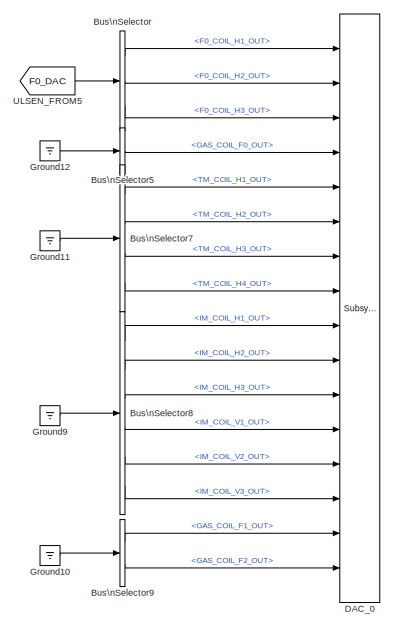
[diagram: root canvas - part 1/3, top right region]
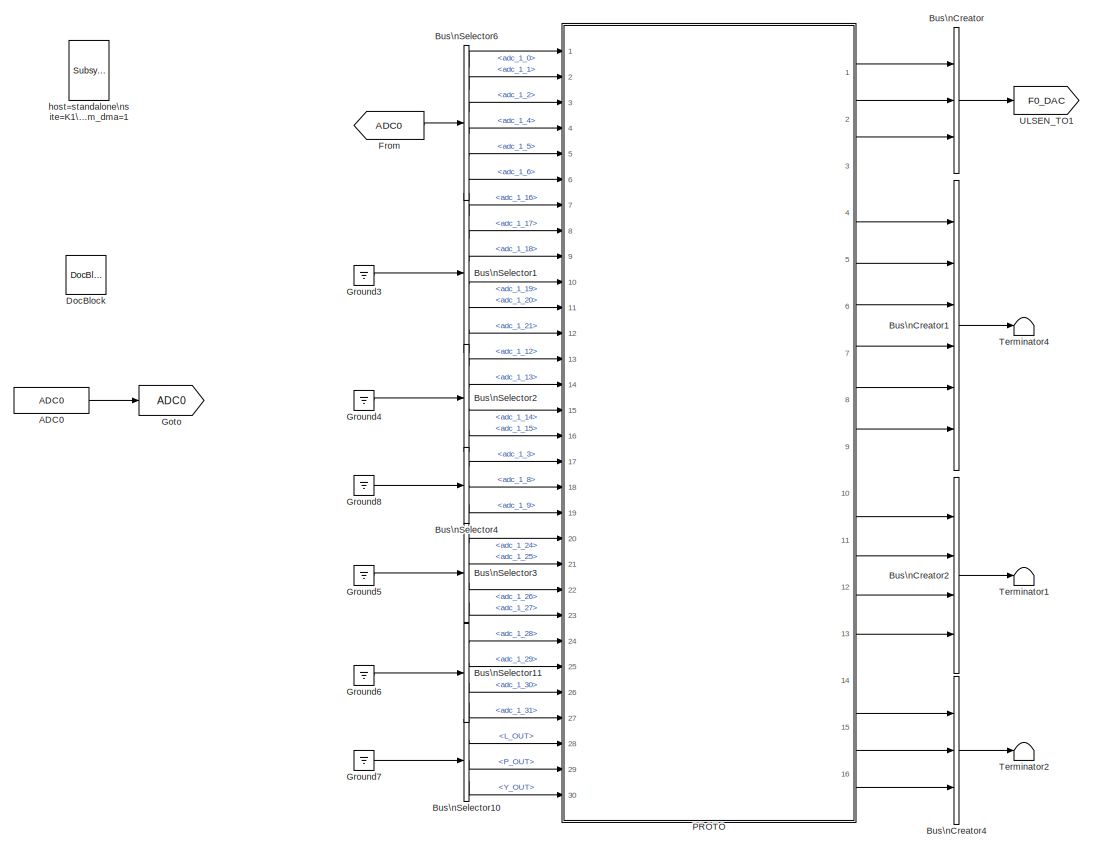
[diagram: root canvas - part 2/3, central region]
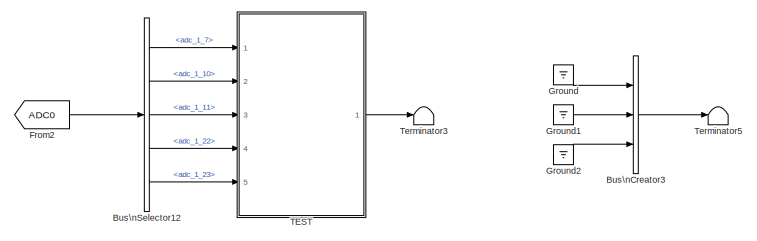
[diagram: root canvas - part 3/3, bottom center region]
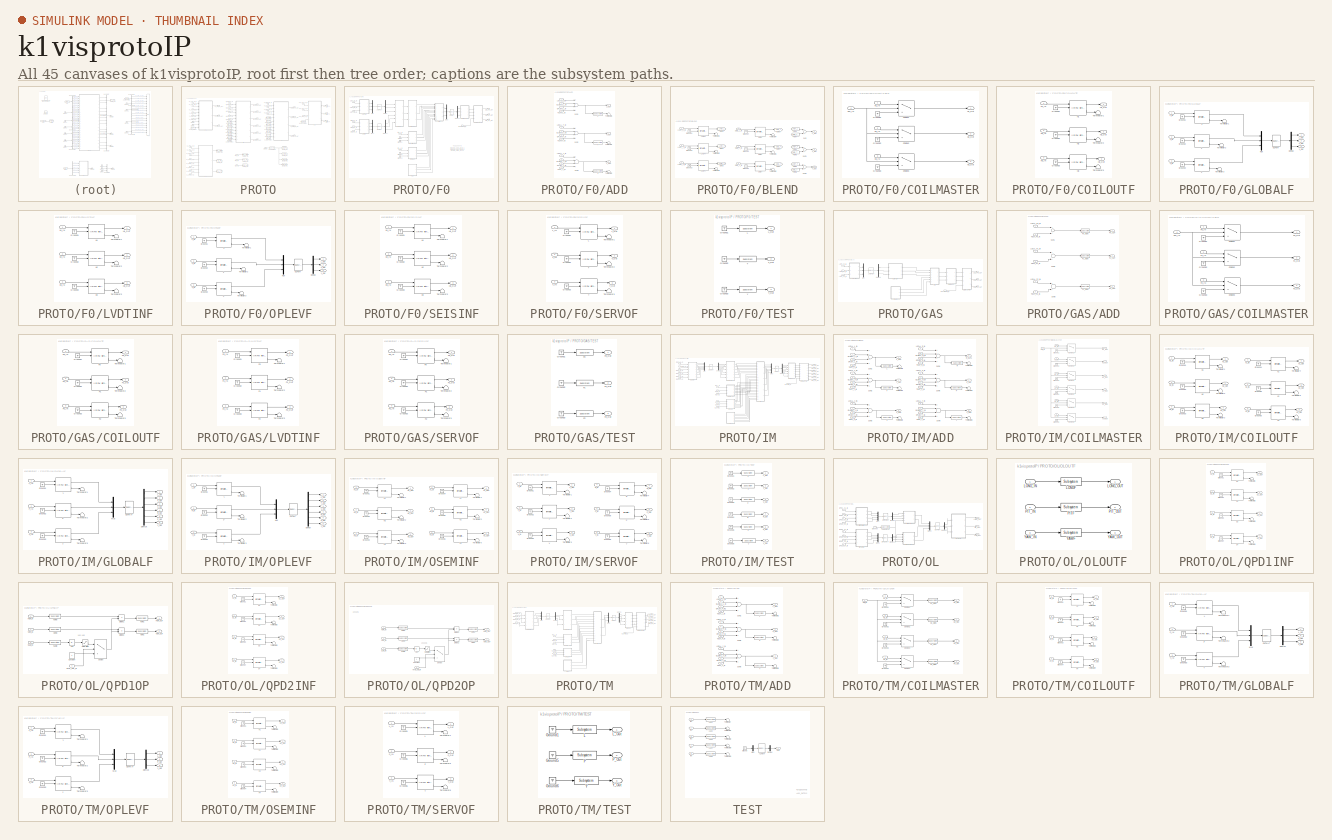
[diagram: thumbnail index - all 45 canvases of the model, root first then tree order]
MODEL k1visprotoIP
KIND model
BLOCK [Reference] ADC0  REF=cdsAdcx0/ADC0
  AttributesFormatString = %<Description>\\n%<Tag>
  Description = type-GSC_16AI64SSA\ncard_num=0
  Ports = [0, 1]
  SID = 4734
  SourceBlock = cdsAdcx0/ADC0
  SourceType = SubSystem
  Tag = cdsAdc
BLOCK [BusCreator] Bus\nCreator
  DisplayOption = bar
  Inputs = 'F0_COIL_H1_OUT','F0_COIL_H2_OUT','F0_COIL_H3_OUT'
  Ports = [3, 1]
  SID = 4322
BLOCK [BusCreator] Bus\nCreator1
  DisplayOption = bar
  Inputs = 'IM_COIL_H1_OUT','IM_COIL_H2_OUT','IM_COIL_H3_OUT','IM_COIL_V1_OUT','IM_COIL_V2_OUT','IM_COIL_V3_OUT'
  Ports = [6, 1]
  SID = 4311
BLOCK [BusCreator] Bus\nCreator2
  DisplayOption = bar
  Inputs = 'TM_COIL_H1_OUT','TM_COIL_H2_OUT','TM_COIL_H3_OUT','TM_COIL_H4_OUT'
  Ports = [4, 1]
  SID = 4313
BLOCK [BusCreator] Bus\nCreator3
  DisplayOption = bar
  Inputs = 'L_OUT','P_OUT','Y_OUT'
  Ports = [3, 1]
  SID = 4425
BLOCK [BusCreator] Bus\nCreator4
  DisplayOption = bar
  Inputs = 'GAS_COIL_F0_OUT','GAS_COIL_F1_OUT','GAS_COIL_F2_OUT'
  Ports = [3, 1]
  SID = 4315
BLOCK [BusSelector] Bus\nSelector
  OutputSignals = F0_COIL_H1_OUT,F0_COIL_H2_OUT,F0_COIL_H3_OUT
  Ports = [1, 3]
  SID = 4321
BLOCK [BusSelector] Bus\nSelector1
  AttributesFormatString = %<Description>
  Description = ADC Selector
  OutputSignals = adc_1_16,adc_1_17,adc_1_18,adc_1_19,adc_1_20,adc_1_21
  Ports = [1, 6]
  SID = 4302
BLOCK [BusSelector] Bus\nSelector10
  AttributesFormatString = %<Description>
  OutputSignals = L_OUT,P_OUT,Y_OUT
  Ports = [1, 3]
  SID = 4461
BLOCK [BusSelector] Bus\nSelector11
  AttributesFormatString = %<Description>
  Description = ADC Selector
  OutputSignals = adc_1_28,adc_1_29,adc_1_30,adc_1_31
  Ports = [1, 4]
  SID = 4603
BLOCK [BusSelector] Bus\nSelector12
  AttributesFormatString = %<Description>
  Description = ADC Selector
  OutputSignals = adc_1_7,adc_1_10,adc_1_11,adc_1_22,adc_1_23
  Ports = [1, 5]
  SID = 4436
BLOCK [BusSelector] Bus\nSelector2
  AttributesFormatString = %<Description>
  Description = ADC Selector
  OutputSignals = adc_1_12,adc_1_13,adc_1_14,adc_1_15
  Ports = [1, 4]
  SID = 4303
BLOCK [BusSelector] Bus\nSelector3
  AttributesFormatString = %<Description>
  Description = ADC Selector
  OutputSignals = adc_1_24,adc_1_25,adc_1_26,adc_1_27
  Ports = [1, 4]
  SID = 4305
BLOCK [BusSelector] Bus\nSelector4
  AttributesFormatString = %<Description>
  Description = ADC Selector
  OutputSignals = adc_1_3,adc_1_8,adc_1_9
  Ports = [1, 3]
  SID = 4308
BLOCK [BusSelector] Bus\nSelector5
  OutputSignals = GAS_COIL_F0_OUT
  Ports = [1, 1]
  SID = 4323
BLOCK [BusSelector] Bus\nSelector6
  AttributesFormatString = %<Description>
  Description = ADC Selector
  OutputSignals = adc_1_0,adc_1_1,adc_1_2,adc_1_4,adc_1_5,adc_1_6
  Ports = [1, 6]
  SID = 431
BLOCK [BusSelector] Bus\nSelector7
  OutputSignals = TM_COIL_H1_OUT,TM_COIL_H2_OUT,TM_COIL_H3_OUT,TM_COIL_H4_OUT
  Ports = [1, 4]
  SID = 4327
BLOCK [BusSelector] Bus\nSelector8
  OutputSignals = IM_COIL_H1_OUT,IM_COIL_H2_OUT,IM_COIL_H3_OUT,IM_COIL_V1_OUT,IM_COIL_V2_OUT,IM_COIL_V3_OUT
  Ports = [1, 6]
  SID = 4328
BLOCK [BusSelector] Bus\nSelector9
  OutputSignals = GAS_COIL_F1_OUT,GAS_COIL_F2_OUT
  Ports = [1, 2]
  SID = 4331
BLOCK [Reference] DAC_0  REF=dac/Subsystem  (lib defined in slx_40ef132df75b, slx_b7657ccccc5b, +4 more)
  AttributesFormatString = %<Description>
  Description = type=GSC_16AO16,\ncard_num=0
  Ports = [16]
  SID = 4759
  SourceBlock = dac/Subsystem
  SourceType = SubSystem
BLOCK [Reference] DocBlock  REF=simulink/Model-Wide\nUtilities/DocBlock
  DocumentType = Text
  Ports = []
  SID = 24
  SourceBlock = simulink/Model-Wide\nUtilities/DocBlock
  SourceType = DocBlock
  UserData = DataTag0
  UserDataPersistent = on
BLOCK [From] From
  GotoTag = ADC0
  SID = 4743
BLOCK [From] From2
  GotoTag = ADC0
  SID = 4757
BLOCK [Goto] Goto
  GotoTag = ADC0
  SID = 4735
BLOCK [Ground] Ground
  SID = 4462
BLOCK [Ground] Ground1
  SID = 4463
BLOCK [Ground] Ground10
  SID = 4745
BLOCK [Ground] Ground11
  SID = 4746
BLOCK [Ground] Ground12
  SID = 4747
BLOCK [Ground] Ground2
  SID = 4464
BLOCK [Ground] Ground3
  SID = 4736
BLOCK [Ground] Ground4
  SID = 4737
BLOCK [Ground] Ground5
  SID = 4739
BLOCK [Ground] Ground6
  SID = 4740
BLOCK [Ground] Ground7
  SID = 4741
BLOCK [Ground] Ground8
  SID = 4742
BLOCK [Ground] Ground9
  SID = 4744
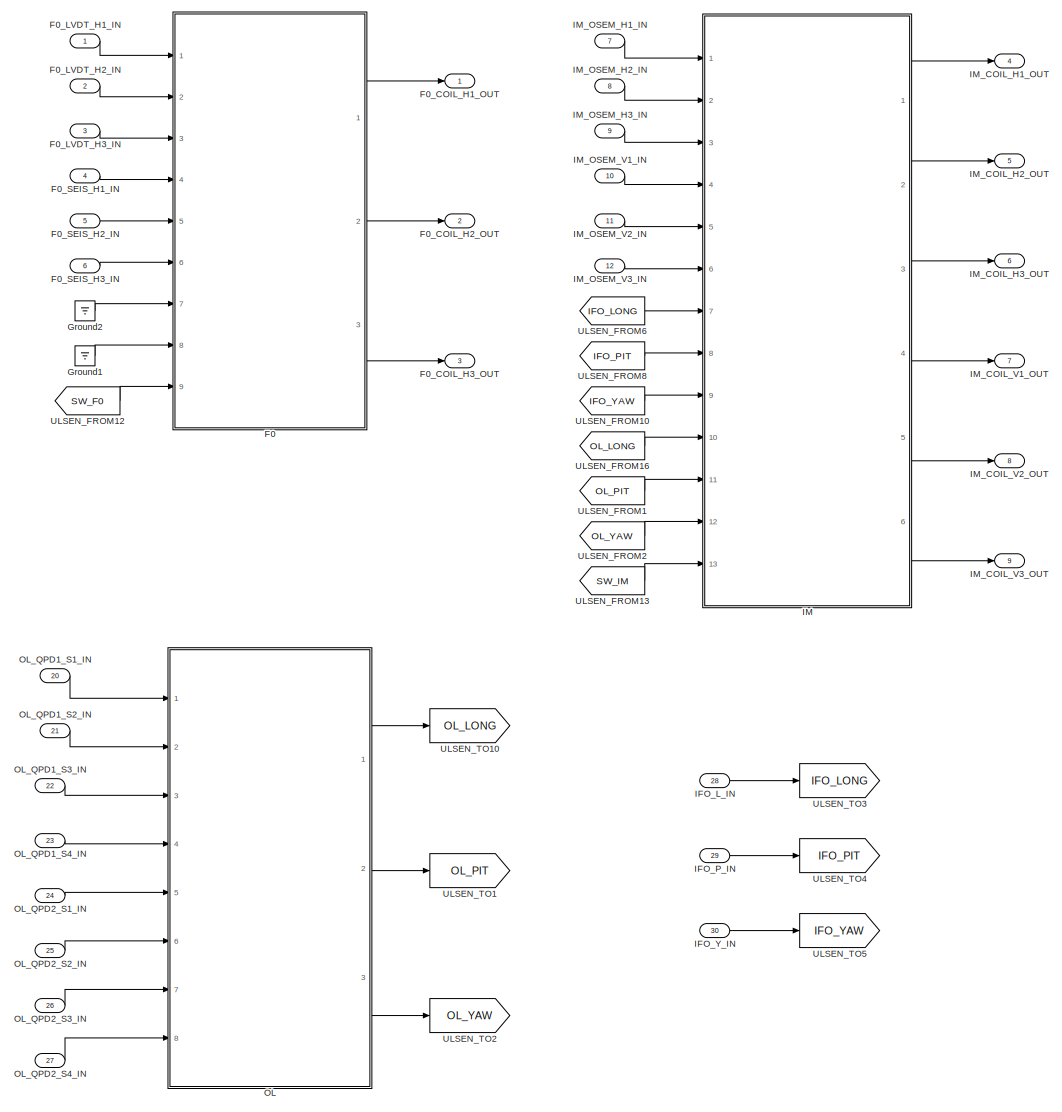
[diagram: PROTO - part 1/2, left side, full height]
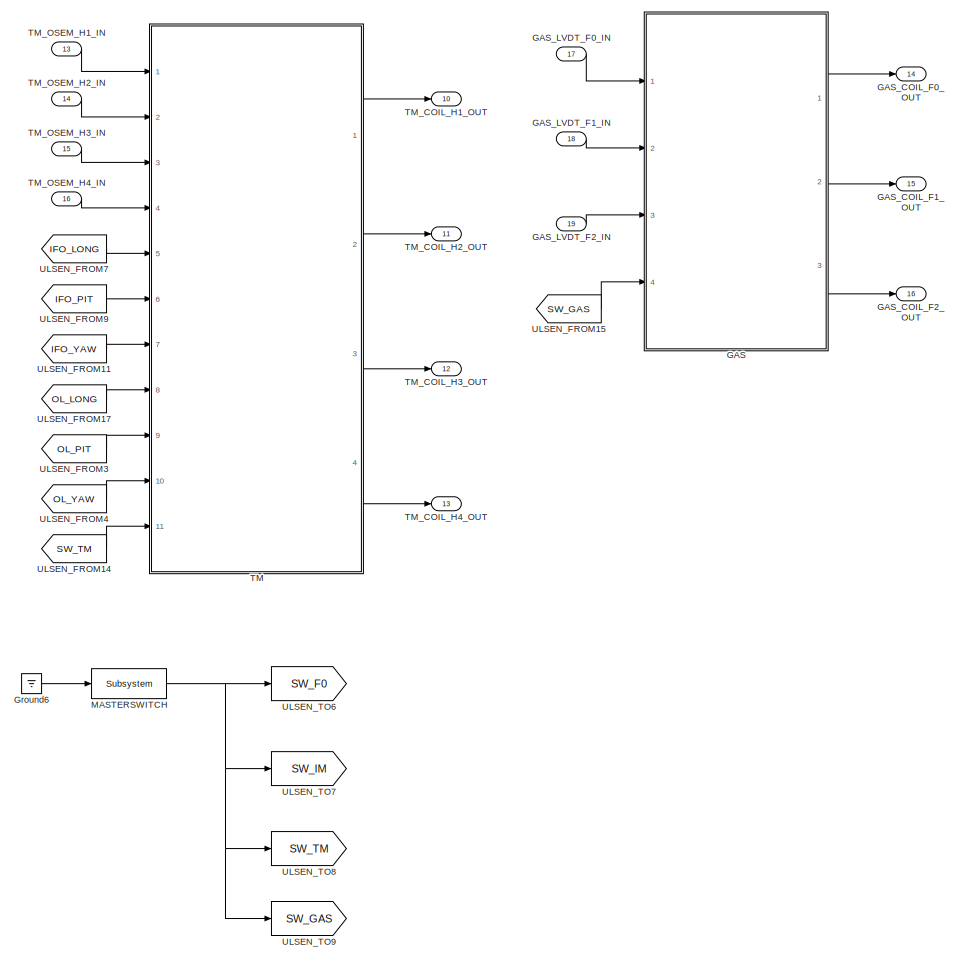
[diagram: PROTO - part 2/2, right side, full height]
BLOCK [SubSystem] PROTO
  Ports = [30, 16]
  RequestExecContextInheritance = off
  SID = 2594
BLOCK [SubSystem] PROTO/F0
  Ports = [9, 3]
  RequestExecContextInheritance = off
  SID = 2611
BLOCK [SubSystem] PROTO/F0/ADD
  Ports = [12, 3]
  RequestExecContextInheritance = off
  SID = 3047
BLOCK [Inport] PROTO/F0/ADD/GLOBAL_L_IN
  IconDisplay = Port number
  Port = 4
  SID = 3070
BLOCK [Inport] PROTO/F0/ADD/GLOBAL_T_IN
  IconDisplay = Port number
  Port = 5
  SID = 3071
BLOCK [Inport] PROTO/F0/ADD/GLOBAL_Y_IN
  IconDisplay = Port number
  Port = 6
  SID = 3072
BLOCK [Reference] PROTO/F0/ADD/L  REF=cdsFilt/Subsystem
  AttributesFormatString = %<Tag>
  Description = Purpose:                                                                                                                                                                                                                                  \nStandard CDS IIR filter module.                                                                                                                                     ...<+1302ch>  <repeated x45 — deduplicated; at blocks: L, T, Y, F0, F1, F2, P, R, V, LONGF, PITF, YAWF, HOR0, HOR1, SUM0, VER0, +6 more>
  Ports = [1, 1]
  SID = 4681
  SourceBlock = cdsFilt/Subsystem
  SourceType = SubSystem
  Tag = cdsFilt
BLOCK [Inport] PROTO/F0/ADD/LOCAL_L_IN
  IconDisplay = Port number
  SID = 3048
BLOCK [Inport] PROTO/F0/ADD/LOCAL_T_IN
  IconDisplay = Port number
  Port = 2
  SID = 3049
BLOCK [Inport] PROTO/F0/ADD/LOCAL_Y_IN
  IconDisplay = Port number
  Port = 3
  SID = 3050
BLOCK [Outport] PROTO/F0/ADD/L_OUT
  IconDisplay = Port number
  SID = 3060
BLOCK [Inport] PROTO/F0/ADD/OPLEV_L_IN
  IconDisplay = Port number
  Port = 7
  SID = 3196
BLOCK [Inport] PROTO/F0/ADD/OPLEV_T_IN
  IconDisplay = Port number
  Port = 8
  SID = 3197
BLOCK [Inport] PROTO/F0/ADD/OPLEV_Y_IN
  IconDisplay = Port number
  Port = 9
  SID = 3198
BLOCK [Sum] PROTO/F0/ADD/Sum1
  InputSameDT = off
  Inputs = ++++
  OutDataTypeStr = Inherit: Inherit via internal rule
  Ports = [4, 1]
  SID = 3064
  SaturateOnIntegerOverflow = off
BLOCK [Sum] PROTO/F0/ADD/Sum2
  InputSameDT = off
  Inputs = ++++
  OutDataTypeStr = Inherit: Inherit via internal rule
  Ports = [4, 1]
  SID = 3065
  SaturateOnIntegerOverflow = off
BLOCK [Sum] PROTO/F0/ADD/Sum3
  InputSameDT = off
  Inputs = ++++
  OutDataTypeStr = Inherit: Inherit via internal rule
  Ports = [4, 1]
  SID = 3066
  SaturateOnIntegerOverflow = off
BLOCK [Reference] PROTO/F0/ADD/T  REF=cdsFilt/Subsystem
  AttributesFormatString = %<Tag>
  Ports = [1, 1]
  SID = 4683
  SourceBlock = cdsFilt/Subsystem
  SourceType = SubSystem
  Tag = cdsFilt
BLOCK [Inport] PROTO/F0/ADD/TEST_L_IN
  IconDisplay = Port number
  Port = 10
  SID = 4678
BLOCK [Inport] PROTO/F0/ADD/TEST_T_IN
  IconDisplay = Port number
  Port = 11
  SID = 4679
BLOCK [Inport] PROTO/F0/ADD/TEST_Y_IN
  IconDisplay = Port number
  Port = 12
  SID = 4680
BLOCK [Outport] PROTO/F0/ADD/T_OUT
  IconDisplay = Port number
  Port = 2
  SID = 3061
BLOCK [Terminator] PROTO/F0/ADD/Terminator1
  SID = 4684
BLOCK [Terminator] PROTO/F0/ADD/Terminator2
  SID = 4686
BLOCK [Terminator] PROTO/F0/ADD/Terminator5
  SID = 4682
BLOCK [Reference] PROTO/F0/ADD/Y  REF=cdsFilt/Subsystem
  AttributesFormatString = %<Tag>
  Ports = [1, 1]
  SID = 4685
  SourceBlock = cdsFilt/Subsystem
  SourceType = SubSystem
  Tag = cdsFilt
BLOCK [Outport] PROTO/F0/ADD/Y_OUT
  IconDisplay = Port number
  Port = 3
  SID = 3062
BLOCK [SubSystem] PROTO/F0/BLEND
  Ports = [6, 3]
  RequestExecContextInheritance = off
  SID = 2930
BLOCK [From] PROTO/F0/BLEND/From1
  CloseFcn = tagdialog Close
  GotoTag = LVDT_T
  SID = 2974
BLOCK [From] PROTO/F0/BLEND/From2
  CloseFcn = tagdialog Close
  GotoTag = LVDT_Y
  SID = 2975
BLOCK [From] PROTO/F0/BLEND/From3
  CloseFcn = tagdialog Close
  GotoTag = LVDT_L
  SID = 2973
BLOCK [From] PROTO/F0/BLEND/From4
  CloseFcn = tagdialog Close
  GotoTag = SEIS_L
  SID = 2976
BLOCK [From] PROTO/F0/BLEND/From5
  CloseFcn = tagdialog Close
  GotoTag = SEIS_T
  SID = 2977
BLOCK [From] PROTO/F0/BLEND/From6
  CloseFcn = tagdialog Close
  GotoTag = SEIS_Y
  SID = 2978
BLOCK [Goto] PROTO/F0/BLEND/Goto1
  GotoTag = LVDT_T
  SID = 2956
BLOCK [Goto] PROTO/F0/BLEND/Goto2
  GotoTag = LVDT_L
  SID = 2955
BLOCK [Goto] PROTO/F0/BLEND/Goto3
  GotoTag = LVDT_Y
  SID = 2957
BLOCK [Goto] PROTO/F0/BLEND/Goto4
  GotoTag = SEIS_T
  SID = 2961
BLOCK [Goto] PROTO/F0/BLEND/Goto5
  GotoTag = SEIS_L
  SID = 2962
BLOCK [Goto] PROTO/F0/BLEND/Goto6
  GotoTag = SEIS_Y
  SID = 2963
BLOCK [Ground] PROTO/F0/BLEND/Ground1
  SID = 2934
BLOCK [Ground] PROTO/F0/BLEND/Ground2
  SID = 2947
BLOCK [Ground] PROTO/F0/BLEND/Ground3
  SID = 2952
BLOCK [Ground] PROTO/F0/BLEND/Ground4
  SID = 2964
BLOCK [Ground] PROTO/F0/BLEND/Ground5
  SID = 2965
BLOCK [Ground] PROTO/F0/BLEND/Ground6
  SID = 2966
BLOCK [Reference] PROTO/F0/BLEND/LVDTL  REF=cdsFiltCtrl/IIR FM with control
  AttributesFormatString = %<Tag>
  Description = cdsFiltCntrl is the standard IIR filter module (exactly the same as cdsFilt) but with added control data output 'Ctrl'. Filter module digital signal output appears on the first output, which is called 'Val'. 'Ctrl' output has a bit pattern encoding the state of filter's on/off switches (FM1 through FM10). The bit values are:\n                                                                        ...<+4621ch>  <repeated x82 — deduplicated; at blocks: LVDTL, LVDTT, LVDTY, SEISL, SEIST, SEISY, H1, H2, H3, L, T, Y, F0, F1, F2, V1, +10 more>
  Ports = [3, 2]
  SID = 2937
  SourceBlock = cdsFiltCtrl/IIR FM with control
  SourceType = SubSystem
  Tag = cdsFiltCtrl
BLOCK [Reference] PROTO/F0/BLEND/LVDTT  REF=cdsFiltCtrl/IIR FM with control
  AttributesFormatString = %<Tag>
  Ports = [3, 2]
  SID = 2948
  SourceBlock = cdsFiltCtrl/IIR FM with control
  SourceType = SubSystem
  Tag = cdsFiltCtrl
BLOCK [Reference] PROTO/F0/BLEND/LVDTY  REF=cdsFiltCtrl/IIR FM with control
  AttributesFormatString = %<Tag>
  Ports = [3, 2]
  SID = 2953
  SourceBlock = cdsFiltCtrl/IIR FM with control
  SourceType = SubSystem
  Tag = cdsFiltCtrl
BLOCK [Inport] PROTO/F0/BLEND/LVDT_L_IN
  IconDisplay = Port number
  SID = 2931
BLOCK [Inport] PROTO/F0/BLEND/LVDT_T_IN
  IconDisplay = Port number
  Port = 2
  SID = 2946
BLOCK [Inport] PROTO/F0/BLEND/LVDT_Y_IN
  IconDisplay = Port number
  Port = 3
  SID = 2951
BLOCK [Outport] PROTO/F0/BLEND/L_Out
  IconDisplay = Port number
  SID = 2982
BLOCK [Reference] PROTO/F0/BLEND/SEISL  REF=cdsFiltCtrl/IIR FM with control
  AttributesFormatString = %<Tag>
  Ports = [3, 2]
  SID = 2967
  SourceBlock = cdsFiltCtrl/IIR FM with control
  SourceType = SubSystem
  Tag = cdsFiltCtrl
BLOCK [Reference] PROTO/F0/BLEND/SEIST  REF=cdsFiltCtrl/IIR FM with control
  AttributesFormatString = %<Tag>
  Ports = [3, 2]
  SID = 2968
  SourceBlock = cdsFiltCtrl/IIR FM with control
  SourceType = SubSystem
  Tag = cdsFiltCtrl
BLOCK [Reference] PROTO/F0/BLEND/SEISY  REF=cdsFiltCtrl/IIR FM with control
  AttributesFormatString = %<Tag>
  Ports = [3, 2]
  SID = 2969
  SourceBlock = cdsFiltCtrl/IIR FM with control
  SourceType = SubSystem
  Tag = cdsFiltCtrl
BLOCK [Inport] PROTO/F0/BLEND/SEIS_L_IN
  IconDisplay = Port number
  Port = 4
  SID = 2958
BLOCK [Inport] PROTO/F0/BLEND/SEIS_T_IN
  IconDisplay = Port number
  Port = 5
  SID = 2959
BLOCK [Inport] PROTO/F0/BLEND/SEIS_Y_IN
  IconDisplay = Port number
  Port = 6
  SID = 2960
BLOCK [Sum] PROTO/F0/BLEND/Sum
  InputSameDT = off
  OutDataTypeStr = Inherit: Inherit via internal rule
  Ports = [2, 1]
  SID = 2979
  SaturateOnIntegerOverflow = off
BLOCK [Sum] PROTO/F0/BLEND/Sum1
  InputSameDT = off
  OutDataTypeStr = Inherit: Inherit via internal rule
  Ports = [2, 1]
  SID = 2980
  SaturateOnIntegerOverflow = off
BLOCK [Sum] PROTO/F0/BLEND/Sum2
  InputSameDT = off
  OutDataTypeStr = Inherit: Inherit via internal rule
  Ports = [2, 1]
  SID = 2981
  SaturateOnIntegerOverflow = off
BLOCK [Outport] PROTO/F0/BLEND/T_Out
  IconDisplay = Port number
  Port = 2
  SID = 2983
BLOCK [Terminator] PROTO/F0/BLEND/Terminator1
  SID = 2940
BLOCK [Terminator] PROTO/F0/BLEND/Terminator2
  SID = 2949
BLOCK [Terminator] PROTO/F0/BLEND/Terminator3
  SID = 2954
BLOCK [Terminator] PROTO/F0/BLEND/Terminator4
  SID = 2970
BLOCK [Terminator] PROTO/F0/BLEND/Terminator5
  SID = 2971
BLOCK [Terminator] PROTO/F0/BLEND/Terminator6
  SID = 2972
BLOCK [Outport] PROTO/F0/BLEND/Y_Out
  IconDisplay = Port number
  Port = 3
  SID = 2984
BLOCK [SubSystem] PROTO/F0/COILMASTER
  Ports = [4, 3]
  RequestExecContextInheritance = off
  SID = 3123
BLOCK [Switch] PROTO/F0/COILMASTER/Choice1
  Criteria = u2 > Threshold
  InputSameDT = off
  SID = 3141
  SaturateOnIntegerOverflow = off
BLOCK [Switch] PROTO/F0/COILMASTER/Choice2
  Criteria = u2 > Threshold
  InputSameDT = off
  SID = 3142
  SaturateOnIntegerOverflow = off
BLOCK [Switch] PROTO/F0/COILMASTER/Choice3
  Criteria = u2 > Threshold
  InputSameDT = off
  SID = 3143
  SaturateOnIntegerOverflow = off
BLOCK [Ground] PROTO/F0/COILMASTER/Ground1
  SID = 3127
BLOCK [Ground] PROTO/F0/COILMASTER/Ground2
  SID = 3128
BLOCK [Ground] PROTO/F0/COILMASTER/Ground3
  SID = 3129
BLOCK [Inport] PROTO/F0/COILMASTER/H1_IN
  IconDisplay = Port number
  SID = 3124
BLOCK [Outport] PROTO/F0/COILMASTER/H1_Out
  IconDisplay = Port number
  SID = 3136
BLOCK [Inport] PROTO/F0/COILMASTER/H2_IN
  IconDisplay = Port number
  Port = 2
  SID = 3125
BLOCK [Outport] PROTO/F0/COILMASTER/H2_Out
  IconDisplay = Port number
  Port = 2
  SID = 3137
BLOCK [Inport] PROTO/F0/COILMASTER/H3_IN
  IconDisplay = Port number
  Port = 3
  SID = 3126
BLOCK [Outport] PROTO/F0/COILMASTER/H3_Out
  IconDisplay = Port number
  Port = 3
  SID = 3138
BLOCK [Inport] PROTO/F0/COILMASTER/SW_IN
  IconDisplay = Port number
  Port = 4
  SID = 3144
BLOCK [Reference] PROTO/F0/COILMAT  REF=cdsMuxMatrix/Subsystem
  AttributesFormatString = %<Tag>
  Description = ADL=SUS_INMATRIX.adl                                                                \nSCRIPT=generate_KisselButton.py 4 5 #CHANNEL# > #TARGET_DIR#/#FULL_PART_NAME#_KB.adl
  Ports = [1, 1]
  SID = 2715
  SourceBlock = cdsMuxMatrix/Subsystem
  SourceType = SubSystem
  Tag = cdsMuxMatrix
BLOCK [SubSystem] PROTO/F0/COILOUTF
  Ports = [3, 3]
  RequestExecContextInheritance = off
  SID = 3107
BLOCK [Ground] PROTO/F0/COILOUTF/Ground1
  SID = 3111
BLOCK [Ground] PROTO/F0/COILOUTF/Ground2
  SID = 3112
BLOCK [Ground] PROTO/F0/COILOUTF/Ground3
  SID = 3113
BLOCK [Reference] PROTO/F0/COILOUTF/H1  REF=cdsFiltCtrl/IIR FM with control
  AttributesFormatString = %<Tag>
  Ports = [3, 2]
  SID = 3114
  SourceBlock = cdsFiltCtrl/IIR FM with control
  SourceType = SubSystem
  Tag = cdsFiltCtrl
BLOCK [Inport] PROTO/F0/COILOUTF/H1_IN
  IconDisplay = Port number
  SID = 3108
BLOCK [Outport] PROTO/F0/COILOUTF/H1_Out
  IconDisplay = Port number
  SID = 3120
BLOCK [Reference] PROTO/F0/COILOUTF/H2  REF=cdsFiltCtrl/IIR FM with control
  AttributesFormatString = %<Tag>
  Ports = [3, 2]
  SID = 3115
  SourceBlock = cdsFiltCtrl/IIR FM with control
  SourceType = SubSystem
  Tag = cdsFiltCtrl
BLOCK [Inport] PROTO/F0/COILOUTF/H2_IN
  IconDisplay = Port number
  Port = 2
  SID = 3109
BLOCK [Outport] PROTO/F0/COILOUTF/H2_Out
  IconDisplay = Port number
  Port = 2
  SID = 3121
BLOCK [Reference] PROTO/F0/COILOUTF/H3  REF=cdsFiltCtrl/IIR FM with control
  AttributesFormatString = %<Tag>
  Ports = [3, 2]
  SID = 3119
  SourceBlock = cdsFiltCtrl/IIR FM with control
  SourceType = SubSystem
  Tag = cdsFiltCtrl
BLOCK [Inport] PROTO/F0/COILOUTF/H3_IN
  IconDisplay = Port number
  Port = 3
  SID = 3110
BLOCK [Outport] PROTO/F0/COILOUTF/H3_Out
  IconDisplay = Port number
  Port = 3
  SID = 3122
BLOCK [Terminator] PROTO/F0/COILOUTF/Terminator1
  SID = 3116
BLOCK [Terminator] PROTO/F0/COILOUTF/Terminator2
  SID = 3117
BLOCK [Terminator] PROTO/F0/COILOUTF/Terminator3
  SID = 3118
BLOCK [Outport] PROTO/F0/COIL_H1_OUT
  IconDisplay = Port number
  SID = 3193
BLOCK [Outport] PROTO/F0/COIL_H2_OUT
  IconDisplay = Port number
  Port = 2
  SID = 3194
BLOCK [Outport] PROTO/F0/COIL_H3_OUT
  IconDisplay = Port number
  Port = 3
  SID = 3195
BLOCK [Demux] PROTO/F0/Demux
  DisplayOption = bar
  Outputs = 3
  Ports = [1, 3]
  SID = 2642
BLOCK [Demux] PROTO/F0/Demux6
  DisplayOption = bar
  Outputs = 3
  Ports = [1, 3]
  SID = 2648
BLOCK [Demux] PROTO/F0/Demux7
  DisplayOption = bar
  Outputs = 3
  Ports = [1, 3]
  SID = 2913
BLOCK [SubSystem] PROTO/F0/GLOBALF
  Ports = [3, 3]
  RequestExecContextInheritance = off
  SID = 3089
BLOCK [Demux] PROTO/F0/GLOBALF/Demux
  DisplayOption = bar
  Outputs = 3
  Ports = [1, 3]
  SID = 4653
BLOCK [Ground] PROTO/F0/GLOBALF/Ground1
  SID = 3093
BLOCK [Ground] PROTO/F0/GLOBALF/Ground2
  SID = 3094
BLOCK [Ground] PROTO/F0/GLOBALF/Ground3
  SID = 3095
BLOCK [Reference] PROTO/F0/GLOBALF/L  REF=cdsFiltCtrl/IIR FM with control
  AttributesFormatString = %<Tag>
  Ports = [3, 2]
  SID = 3096
  SourceBlock = cdsFiltCtrl/IIR FM with control
  SourceType = SubSystem
  Tag = cdsFiltCtrl
BLOCK [Inport] PROTO/F0/GLOBALF/L_IN
  IconDisplay = Port number
  SID = 3090
BLOCK [Outport] PROTO/F0/GLOBALF/L_Out
  IconDisplay = Port number
  SID = 3102
BLOCK [Mux] PROTO/F0/GLOBALF/Mux
  DisplayOption = bar
  Inputs = 3
  Ports = [3, 1]
  SID = 4654
BLOCK [Reference] PROTO/F0/GLOBALF/OUTMAT  REF=cdsMuxMatrix/Subsystem
  AttributesFormatString = %<Tag>
  Description = ADL=SUS_INMATRIX.adl                                                                \nSCRIPT=generate_KisselButton.py 4 5 #CHANNEL# > #TARGET_DIR#/#FULL_PART_NAME#_KB.adl
  Ports = [1, 1]
  SID = 4655
  SourceBlock = cdsMuxMatrix/Subsystem
  SourceType = SubSystem
  Tag = cdsMuxMatrix
BLOCK [Reference] PROTO/F0/GLOBALF/T  REF=cdsFiltCtrl/IIR FM with control
  AttributesFormatString = %<Tag>
  Ports = [3, 2]
  SID = 3097
  SourceBlock = cdsFiltCtrl/IIR FM with control
  SourceType = SubSystem
  Tag = cdsFiltCtrl
BLOCK [Inport] PROTO/F0/GLOBALF/T_IN
  IconDisplay = Port number
  Port = 2
  SID = 3091
BLOCK [Outport] PROTO/F0/GLOBALF/T_Out
  IconDisplay = Port number
  Port = 2
  SID = 3103
BLOCK [Terminator] PROTO/F0/GLOBALF/Terminator1
  SID = 3098
BLOCK [Terminator] PROTO/F0/GLOBALF/Terminator2
  SID = 3099
BLOCK [Terminator] PROTO/F0/GLOBALF/Terminator3
  SID = 3100
BLOCK [Reference] PROTO/F0/GLOBALF/Y  REF=cdsFiltCtrl/IIR FM with control
  AttributesFormatString = %<Tag>
  Ports = [3, 2]
  SID = 3101
  SourceBlock = cdsFiltCtrl/IIR FM with control
  SourceType = SubSystem
  Tag = cdsFiltCtrl
BLOCK [Inport] PROTO/F0/GLOBALF/Y_IN
  IconDisplay = Port number
  Port = 3
  SID = 3092
BLOCK [Outport] PROTO/F0/GLOBALF/Y_Out
  IconDisplay = Port number
  Port = 3
  SID = 3104
BLOCK [Ground] PROTO/F0/Ground
  SID = 3105
BLOCK [Ground] PROTO/F0/Ground1
  SID = 3106
BLOCK [Ground] PROTO/F0/Ground2
  SID = 4676
BLOCK [Ground] PROTO/F0/Ground3
  SID = 4677
BLOCK [Inport] PROTO/F0/IFO_L_IN
  IconDisplay = Port number
  Port = 7
  SID = 3030
BLOCK [Inport] PROTO/F0/IOL_L_IN
  IconDisplay = Port number
  Port = 8
  SID = 4675
BLOCK [SubSystem] PROTO/F0/LVDTINF
  Ports = [3, 3]
  RequestExecContextInheritance = off
  SID = 2856
BLOCK [Ground] PROTO/F0/LVDTINF/Ground1
  SID = 2863
BLOCK [Ground] PROTO/F0/LVDTINF/Ground2
  SID = 2880
BLOCK [Ground] PROTO/F0/LVDTINF/Ground3
  SID = 2885
BLOCK [Reference] PROTO/F0/LVDTINF/H1  REF=cdsFiltCtrl/IIR FM with control
  AttributesFormatString = %<Tag>
  Ports = [3, 2]
  SID = 2859
  SourceBlock = cdsFiltCtrl/IIR FM with control
  SourceType = SubSystem
  Tag = cdsFiltCtrl
BLOCK [Inport] PROTO/F0/LVDTINF/H1_IN
  IconDisplay = Port number
  SID = 2857
BLOCK [Outport] PROTO/F0/LVDTINF/H1_OUT
  IconDisplay = Port number
  SID = 2858
BLOCK [Reference] PROTO/F0/LVDTINF/H2  REF=cdsFiltCtrl/IIR FM with control
  AttributesFormatString = %<Tag>
  Ports = [3, 2]
  SID = 2881
  SourceBlock = cdsFiltCtrl/IIR FM with control
  SourceType = SubSystem
  Tag = cdsFiltCtrl
BLOCK [Inport] PROTO/F0/LVDTINF/H2_IN
  IconDisplay = Port number
  Port = 2
  SID = 2879
BLOCK [Outport] PROTO/F0/LVDTINF/H2_OUT
  IconDisplay = Port number
  Port = 2
  SID = 2883
BLOCK [Reference] PROTO/F0/LVDTINF/H3  REF=cdsFiltCtrl/IIR FM with control
  AttributesFormatString = %<Tag>
  Ports = [3, 2]
  SID = 2886
  SourceBlock = cdsFiltCtrl/IIR FM with control
  SourceType = SubSystem
  Tag = cdsFiltCtrl
BLOCK [Inport] PROTO/F0/LVDTINF/H3_IN
  IconDisplay = Port number
  Port = 3
  SID = 2884
BLOCK [Outport] PROTO/F0/LVDTINF/H3_OUT
  IconDisplay = Port number
  Port = 3
  SID = 2888
BLOCK [Terminator] PROTO/F0/LVDTINF/Terminator1
  SID = 2878
BLOCK [Terminator] PROTO/F0/LVDTINF/Terminator2
  SID = 2882
BLOCK [Terminator] PROTO/F0/LVDTINF/Terminator3
  SID = 2887
BLOCK [Reference] PROTO/F0/LVDTMAT  REF=cdsMuxMatrix/Subsystem
  AttributesFormatString = %<Tag>
  Description = ADL=SUS_INMATRIX.adl                                                                \nSCRIPT=generate_KisselButton.py 4 5 #CHANNEL# > #TARGET_DIR#/#FULL_PART_NAME#_KB.adl
  Ports = [1, 1]
  SID = 2679
  SourceBlock = cdsMuxMatrix/Subsystem
  SourceType = SubSystem
  Tag = cdsMuxMatrix
BLOCK [Inport] PROTO/F0/LVDT_H1_IN
  IconDisplay = Port number
  SID = 2612
BLOCK [Inport] PROTO/F0/LVDT_H2_IN
  IconDisplay = Port number
  Port = 2
  SID = 2613
BLOCK [Inport] PROTO/F0/LVDT_H3_IN
  IconDisplay = Port number
  Port = 3
  SID = 2614
BLOCK [Inport] PROTO/F0/MASTERSW_IN
  IconDisplay = Port number
  Port = 9
  SID = 3139
BLOCK [Mux] PROTO/F0/Mux
  DisplayOption = bar
  Inputs = 3
  Ports = [3, 1]
  SID = 2707
BLOCK [Mux] PROTO/F0/Mux6
  DisplayOption = bar
  Inputs = 3
  Ports = [3, 1]
  SID = 2713
BLOCK [Mux] PROTO/F0/Mux7
  DisplayOption = bar
  Inputs = 3
  Ports = [3, 1]
  SID = 2912
BLOCK [SubSystem] PROTO/F0/OPLEVF
  Ports = [3, 3]
  RequestExecContextInheritance = off
  SID = 4656
BLOCK [Demux] PROTO/F0/OPLEVF/Demux
  DisplayOption = bar
  Outputs = 3
  Ports = [1, 3]
  SID = 4660
BLOCK [Ground] PROTO/F0/OPLEVF/Ground1
  SID = 4661
BLOCK [Ground] PROTO/F0/OPLEVF/Ground2
  SID = 4662
BLOCK [Ground] PROTO/F0/OPLEVF/Ground3
  SID = 4663
BLOCK [Reference] PROTO/F0/OPLEVF/L  REF=cdsFiltCtrl/IIR FM with control
  AttributesFormatString = %<Tag>
  Ports = [3, 2]
  SID = 4664
  SourceBlock = cdsFiltCtrl/IIR FM with control
  SourceType = SubSystem
  Tag = cdsFiltCtrl
BLOCK [Inport] PROTO/F0/OPLEVF/L_IN
  IconDisplay = Port number
  SID = 4657
BLOCK [Outport] PROTO/F0/OPLEVF/L_Out
  IconDisplay = Port number
  SID = 4672
BLOCK [Mux] PROTO/F0/OPLEVF/Mux
  DisplayOption = bar
  Inputs = 3
  Ports = [3, 1]
  SID = 4665
BLOCK [Reference] PROTO/F0/OPLEVF/OUTMAT  REF=cdsMuxMatrix/Subsystem
  AttributesFormatString = %<Tag>
  Description = ADL=SUS_INMATRIX.adl                                                                \nSCRIPT=generate_KisselButton.py 4 5 #CHANNEL# > #TARGET_DIR#/#FULL_PART_NAME#_KB.adl
  Ports = [1, 1]
  SID = 4666
  SourceBlock = cdsMuxMatrix/Subsystem
  SourceType = SubSystem
  Tag = cdsMuxMatrix
BLOCK [Reference] PROTO/F0/OPLEVF/T  REF=cdsFiltCtrl/IIR FM with control
  AttributesFormatString = %<Tag>
  Ports = [3, 2]
  SID = 4667
  SourceBlock = cdsFiltCtrl/IIR FM with control
  SourceType = SubSystem
  Tag = cdsFiltCtrl
BLOCK [Inport] PROTO/F0/OPLEVF/T_IN
  IconDisplay = Port number
  Port = 2
  SID = 4658
BLOCK [Outport] PROTO/F0/OPLEVF/T_Out
  IconDisplay = Port number
  Port = 2
  SID = 4673
BLOCK [Terminator] PROTO/F0/OPLEVF/Terminator1
  SID = 4668
BLOCK [Terminator] PROTO/F0/OPLEVF/Terminator2
  SID = 4669
BLOCK [Terminator] PROTO/F0/OPLEVF/Terminator3
  SID = 4670
BLOCK [Reference] PROTO/F0/OPLEVF/Y  REF=cdsFiltCtrl/IIR FM with control
  AttributesFormatString = %<Tag>
  Ports = [3, 2]
  SID = 4671
  SourceBlock = cdsFiltCtrl/IIR FM with control
  SourceType = SubSystem
  Tag = cdsFiltCtrl
BLOCK [Inport] PROTO/F0/OPLEVF/Y_IN
  IconDisplay = Port number
  Port = 3
  SID = 4659
BLOCK [Outport] PROTO/F0/OPLEVF/Y_Out
  IconDisplay = Port number
  Port = 3
  SID = 4674
BLOCK [SubSystem] PROTO/F0/SEISINF
  Ports = [3, 3]
  RequestExecContextInheritance = off
  SID = 2914
BLOCK [Ground] PROTO/F0/SEISINF/Ground1
  SID = 2918
BLOCK [Ground] PROTO/F0/SEISINF/Ground2
  SID = 2919
BLOCK [Ground] PROTO/F0/SEISINF/Ground3
  SID = 2920
BLOCK [Reference] PROTO/F0/SEISINF/H1  REF=cdsFiltCtrl/IIR FM with control
  AttributesFormatString = %<Tag>
  Ports = [3, 2]
  SID = 2921
  SourceBlock = cdsFiltCtrl/IIR FM with control
  SourceType = SubSystem
  Tag = cdsFiltCtrl
BLOCK [Inport] PROTO/F0/SEISINF/H1_IN
  IconDisplay = Port number
  SID = 2915
BLOCK [Outport] PROTO/F0/SEISINF/H1_OUT
  IconDisplay = Port number
  SID = 2927
BLOCK [Reference] PROTO/F0/SEISINF/H2  REF=cdsFiltCtrl/IIR FM with control
  AttributesFormatString = %<Tag>
  Ports = [3, 2]
  SID = 2922
  SourceBlock = cdsFiltCtrl/IIR FM with control
  SourceType = SubSystem
  Tag = cdsFiltCtrl
BLOCK [Inport] PROTO/F0/SEISINF/H2_IN
  IconDisplay = Port number
  Port = 2
  SID = 2916
BLOCK [Outport] PROTO/F0/SEISINF/H2_OUT
  IconDisplay = Port number
  Port = 2
  SID = 2928
BLOCK [Reference] PROTO/F0/SEISINF/H3  REF=cdsFiltCtrl/IIR FM with control
  AttributesFormatString = %<Tag>
  Ports = [3, 2]
  SID = 2923
  SourceBlock = cdsFiltCtrl/IIR FM with control
  SourceType = SubSystem
  Tag = cdsFiltCtrl
BLOCK [Inport] PROTO/F0/SEISINF/H3_IN
  IconDisplay = Port number
  Port = 3
  SID = 2917
BLOCK [Outport] PROTO/F0/SEISINF/H3_OUT
  IconDisplay = Port number
  Port = 3
  SID = 2929
BLOCK [Terminator] PROTO/F0/SEISINF/Terminator1
  SID = 2924
BLOCK [Terminator] PROTO/F0/SEISINF/Terminator2
  SID = 2925
BLOCK [Terminator] PROTO/F0/SEISINF/Terminator3
  SID = 2926
BLOCK [Reference] PROTO/F0/SEISMAT  REF=cdsMuxMatrix/Subsystem
  AttributesFormatString = %<Tag>
  Description = ADL=SUS_INMATRIX.adl                                                                \nSCRIPT=generate_KisselButton.py 4 5 #CHANNEL# > #TARGET_DIR#/#FULL_PART_NAME#_KB.adl
  Ports = [1, 1]
  SID = 2911
  SourceBlock = cdsMuxMatrix/Subsystem
  SourceType = SubSystem
  Tag = cdsMuxMatrix
BLOCK [Inport] PROTO/F0/SEIS_H1_IN
  IconDisplay = Port number
  Port = 4
  SID = 2616
BLOCK [Inport] PROTO/F0/SEIS_H2_IN
  IconDisplay = Port number
  Port = 5
  SID = 2893
BLOCK [Inport] PROTO/F0/SEIS_H3_IN
  IconDisplay = Port number
  Port = 6
  SID = 2894
BLOCK [SubSystem] PROTO/F0/SERVOF
  Ports = [3, 3]
  RequestExecContextInheritance = off
  SID = 2987
BLOCK [Ground] PROTO/F0/SERVOF/Ground1
  SID = 3006
BLOCK [Ground] PROTO/F0/SERVOF/Ground2
  SID = 3007
BLOCK [Ground] PROTO/F0/SERVOF/Ground3
  SID = 3008
BLOCK [Reference] PROTO/F0/SERVOF/L  REF=cdsFiltCtrl/IIR FM with control
  AttributesFormatString = %<Tag>
  Ports = [3, 2]
  SID = 3012
  SourceBlock = cdsFiltCtrl/IIR FM with control
  SourceType = SubSystem
  Tag = cdsFiltCtrl
BLOCK [Inport] PROTO/F0/SERVOF/L_IN
  IconDisplay = Port number
  SID = 2988
BLOCK [Outport] PROTO/F0/SERVOF/L_Out
  IconDisplay = Port number
  SID = 3027
BLOCK [Reference] PROTO/F0/SERVOF/T  REF=cdsFiltCtrl/IIR FM with control
  AttributesFormatString = %<Tag>
  Ports = [3, 2]
  SID = 3013
  SourceBlock = cdsFiltCtrl/IIR FM with control
  SourceType = SubSystem
  Tag = cdsFiltCtrl
BLOCK [Inport] PROTO/F0/SERVOF/T_IN
  IconDisplay = Port number
  Port = 2
  SID = 2989
BLOCK [Outport] PROTO/F0/SERVOF/T_Out
  IconDisplay = Port number
  Port = 2
  SID = 3028
BLOCK [Terminator] PROTO/F0/SERVOF/Terminator1
  SID = 3021
BLOCK [Terminator] PROTO/F0/SERVOF/Terminator2
  SID = 3022
BLOCK [Terminator] PROTO/F0/SERVOF/Terminator3
  SID = 3023
BLOCK [Reference] PROTO/F0/SERVOF/Y  REF=cdsFiltCtrl/IIR FM with control
  AttributesFormatString = %<Tag>
  Ports = [3, 2]
  SID = 3014
  SourceBlock = cdsFiltCtrl/IIR FM with control
  SourceType = SubSystem
  Tag = cdsFiltCtrl
BLOCK [Inport] PROTO/F0/SERVOF/Y_IN
  IconDisplay = Port number
  Port = 3
  SID = 2990
BLOCK [Outport] PROTO/F0/SERVOF/Y_Out
  IconDisplay = Port number
  Port = 3
  SID = 3029
BLOCK [SubSystem] PROTO/F0/TEST
  Ports = [0, 3]
  RequestExecContextInheritance = off
  SID = 3200
BLOCK [Ground] PROTO/F0/TEST/Ground1
  SID = 3204
BLOCK [Ground] PROTO/F0/TEST/Ground2
  SID = 3205
BLOCK [Ground] PROTO/F0/TEST/Ground3
  SID = 3206
BLOCK [Reference] PROTO/F0/TEST/L  REF=cdsFilt/Subsystem
  AttributesFormatString = %<Tag>
  Ports = [1, 1]
  SID = 3216
  SourceBlock = cdsFilt/Subsystem
  SourceType = SubSystem
  Tag = cdsFilt
BLOCK [Outport] PROTO/F0/TEST/L_Out
  IconDisplay = Port number
  SID = 3213
BLOCK [Reference] PROTO/F0/TEST/T  REF=cdsFilt/Subsystem
  AttributesFormatString = %<Tag>
  Ports = [1, 1]
  SID = 3217
  SourceBlock = cdsFilt/Subsystem
  SourceType = SubSystem
  Tag = cdsFilt
BLOCK [Outport] PROTO/F0/TEST/T_Out
  IconDisplay = Port number
  Port = 2
  SID = 3214
BLOCK [Reference] PROTO/F0/TEST/Y  REF=cdsFilt/Subsystem
  AttributesFormatString = %<Tag>
  Ports = [1, 1]
  SID = 3218
  SourceBlock = cdsFilt/Subsystem
  SourceType = SubSystem
  Tag = cdsFilt
BLOCK [Outport] PROTO/F0/TEST/Y_Out
  IconDisplay = Port number
  Port = 3
  SID = 3215
BLOCK [Outport] PROTO/F0_COIL_H1_OUT
  IconDisplay = Port number
  SID = 2849
BLOCK [Outport] PROTO/F0_COIL_H2_OUT
  IconDisplay = Port number
  Port = 2
  SID = 2850
BLOCK [Outport] PROTO/F0_COIL_H3_OUT
  IconDisplay = Port number
  Port = 3
  SID = 2851
BLOCK [Inport] PROTO/F0_LVDT_H1_IN
  IconDisplay = Port number
  SID = 2595
BLOCK [Inport] PROTO/F0_LVDT_H2_IN
  IconDisplay = Port number
  Port = 2
  SID = 2596
BLOCK [Inport] PROTO/F0_LVDT_H3_IN
  IconDisplay = Port number
  Port = 3
  SID = 2597
BLOCK [Inport] PROTO/F0_SEIS_H1_IN
  IconDisplay = Port number
  Port = 4
  SID = 2598
BLOCK [Inport] PROTO/F0_SEIS_H2_IN
  IconDisplay = Port number
  Port = 5
  SID = 2599
BLOCK [Inport] PROTO/F0_SEIS_H3_IN
  IconDisplay = Port number
  Port = 6
  SID = 2600
BLOCK [SubSystem] PROTO/GAS
  Ports = [4, 3]
  RequestExecContextInheritance = off
  SID = 4103
BLOCK [SubSystem] PROTO/GAS/ADD
  Ports = [6, 3]
  RequestExecContextInheritance = off
  SID = 4112
BLOCK [Reference] PROTO/GAS/ADD/F0_MON  REF=cdsEpicsOut/Subsystem
  AttributesFormatString = %<Tag>
  Description = Purpose:                                          \nOutput a FE signal to an EPICS channel.           \n                                                  \nOperation:                                        \nTakes input value and passes it to EPICS record.  \n                                                  \nUsage:                                            \nName the part with the desired EPICS...<+14ch>  <repeated x7 — deduplicated; at blocks: F0_MON, F1_MON, F2_MON, H1_MON, H2_MON, H3_MON, H4_MON>
  Ports = [1, 1]
  SID = 4365
  SourceBlock = cdsEpicsOut/Subsystem
  SourceType = SubSystem
  Tag = cdsEpicsOutput
BLOCK [Outport] PROTO/GAS/ADD/F0_OUT
  IconDisplay = Port number
  SID = 4125
BLOCK [Reference] PROTO/GAS/ADD/F1_MON  REF=cdsEpicsOut/Subsystem
  AttributesFormatString = %<Tag>
  Ports = [1, 1]
  SID = 4366
  SourceBlock = cdsEpicsOut/Subsystem
  SourceType = SubSystem
  Tag = cdsEpicsOutput
BLOCK [Outport] PROTO/GAS/ADD/F1_OUT
  IconDisplay = Port number
  Port = 2
  SID = 4126
BLOCK [Reference] PROTO/GAS/ADD/F2_MON  REF=cdsEpicsOut/Subsystem
  AttributesFormatString = %<Tag>
  Ports = [1, 1]
  SID = 4367
  SourceBlock = cdsEpicsOut/Subsystem
  SourceType = SubSystem
  Tag = cdsEpicsOutput
BLOCK [Outport] PROTO/GAS/ADD/F2_OUT
  IconDisplay = Port number
  Port = 3
  SID = 4127
BLOCK [Inport] PROTO/GAS/ADD/LOCAL_F0_IN
  IconDisplay = Port number
  SID = 4113
BLOCK [Inport] PROTO/GAS/ADD/LOCAL_F1_IN
  IconDisplay = Port number
  Port = 2
  SID = 4114
BLOCK [Inport] PROTO/GAS/ADD/LOCAL_F2_IN
  IconDisplay = Port number
  Port = 3
  SID = 4115
BLOCK [Sum] PROTO/GAS/ADD/Sum1
  InputSameDT = off
  OutDataTypeStr = Inherit: Inherit via internal rule
  Ports = [2, 1]
  SID = 4122
  SaturateOnIntegerOverflow = off
BLOCK [Sum] PROTO/GAS/ADD/Sum2
  InputSameDT = off
  OutDataTypeStr = Inherit: Inherit via internal rule
  Ports = [2, 1]
  SID = 4123
  SaturateOnIntegerOverflow = off
BLOCK [Sum] PROTO/GAS/ADD/Sum3
  InputSameDT = off
  OutDataTypeStr = Inherit: Inherit via internal rule
  Ports = [2, 1]
  SID = 4124
  SaturateOnIntegerOverflow = off
BLOCK [Inport] PROTO/GAS/ADD/TEST_F0_IN
  IconDisplay = Port number
  Port = 4
  SID = 4119
BLOCK [Inport] PROTO/GAS/ADD/TEST_F1_IN
  IconDisplay = Port number
  Port = 5
  SID = 4120
BLOCK [Inport] PROTO/GAS/ADD/TEST_F2_IN
  IconDisplay = Port number
  Port = 6
  SID = 4121
BLOCK [SubSystem] PROTO/GAS/COILMASTER
  Ports = [4, 3]
  RequestExecContextInheritance = off
  SID = 4171
BLOCK [Switch] PROTO/GAS/COILMASTER/Choice1
  Criteria = u2 > Threshold
  InputSameDT = off
  SID = 4176
  SaturateOnIntegerOverflow = off
BLOCK [Switch] PROTO/GAS/COILMASTER/Choice2
  Criteria = u2 > Threshold
  InputSameDT = off
  SID = 4177
  SaturateOnIntegerOverflow = off
BLOCK [Switch] PROTO/GAS/COILMASTER/Choice3
  Criteria = u2 > Threshold
  InputSameDT = off
  SID = 4178
  SaturateOnIntegerOverflow = off
BLOCK [Inport] PROTO/GAS/COILMASTER/F0_IN
  IconDisplay = Port number
  SID = 4172
BLOCK [Outport] PROTO/GAS/COILMASTER/F0_Out
  IconDisplay = Port number
  SID = 4185
BLOCK [Inport] PROTO/GAS/COILMASTER/F1_IN
  IconDisplay = Port number
  Port = 2
  SID = 4173
BLOCK [Outport] PROTO/GAS/COILMASTER/F1_Out
  IconDisplay = Port number
  Port = 2
  SID = 4186
BLOCK [Inport] PROTO/GAS/COILMASTER/F2_IN
  IconDisplay = Port number
  Port = 3
  SID = 4174
BLOCK [Outport] PROTO/GAS/COILMASTER/F2_Out
  IconDisplay = Port number
  Port = 3
  SID = 4187
BLOCK [Ground] PROTO/GAS/COILMASTER/Ground1
  SID = 4179
BLOCK [Ground] PROTO/GAS/COILMASTER/Ground2
  SID = 4180
BLOCK [Ground] PROTO/GAS/COILMASTER/Ground3
  SID = 4181
BLOCK [Inport] PROTO/GAS/COILMASTER/SW_IN
  IconDisplay = Port number
  Port = 4
  SID = 4175
BLOCK [SubSystem] PROTO/GAS/COILOUTF
  Ports = [3, 3]
  RequestExecContextInheritance = off
  SID = 4189
BLOCK [Reference] PROTO/GAS/COILOUTF/F0  REF=cdsFiltCtrl/IIR FM with control
  AttributesFormatString = %<Tag>
  Ports = [3, 2]
  SID = 4196
  SourceBlock = cdsFiltCtrl/IIR FM with control
  SourceType = SubSystem
  Tag = cdsFiltCtrl
BLOCK [Inport] PROTO/GAS/COILOUTF/F0_IN
  IconDisplay = Port number
  SID = 4190
BLOCK [Outport] PROTO/GAS/COILOUTF/F0_Out
  IconDisplay = Port number
  SID = 4202
BLOCK [Reference] PROTO/GAS/COILOUTF/F1  REF=cdsFiltCtrl/IIR FM with control
  AttributesFormatString = %<Tag>
  Ports = [3, 2]
  SID = 4197
  SourceBlock = cdsFiltCtrl/IIR FM with control
  SourceType = SubSystem
  Tag = cdsFiltCtrl
BLOCK [Inport] PROTO/GAS/COILOUTF/F1_IN
  IconDisplay = Port number
  Port = 2
  SID = 4191
BLOCK [Outport] PROTO/GAS/COILOUTF/F1_Out
  IconDisplay = Port number
  Port = 2
  SID = 4203
BLOCK [Reference] PROTO/GAS/COILOUTF/F2  REF=cdsFiltCtrl/IIR FM with control
  AttributesFormatString = %<Tag>
  Ports = [3, 2]
  SID = 4198
  SourceBlock = cdsFiltCtrl/IIR FM with control
  SourceType = SubSystem
  Tag = cdsFiltCtrl
BLOCK [Inport] PROTO/GAS/COILOUTF/F2_IN
  IconDisplay = Port number
  Port = 3
  SID = 4192
BLOCK [Outport] PROTO/GAS/COILOUTF/F2_Out
  IconDisplay = Port number
  Port = 3
  SID = 4204
BLOCK [Ground] PROTO/GAS/COILOUTF/Ground1
  SID = 4193
BLOCK [Ground] PROTO/GAS/COILOUTF/Ground2
  SID = 4194
BLOCK [Ground] PROTO/GAS/COILOUTF/Ground3
  SID = 4195
BLOCK [Terminator] PROTO/GAS/COILOUTF/Terminator1
  SID = 4199
BLOCK [Terminator] PROTO/GAS/COILOUTF/Terminator2
  SID = 4200
BLOCK [Terminator] PROTO/GAS/COILOUTF/Terminator3
  SID = 4201
BLOCK [Outport] PROTO/GAS/COIL_F0_OUT
  IconDisplay = Port number
  SID = 4289
BLOCK [Outport] PROTO/GAS/COIL_F1_OUT
  IconDisplay = Port number
  Port = 2
  SID = 4290
BLOCK [Outport] PROTO/GAS/COIL_F2_OUT
  IconDisplay = Port number
  Port = 3
  SID = 4291
BLOCK [Demux] PROTO/GAS/Demux1
  DisplayOption = bar
  Outputs = 3
  Ports = [1, 3]
  SID = 4292
BLOCK [SubSystem] PROTO/GAS/LVDTINF
  Ports = [3, 3]
  RequestExecContextInheritance = off
  SID = 4226
BLOCK [Reference] PROTO/GAS/LVDTINF/F0  REF=cdsFiltCtrl/IIR FM with control
  AttributesFormatString = %<Tag>
  Ports = [3, 2]
  SID = 4233
  SourceBlock = cdsFiltCtrl/IIR FM with control
  SourceType = SubSystem
  Tag = cdsFiltCtrl
BLOCK [Inport] PROTO/GAS/LVDTINF/F0_IN
  IconDisplay = Port number
  SID = 4227
BLOCK [Outport] PROTO/GAS/LVDTINF/F0_OUT
  IconDisplay = Port number
  SID = 4239
BLOCK [Reference] PROTO/GAS/LVDTINF/F1  REF=cdsFiltCtrl/IIR FM with control
  AttributesFormatString = %<Tag>
  Ports = [3, 2]
  SID = 4234
  SourceBlock = cdsFiltCtrl/IIR FM with control
  SourceType = SubSystem
  Tag = cdsFiltCtrl
BLOCK [Inport] PROTO/GAS/LVDTINF/F1_IN
  IconDisplay = Port number
  Port = 2
  SID = 4228
BLOCK [Outport] PROTO/GAS/LVDTINF/F1_OUT
  IconDisplay = Port number
  Port = 2
  SID = 4240
BLOCK [Reference] PROTO/GAS/LVDTINF/F2  REF=cdsFiltCtrl/IIR FM with control
  AttributesFormatString = %<Tag>
  Ports = [3, 2]
  SID = 4235
  SourceBlock = cdsFiltCtrl/IIR FM with control
  SourceType = SubSystem
  Tag = cdsFiltCtrl
BLOCK [Inport] PROTO/GAS/LVDTINF/F2_IN
  IconDisplay = Port number
  Port = 3
  SID = 4229
BLOCK [Outport] PROTO/GAS/LVDTINF/F2_OUT
  IconDisplay = Port number
  Port = 3
  SID = 4241
BLOCK [Ground] PROTO/GAS/LVDTINF/Ground1
  SID = 4230
BLOCK [Ground] PROTO/GAS/LVDTINF/Ground2
  SID = 4231
BLOCK [Ground] PROTO/GAS/LVDTINF/Ground3
  SID = 4232
BLOCK [Terminator] PROTO/GAS/LVDTINF/Terminator1
  SID = 4236
BLOCK [Terminator] PROTO/GAS/LVDTINF/Terminator2
  SID = 4237
BLOCK [Terminator] PROTO/GAS/LVDTINF/Terminator3
  SID = 4238
BLOCK [Reference] PROTO/GAS/LVDTMAT  REF=cdsMuxMatrix/Subsystem
  AttributesFormatString = %<Tag>
  Description = ADL=SUS_INMATRIX.adl                                                                \nSCRIPT=generate_KisselButton.py 4 5 #CHANNEL# > #TARGET_DIR#/#FULL_PART_NAME#_KB.adl
  Ports = [1, 1]
  SID = 4242
  SourceBlock = cdsMuxMatrix/Subsystem
  SourceType = SubSystem
  Tag = cdsMuxMatrix
BLOCK [Inport] PROTO/GAS/LVDT_F0_IN
  IconDisplay = Port number
  SID = 4104
BLOCK [Inport] PROTO/GAS/LVDT_F1_IN
  IconDisplay = Port number
  Port = 2
  SID = 4105
BLOCK [Inport] PROTO/GAS/LVDT_F2_IN
  IconDisplay = Port number
  Port = 3
  SID = 4106
BLOCK [Inport] PROTO/GAS/MASTERSW_IN
  IconDisplay = Port number
  Port = 4
  SID = 4111
BLOCK [Mux] PROTO/GAS/Mux
  DisplayOption = bar
  Inputs = 3
  Ports = [3, 1]
  SID = 4243
BLOCK [SubSystem] PROTO/GAS/SERVOF
  Ports = [3, 3]
  RequestExecContextInheritance = off
  SID = 4263
BLOCK [Reference] PROTO/GAS/SERVOF/F0  REF=cdsFiltCtrl/IIR FM with control
  AttributesFormatString = %<Tag>
  Ports = [3, 2]
  SID = 4270
  SourceBlock = cdsFiltCtrl/IIR FM with control
  SourceType = SubSystem
  Tag = cdsFiltCtrl
BLOCK [Inport] PROTO/GAS/SERVOF/F0_IN
  IconDisplay = Port number
  SID = 4264
BLOCK [Outport] PROTO/GAS/SERVOF/F0_Out
  IconDisplay = Port number
  SID = 4276
BLOCK [Reference] PROTO/GAS/SERVOF/F1  REF=cdsFiltCtrl/IIR FM with control
  AttributesFormatString = %<Tag>
  Ports = [3, 2]
  SID = 4271
  SourceBlock = cdsFiltCtrl/IIR FM with control
  SourceType = SubSystem
  Tag = cdsFiltCtrl
BLOCK [Inport] PROTO/GAS/SERVOF/F1_IN
  IconDisplay = Port number
  Port = 2
  SID = 4265
BLOCK [Outport] PROTO/GAS/SERVOF/F1_Out
  IconDisplay = Port number
  Port = 2
  SID = 4277
BLOCK [Reference] PROTO/GAS/SERVOF/F2  REF=cdsFiltCtrl/IIR FM with control
  AttributesFormatString = %<Tag>
  Ports = [3, 2]
  SID = 4275
  SourceBlock = cdsFiltCtrl/IIR FM with control
  SourceType = SubSystem
  Tag = cdsFiltCtrl
BLOCK [Inport] PROTO/GAS/SERVOF/F2_IN
  IconDisplay = Port number
  Port = 3
  SID = 4266
BLOCK [Outport] PROTO/GAS/SERVOF/F2_Out
  IconDisplay = Port number
  Port = 3
  SID = 4278
BLOCK [Ground] PROTO/GAS/SERVOF/Ground1
  SID = 4267
BLOCK [Ground] PROTO/GAS/SERVOF/Ground2
  SID = 4268
BLOCK [Ground] PROTO/GAS/SERVOF/Ground3
  SID = 4269
BLOCK [Terminator] PROTO/GAS/SERVOF/Terminator1
  SID = 4272
BLOCK [Terminator] PROTO/GAS/SERVOF/Terminator2
  SID = 4273
BLOCK [Terminator] PROTO/GAS/SERVOF/Terminator3
  SID = 4274
BLOCK [SubSystem] PROTO/GAS/TEST
  Ports = [0, 3]
  RequestExecContextInheritance = off
  SID = 4279
BLOCK [Reference] PROTO/GAS/TEST/F0  REF=cdsFilt/Subsystem
  AttributesFormatString = %<Tag>
  Ports = [1, 1]
  SID = 4283
  SourceBlock = cdsFilt/Subsystem
  SourceType = SubSystem
  Tag = cdsFilt
BLOCK [Outport] PROTO/GAS/TEST/F0_Out
  IconDisplay = Port number
  SID = 4286
BLOCK [Reference] PROTO/GAS/TEST/F1  REF=cdsFilt/Subsystem
  AttributesFormatString = %<Tag>
  Ports = [1, 1]
  SID = 4284
  SourceBlock = cdsFilt/Subsystem
  SourceType = SubSystem
  Tag = cdsFilt
BLOCK [Outport] PROTO/GAS/TEST/F1_Out
  IconDisplay = Port number
  Port = 2
  SID = 4287
BLOCK [Reference] PROTO/GAS/TEST/F2  REF=cdsFilt/Subsystem
  AttributesFormatString = %<Tag>
  Ports = [1, 1]
  SID = 4285
  SourceBlock = cdsFilt/Subsystem
  SourceType = SubSystem
  Tag = cdsFilt
BLOCK [Outport] PROTO/GAS/TEST/F2_Out
  IconDisplay = Port number
  Port = 3
  SID = 4288
BLOCK [Ground] PROTO/GAS/TEST/Ground1
  SID = 4280
BLOCK [Ground] PROTO/GAS/TEST/Ground2
  SID = 4281
BLOCK [Ground] PROTO/GAS/TEST/Ground3
  SID = 4282
BLOCK [Outport] PROTO/GAS_COIL_F0_OUT
  IconDisplay = Port number
  Port = 14
  SID = 4297
BLOCK [Outport] PROTO/GAS_COIL_F1_OUT
  IconDisplay = Port number
  Port = 15
  SID = 4298
BLOCK [Outport] PROTO/GAS_COIL_F2_OUT
  IconDisplay = Port number
  Port = 16
  SID = 4299
BLOCK [Inport] PROTO/GAS_LVDT_F0_IN
  IconDisplay = Port number
  Port = 17
  SID = 4293
BLOCK [Inport] PROTO/GAS_LVDT_F1_IN
  IconDisplay = Port number
  Port = 18
  SID = 4294
BLOCK [Inport] PROTO/GAS_LVDT_F2_IN
  IconDisplay = Port number
  Port = 19
  SID = 4295
BLOCK [Ground] PROTO/Ground1
  SID = 4755
BLOCK [Ground] PROTO/Ground2
  SID = 4754
BLOCK [Ground] PROTO/Ground6
  SID = 4091
BLOCK [Inport] PROTO/IFO_L_IN
  IconDisplay = Port number
  Port = 28
  SID = 4076
BLOCK [Inport] PROTO/IFO_P_IN
  IconDisplay = Port number
  Port = 29
  SID = 4077
BLOCK [Inport] PROTO/IFO_Y_IN
  IconDisplay = Port number
  Port = 30
  SID = 4078
BLOCK [SubSystem] PROTO/IM
  Ports = [13, 6]
  RequestExecContextInheritance = off
  SID = 3219
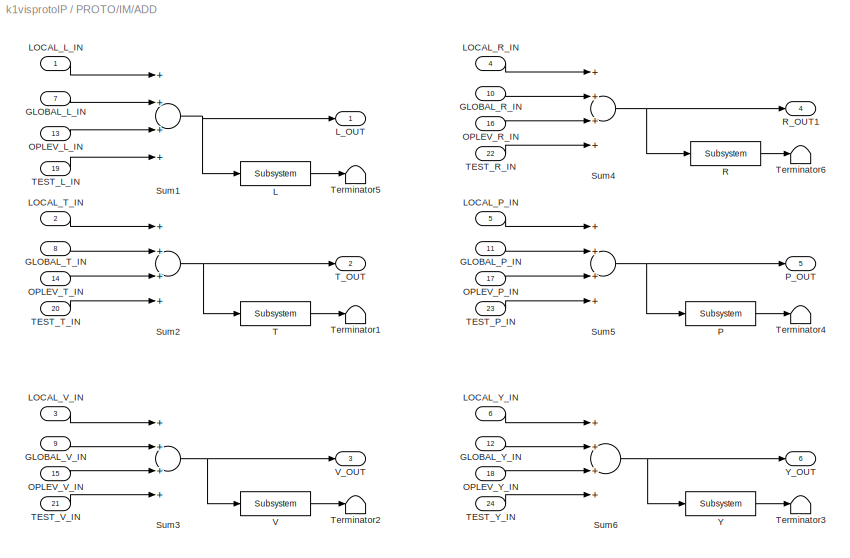
BLOCK [SubSystem] PROTO/IM/ADD
  Ports = [24, 6]
  RequestExecContextInheritance = off
  SID = 3228
BLOCK [Inport] PROTO/IM/ADD/GLOBAL_L_IN
  IconDisplay = Port number
  Port = 7
  SID = 3232
BLOCK [Inport] PROTO/IM/ADD/GLOBAL_P_IN
  IconDisplay = Port number
  Port = 11
  SID = 3449
BLOCK [Inport] PROTO/IM/ADD/GLOBAL_R_IN
  IconDisplay = Port number
  Port = 10
  SID = 4704
BLOCK [Inport] PROTO/IM/ADD/GLOBAL_T_IN
  IconDisplay = Port number
  Port = 8
  SID = 4699
BLOCK [Inport] PROTO/IM/ADD/GLOBAL_V_IN
  IconDisplay = Port number
  Port = 9
  SID = 4703
BLOCK [Inport] PROTO/IM/ADD/GLOBAL_Y_IN
  IconDisplay = Port number
  Port = 12
  SID = 3450
BLOCK [Reference] PROTO/IM/ADD/L  REF=cdsFilt/Subsystem
  AttributesFormatString = %<Tag>
  Ports = [1, 1]
  SID = 4613
  SourceBlock = cdsFilt/Subsystem
  SourceType = SubSystem
  Tag = cdsFilt
BLOCK [Inport] PROTO/IM/ADD/LOCAL_L_IN
  IconDisplay = Port number
  SID = 3229
BLOCK [Inport] PROTO/IM/ADD/LOCAL_P_IN
  IconDisplay = Port number
  Port = 5
  SID = 3446
BLOCK [Inport] PROTO/IM/ADD/LOCAL_R_IN
  IconDisplay = Port number
  Port = 4
  SID = 3445
BLOCK [Inport] PROTO/IM/ADD/LOCAL_T_IN
  IconDisplay = Port number
  Port = 2
  SID = 3230
BLOCK [Inport] PROTO/IM/ADD/LOCAL_V_IN
  IconDisplay = Port number
  Port = 3
  SID = 3231
BLOCK [Inport] PROTO/IM/ADD/LOCAL_Y_IN
  IconDisplay = Port number
  Port = 6
  SID = 3447
BLOCK [Outport] PROTO/IM/ADD/L_OUT
  IconDisplay = Port number
  SID = 3241
BLOCK [Inport] PROTO/IM/ADD/OPLEV_L_IN
  IconDisplay = Port number
  Port = 13
  SID = 4612
BLOCK [Inport] PROTO/IM/ADD/OPLEV_P_IN
  IconDisplay = Port number
  Port = 17
  SID = 3460
BLOCK [Inport] PROTO/IM/ADD/OPLEV_R_IN
  IconDisplay = Port number
  Port = 16
  SID = 4705
BLOCK [Inport] PROTO/IM/ADD/OPLEV_T_IN
  IconDisplay = Port number
  Port = 14
  SID = 4701
BLOCK [Inport] PROTO/IM/ADD/OPLEV_V_IN
  IconDisplay = Port number
  Port = 15
  SID = 4702
BLOCK [Inport] PROTO/IM/ADD/OPLEV_Y_IN
  IconDisplay = Port number
  Port = 18
  SID = 3461
BLOCK [Reference] PROTO/IM/ADD/P  REF=cdsFilt/Subsystem
  AttributesFormatString = %<Tag>
  Ports = [1, 1]
  SID = 4621
  SourceBlock = cdsFilt/Subsystem
  SourceType = SubSystem
  Tag = cdsFilt
BLOCK [Outport] PROTO/IM/ADD/P_OUT
  IconDisplay = Port number
  Port = 5
  SID = 3458
BLOCK [Reference] PROTO/IM/ADD/R  REF=cdsFilt/Subsystem
  AttributesFormatString = %<Tag>
  Ports = [1, 1]
  SID = 4623
  SourceBlock = cdsFilt/Subsystem
  SourceType = SubSystem
  Tag = cdsFilt
BLOCK [Outport] PROTO/IM/ADD/R_OUT1
  IconDisplay = Port number
  Port = 4
  SID = 3457
BLOCK [Sum] PROTO/IM/ADD/Sum1
  InputSameDT = off
  Inputs = ++++
  OutDataTypeStr = Inherit: Inherit via internal rule
  Ports = [4, 1]
  SID = 3238
  SaturateOnIntegerOverflow = off
BLOCK [Sum] PROTO/IM/ADD/Sum2
  InputSameDT = off
  Inputs = ++++
  OutDataTypeStr = Inherit: Inherit via internal rule
  Ports = [4, 1]
  SID = 3239
  SaturateOnIntegerOverflow = off
BLOCK [Sum] PROTO/IM/ADD/Sum3
  InputSameDT = off
  Inputs = ++++
  OutDataTypeStr = Inherit: Inherit via internal rule
  Ports = [4, 1]
  SID = 3240
  SaturateOnIntegerOverflow = off
BLOCK [Sum] PROTO/IM/ADD/Sum4
  InputSameDT = off
  Inputs = ++++
  OutDataTypeStr = Inherit: Inherit via internal rule
  Ports = [4, 1]
  SID = 3454
  SaturateOnIntegerOverflow = off
BLOCK [Sum] PROTO/IM/ADD/Sum5
  InputSameDT = off
  Inputs = ++++
  OutDataTypeStr = Inherit: Inherit via internal rule
  Ports = [4, 1]
  SID = 3455
  SaturateOnIntegerOverflow = off
BLOCK [Sum] PROTO/IM/ADD/Sum6
  InputSameDT = off
  Inputs = ++++
  OutDataTypeStr = Inherit: Inherit via internal rule
  Ports = [4, 1]
  SID = 3456
  SaturateOnIntegerOverflow = off
BLOCK [Reference] PROTO/IM/ADD/T  REF=cdsFilt/Subsystem
  AttributesFormatString = %<Tag>
  Ports = [1, 1]
  SID = 4615
  SourceBlock = cdsFilt/Subsystem
  SourceType = SubSystem
  Tag = cdsFilt
BLOCK [Inport] PROTO/IM/ADD/TEST_L_IN
  IconDisplay = Port number
  Port = 19
  SID = 3235
BLOCK [Inport] PROTO/IM/ADD/TEST_P_IN
  IconDisplay = Port number
  Port = 23
  SID = 3452
BLOCK [Inport] PROTO/IM/ADD/TEST_R_IN
  IconDisplay = Port number
  Port = 22
  SID = 3451
BLOCK [Inport] PROTO/IM/ADD/TEST_T_IN
  IconDisplay = Port number
  Port = 20
  SID = 3236
BLOCK [Inport] PROTO/IM/ADD/TEST_V_IN
  IconDisplay = Port number
  Port = 21
  SID = 3237
BLOCK [Inport] PROTO/IM/ADD/TEST_Y_IN
  IconDisplay = Port number
  Port = 24
  SID = 3453
BLOCK [Outport] PROTO/IM/ADD/T_OUT
  IconDisplay = Port number
  Port = 2
  SID = 3242
BLOCK [Terminator] PROTO/IM/ADD/Terminator1
  SID = 4616
BLOCK [Terminator] PROTO/IM/ADD/Terminator2
  SID = 4618
BLOCK [Terminator] PROTO/IM/ADD/Terminator3
  SID = 4620
BLOCK [Terminator] PROTO/IM/ADD/Terminator4
  SID = 4622
BLOCK [Terminator] PROTO/IM/ADD/Terminator5
  SID = 4614
BLOCK [Terminator] PROTO/IM/ADD/Terminator6
  SID = 4624
BLOCK [Reference] PROTO/IM/ADD/V  REF=cdsFilt/Subsystem
  AttributesFormatString = %<Tag>
  Ports = [1, 1]
  SID = 4617
  SourceBlock = cdsFilt/Subsystem
  SourceType = SubSystem
  Tag = cdsFilt
BLOCK [Outport] PROTO/IM/ADD/V_OUT
  IconDisplay = Port number
  Port = 3
  SID = 3243
BLOCK [Reference] PROTO/IM/ADD/Y  REF=cdsFilt/Subsystem
  AttributesFormatString = %<Tag>
  Ports = [1, 1]
  SID = 4619
  SourceBlock = cdsFilt/Subsystem
  SourceType = SubSystem
  Tag = cdsFilt
BLOCK [Outport] PROTO/IM/ADD/Y_OUT
  IconDisplay = Port number
  Port = 6
  SID = 3459
BLOCK [SubSystem] PROTO/IM/COILMASTER
  Ports = [7, 6]
  RequestExecContextInheritance = off
  SID = 3287
BLOCK [Switch] PROTO/IM/COILMASTER/Choice1
  Criteria = u2 > Threshold
  InputSameDT = off
  SID = 3292
  SaturateOnIntegerOverflow = off
BLOCK [Switch] PROTO/IM/COILMASTER/Choice2
  Criteria = u2 > Threshold
  InputSameDT = off
  SID = 3293
  SaturateOnIntegerOverflow = off
BLOCK [Switch] PROTO/IM/COILMASTER/Choice3
  Criteria = u2 > Threshold
  InputSameDT = off
  SID = 3294
  SaturateOnIntegerOverflow = off
BLOCK [Switch] PROTO/IM/COILMASTER/Choice4
  Criteria = u2 > Threshold
  InputSameDT = off
  SID = 3510
  SaturateOnIntegerOverflow = off
BLOCK [Switch] PROTO/IM/COILMASTER/Choice5
  Criteria = u2 > Threshold
  InputSameDT = off
  SID = 3511
  SaturateOnIntegerOverflow = off
BLOCK [Switch] PROTO/IM/COILMASTER/Choice6
  Criteria = u2 > Threshold
  InputSameDT = off
  SID = 3512
  SaturateOnIntegerOverflow = off
BLOCK [Ground] PROTO/IM/COILMASTER/Ground1
  SID = 3295
BLOCK [Ground] PROTO/IM/COILMASTER/Ground2
  SID = 3296
BLOCK [Ground] PROTO/IM/COILMASTER/Ground3
  SID = 3297
BLOCK [Ground] PROTO/IM/COILMASTER/Ground4
  SID = 3513
BLOCK [Ground] PROTO/IM/COILMASTER/Ground5
  SID = 3514
BLOCK [Ground] PROTO/IM/COILMASTER/Ground6
  SID = 3515
BLOCK [Inport] PROTO/IM/COILMASTER/H1_IN
  IconDisplay = Port number
  SID = 3288
BLOCK [Outport] PROTO/IM/COILMASTER/H1_Out
  IconDisplay = Port number
  SID = 3301
BLOCK [Inport] PROTO/IM/COILMASTER/H2_IN
  IconDisplay = Port number
  Port = 2
  SID = 3289
BLOCK [Outport] PROTO/IM/COILMASTER/H2_Out
  IconDisplay = Port number
  Port = 2
  SID = 3302
BLOCK [Inport] PROTO/IM/COILMASTER/H3_IN
  IconDisplay = Port number
  Port = 3
  SID = 3290
BLOCK [Outport] PROTO/IM/COILMASTER/H3_Out
  IconDisplay = Port number
  Port = 3
  SID = 3303
BLOCK [Inport] PROTO/IM/COILMASTER/SW_IN
  IconDisplay = Port number
  Port = 7
  SID = 3291
BLOCK [Inport] PROTO/IM/COILMASTER/V1_IN
  IconDisplay = Port number
  Port = 4
  SID = 3507
BLOCK [Outport] PROTO/IM/COILMASTER/V1_Out
  IconDisplay = Port number
  Port = 4
  SID = 3519
BLOCK [Inport] PROTO/IM/COILMASTER/V2_IN
  IconDisplay = Port number
  Port = 5
  SID = 3508
BLOCK [Outport] PROTO/IM/COILMASTER/V2_Out
  IconDisplay = Port number
  Port = 5
  SID = 3520
BLOCK [Inport] PROTO/IM/COILMASTER/V3_IN
  IconDisplay = Port number
  Port = 6
  SID = 3509
BLOCK [Outport] PROTO/IM/COILMASTER/V3_Out
  IconDisplay = Port number
  Port = 6
  SID = 3521
BLOCK [Reference] PROTO/IM/COILMAT  REF=cdsMuxMatrix/Subsystem
  AttributesFormatString = %<Tag>
  Description = ADL=SUS_INMATRIX.adl                                                                \nSCRIPT=generate_KisselButton.py 4 5 #CHANNEL# > #TARGET_DIR#/#FULL_PART_NAME#_KB.adl
  Ports = [1, 1]
  SID = 3304
  SourceBlock = cdsMuxMatrix/Subsystem
  SourceType = SubSystem
  Tag = cdsMuxMatrix
BLOCK [SubSystem] PROTO/IM/COILOUTF
  Ports = [6, 6]
  RequestExecContextInheritance = off
  SID = 3305
BLOCK [Ground] PROTO/IM/COILOUTF/Ground1
  SID = 3309
BLOCK [Ground] PROTO/IM/COILOUTF/Ground2
  SID = 3310
BLOCK [Ground] PROTO/IM/COILOUTF/Ground3
  SID = 3311
BLOCK [Ground] PROTO/IM/COILOUTF/Ground4
  SID = 3495
BLOCK [Ground] PROTO/IM/COILOUTF/Ground5
  SID = 3496
BLOCK [Ground] PROTO/IM/COILOUTF/Ground6
  SID = 3497
BLOCK [Reference] PROTO/IM/COILOUTF/H1  REF=cdsFiltCtrl/IIR FM with control
  AttributesFormatString = %<Tag>
  Ports = [3, 2]
  SID = 3312
  SourceBlock = cdsFiltCtrl/IIR FM with control
  SourceType = SubSystem
  Tag = cdsFiltCtrl
BLOCK [Inport] PROTO/IM/COILOUTF/H1_IN
  IconDisplay = Port number
  SID = 3306
BLOCK [Outport] PROTO/IM/COILOUTF/H1_Out
  IconDisplay = Port number
  SID = 3318
BLOCK [Reference] PROTO/IM/COILOUTF/H2  REF=cdsFiltCtrl/IIR FM with control
  AttributesFormatString = %<Tag>
  Ports = [3, 2]
  SID = 3313
  SourceBlock = cdsFiltCtrl/IIR FM with control
  SourceType = SubSystem
  Tag = cdsFiltCtrl
BLOCK [Inport] PROTO/IM/COILOUTF/H2_IN
  IconDisplay = Port number
  Port = 2
  SID = 3307
BLOCK [Outport] PROTO/IM/COILOUTF/H2_Out
  IconDisplay = Port number
  Port = 2
  SID = 3319
BLOCK [Reference] PROTO/IM/COILOUTF/H3  REF=cdsFiltCtrl/IIR FM with control
  AttributesFormatString = %<Tag>
  Ports = [3, 2]
  SID = 3314
  SourceBlock = cdsFiltCtrl/IIR FM with control
  SourceType = SubSystem
  Tag = cdsFiltCtrl
BLOCK [Inport] PROTO/IM/COILOUTF/H3_IN
  IconDisplay = Port number
  Port = 3
  SID = 3308
BLOCK [Outport] PROTO/IM/COILOUTF/H3_Out
  IconDisplay = Port number
  Port = 3
  SID = 3320
BLOCK [Terminator] PROTO/IM/COILOUTF/Terminator1
  SID = 3315
BLOCK [Terminator] PROTO/IM/COILOUTF/Terminator2
  SID = 3316
BLOCK [Terminator] PROTO/IM/COILOUTF/Terminator3
  SID = 3317
BLOCK [Terminator] PROTO/IM/COILOUTF/Terminator4
  SID = 3501
BLOCK [Terminator] PROTO/IM/COILOUTF/Terminator5
  SID = 3502
BLOCK [Terminator] PROTO/IM/COILOUTF/Terminator6
  SID = 3503
BLOCK [Reference] PROTO/IM/COILOUTF/V1  REF=cdsFiltCtrl/IIR FM with control
  AttributesFormatString = %<Tag>
  Ports = [3, 2]
  SID = 3498
  SourceBlock = cdsFiltCtrl/IIR FM with control
  SourceType = SubSystem
  Tag = cdsFiltCtrl
BLOCK [Inport] PROTO/IM/COILOUTF/V1_IN
  IconDisplay = Port number
  Port = 4
  SID = 3492
BLOCK [Outport] PROTO/IM/COILOUTF/V1_Out
  IconDisplay = Port number
  Port = 4
  SID = 3504
BLOCK [Reference] PROTO/IM/COILOUTF/V2  REF=cdsFiltCtrl/IIR FM with control
  AttributesFormatString = %<Tag>
  Ports = [3, 2]
  SID = 3499
  SourceBlock = cdsFiltCtrl/IIR FM with control
  SourceType = SubSystem
  Tag = cdsFiltCtrl
BLOCK [Inport] PROTO/IM/COILOUTF/V2_IN
  IconDisplay = Port number
  Port = 5
  SID = 3493
BLOCK [Outport] PROTO/IM/COILOUTF/V2_Out
  IconDisplay = Port number
  Port = 5
  SID = 3505
BLOCK [Reference] PROTO/IM/COILOUTF/V3  REF=cdsFiltCtrl/IIR FM with control
  AttributesFormatString = %<Tag>
  Ports = [3, 2]
  SID = 3500
  SourceBlock = cdsFiltCtrl/IIR FM with control
  SourceType = SubSystem
  Tag = cdsFiltCtrl
BLOCK [Inport] PROTO/IM/COILOUTF/V3_IN
  IconDisplay = Port number
  Port = 6
  SID = 3494
BLOCK [Outport] PROTO/IM/COILOUTF/V3_Out
  IconDisplay = Port number
  Port = 6
  SID = 3506
BLOCK [Outport] PROTO/IM/COIL_H1_OUT
  IconDisplay = Port number
  SID = 3405
BLOCK [Outport] PROTO/IM/COIL_H2_OUT
  IconDisplay = Port number
  Port = 2
  SID = 3406
BLOCK [Outport] PROTO/IM/COIL_H3_OUT
  IconDisplay = Port number
  Port = 3
  SID = 3407
BLOCK [Outport] PROTO/IM/COIL_V1_OUT
  IconDisplay = Port number
  Port = 4
  SID = 3523
BLOCK [Outport] PROTO/IM/COIL_V2_OUT
  IconDisplay = Port number
  Port = 5
  SID = 3524
BLOCK [Outport] PROTO/IM/COIL_V3_OUT
  IconDisplay = Port number
  Port = 6
  SID = 3525
BLOCK [Demux] PROTO/IM/Demux
  DisplayOption = bar
  Outputs = 6
  Ports = [1, 6]
  SID = 3321
BLOCK [Demux] PROTO/IM/Demux6
  DisplayOption = bar
  Outputs = 6
  Ports = [1, 6]
  SID = 3322
BLOCK [SubSystem] PROTO/IM/GLOBALF
  Ports = [3, 6]
  RequestExecContextInheritance = off
  SID = 3324
BLOCK [Demux] PROTO/IM/GLOBALF/Demux
  DisplayOption = bar
  Outputs = 6
  Ports = [1, 6]
  SID = 4646
BLOCK [Ground] PROTO/IM/GLOBALF/Ground1
  SID = 3328
BLOCK [Ground] PROTO/IM/GLOBALF/Ground2
  SID = 3329
BLOCK [Ground] PROTO/IM/GLOBALF/Ground3
  SID = 3330
BLOCK [Reference] PROTO/IM/GLOBALF/L  REF=cdsFiltCtrl/IIR FM with control
  AttributesFormatString = %<Tag>
  Ports = [3, 2]
  SID = 3331
  SourceBlock = cdsFiltCtrl/IIR FM with control
  SourceType = SubSystem
  Tag = cdsFiltCtrl
BLOCK [Inport] PROTO/IM/GLOBALF/L_IN
  IconDisplay = Port number
  SID = 3325
BLOCK [Outport] PROTO/IM/GLOBALF/L_Out
  IconDisplay = Port number
  SID = 3337
BLOCK [Mux] PROTO/IM/GLOBALF/Mux
  DisplayOption = bar
  Inputs = 3
  Ports = [3, 1]
  SID = 4647
BLOCK [Reference] PROTO/IM/GLOBALF/OUTMAT  REF=cdsMuxMatrix/Subsystem
  AttributesFormatString = %<Tag>
  Description = ADL=SUS_INMATRIX.adl                                                                \nSCRIPT=generate_KisselButton.py 4 5 #CHANNEL# > #TARGET_DIR#/#FULL_PART_NAME#_KB.adl
  Ports = [1, 1]
  SID = 4648
  SourceBlock = cdsMuxMatrix/Subsystem
  SourceType = SubSystem
  Tag = cdsMuxMatrix
BLOCK [Reference] PROTO/IM/GLOBALF/P  REF=cdsFiltCtrl/IIR FM with control
  AttributesFormatString = %<Tag>
  Ports = [3, 2]
  SID = 3332
  SourceBlock = cdsFiltCtrl/IIR FM with control
  SourceType = SubSystem
  Tag = cdsFiltCtrl
BLOCK [Inport] PROTO/IM/GLOBALF/P_IN
  IconDisplay = Port number
  Port = 2
  SID = 3326
BLOCK [Outport] PROTO/IM/GLOBALF/P_Out
  IconDisplay = Port number
  Port = 5
  SID = 4689
BLOCK [Outport] PROTO/IM/GLOBALF/R_Out
  IconDisplay = Port number
  Port = 4
  SID = 4688
BLOCK [Outport] PROTO/IM/GLOBALF/T_Out
  IconDisplay = Port number
  Port = 2
  SID = 3338
BLOCK [Terminator] PROTO/IM/GLOBALF/Terminator1
  SID = 3333
BLOCK [Terminator] PROTO/IM/GLOBALF/Terminator2
  SID = 3334
BLOCK [Terminator] PROTO/IM/GLOBALF/Terminator3
  SID = 3335
BLOCK [Outport] PROTO/IM/GLOBALF/V_Out
  IconDisplay = Port number
  Port = 3
  SID = 3339
BLOCK [Reference] PROTO/IM/GLOBALF/Y  REF=cdsFiltCtrl/IIR FM with control
  AttributesFormatString = %<Tag>
  Ports = [3, 2]
  SID = 3336
  SourceBlock = cdsFiltCtrl/IIR FM with control
  SourceType = SubSystem
  Tag = cdsFiltCtrl
BLOCK [Inport] PROTO/IM/GLOBALF/Y_IN
  IconDisplay = Port number
  Port = 3
  SID = 3327
BLOCK [Outport] PROTO/IM/GLOBALF/Y_Out
  IconDisplay = Port number
  Port = 6
  SID = 4690
BLOCK [Inport] PROTO/IM/IFO_L_IN
  IconDisplay = Port number
  Port = 7
  SID = 3462
BLOCK [Inport] PROTO/IM/IFO_P_IN
  IconDisplay = Port number
  Port = 8
  SID = 3463
BLOCK [Inport] PROTO/IM/IFO_Y_IN
  IconDisplay = Port number
  Port = 9
  SID = 3464
BLOCK [Inport] PROTO/IM/MASTER_IN
  IconDisplay = Port number
  Port = 13
  SID = 3522
BLOCK [Mux] PROTO/IM/Mux
  DisplayOption = bar
  Inputs = 6
  Ports = [6, 1]
  SID = 3359
BLOCK [Mux] PROTO/IM/Mux6
  DisplayOption = bar
  Inputs = 6
  Ports = [6, 1]
  SID = 3360
BLOCK [Inport] PROTO/IM/OL_L_IN
  IconDisplay = Port number
  Port = 10
  SID = 4611
BLOCK [Inport] PROTO/IM/OL_P_IN
  IconDisplay = Port number
  Port = 11
  SID = 3481
BLOCK [Inport] PROTO/IM/OL_Y_IN1
  IconDisplay = Port number
  Port = 12
  SID = 3482
BLOCK [SubSystem] PROTO/IM/OPLEVF
  Ports = [3, 6]
  RequestExecContextInheritance = off
  SID = 3465
BLOCK [Demux] PROTO/IM/OPLEVF/Demux
  DisplayOption = bar
  Outputs = 6
  Ports = [1, 6]
  SID = 4691
BLOCK [Ground] PROTO/IM/OPLEVF/Ground1
  SID = 4607
BLOCK [Ground] PROTO/IM/OPLEVF/Ground2
  SID = 3470
BLOCK [Ground] PROTO/IM/OPLEVF/Ground3
  SID = 3471
BLOCK [Reference] PROTO/IM/OPLEVF/L  REF=cdsFiltCtrl/IIR FM with control
  AttributesFormatString = %<Tag>
  Ports = [3, 2]
  SID = 4609
  SourceBlock = cdsFiltCtrl/IIR FM with control
  SourceType = SubSystem
  Tag = cdsFiltCtrl
BLOCK [Inport] PROTO/IM/OPLEVF/L_IN
  IconDisplay = Port number
  SID = 4606
BLOCK [Outport] PROTO/IM/OPLEVF/L_Out
  IconDisplay = Port number
  SID = 4693
BLOCK [Mux] PROTO/IM/OPLEVF/Mux
  DisplayOption = bar
  Inputs = 3
  Ports = [3, 1]
  SID = 4650
BLOCK [Reference] PROTO/IM/OPLEVF/OUTMAT  REF=cdsMuxMatrix/Subsystem
  AttributesFormatString = %<Tag>
  Description = ADL=SUS_INMATRIX.adl                                                                \nSCRIPT=generate_KisselButton.py 4 5 #CHANNEL# > #TARGET_DIR#/#FULL_PART_NAME#_KB.adl
  Ports = [1, 1]
  SID = 4692
  SourceBlock = cdsMuxMatrix/Subsystem
  SourceType = SubSystem
  Tag = cdsMuxMatrix
BLOCK [Reference] PROTO/IM/OPLEVF/P  REF=cdsFiltCtrl/IIR FM with control
  AttributesFormatString = %<Tag>
  Ports = [3, 2]
  SID = 3473
  SourceBlock = cdsFiltCtrl/IIR FM with control
  SourceType = SubSystem
  Tag = cdsFiltCtrl
BLOCK [Inport] PROTO/IM/OPLEVF/P_IN
  IconDisplay = Port number
  Port = 2
  SID = 3467
BLOCK [Outport] PROTO/IM/OPLEVF/P_Out
  IconDisplay = Port number
  Port = 5
  SID = 4697
BLOCK [Outport] PROTO/IM/OPLEVF/R_Out
  IconDisplay = Port number
  Port = 4
  SID = 4696
BLOCK [Outport] PROTO/IM/OPLEVF/T_Out
  IconDisplay = Port number
  Port = 2
  SID = 4694
BLOCK [Terminator] PROTO/IM/OPLEVF/Terminator1
  SID = 4608
BLOCK [Terminator] PROTO/IM/OPLEVF/Terminator2
  SID = 3475
BLOCK [Terminator] PROTO/IM/OPLEVF/Terminator3
  SID = 3476
BLOCK [Outport] PROTO/IM/OPLEVF/V_Out
  IconDisplay = Port number
  Port = 3
  SID = 4695
BLOCK [Reference] PROTO/IM/OPLEVF/Y  REF=cdsFiltCtrl/IIR FM with control
  AttributesFormatString = %<Tag>
  Ports = [3, 2]
  SID = 3477
  SourceBlock = cdsFiltCtrl/IIR FM with control
  SourceType = SubSystem
  Tag = cdsFiltCtrl
BLOCK [Inport] PROTO/IM/OPLEVF/Y_IN
  IconDisplay = Port number
  Port = 3
  SID = 3468
BLOCK [Outport] PROTO/IM/OPLEVF/Y_Out
  IconDisplay = Port number
  Port = 6
  SID = 4698
BLOCK [SubSystem] PROTO/IM/OSEMINF
  Ports = [6, 6]
  RequestExecContextInheritance = off
  SID = 3342
BLOCK [Ground] PROTO/IM/OSEMINF/Ground1
  SID = 3346
BLOCK [Ground] PROTO/IM/OSEMINF/Ground2
  SID = 3347
BLOCK [Ground] PROTO/IM/OSEMINF/Ground3
  SID = 3348
BLOCK [Ground] PROTO/IM/OSEMINF/Ground4
  SID = 3409
BLOCK [Ground] PROTO/IM/OSEMINF/Ground5
  SID = 3414
BLOCK [Ground] PROTO/IM/OSEMINF/Ground6
  SID = 3419
BLOCK [Reference] PROTO/IM/OSEMINF/H1  REF=cdsFiltCtrl/IIR FM with control
  AttributesFormatString = %<Tag>
  Ports = [3, 2]
  SID = 3349
  SourceBlock = cdsFiltCtrl/IIR FM with control
  SourceType = SubSystem
  Tag = cdsFiltCtrl
BLOCK [Inport] PROTO/IM/OSEMINF/H1_IN
  IconDisplay = Port number
  SID = 3343
BLOCK [Outport] PROTO/IM/OSEMINF/H1_OUT
  IconDisplay = Port number
  SID = 3355
BLOCK [Reference] PROTO/IM/OSEMINF/H2  REF=cdsFiltCtrl/IIR FM with control
  AttributesFormatString = %<Tag>
  Ports = [3, 2]
  SID = 3350
  SourceBlock = cdsFiltCtrl/IIR FM with control
  SourceType = SubSystem
  Tag = cdsFiltCtrl
BLOCK [Inport] PROTO/IM/OSEMINF/H2_IN
  IconDisplay = Port number
  Port = 2
  SID = 3344
BLOCK [Outport] PROTO/IM/OSEMINF/H2_OUT
  IconDisplay = Port number
  Port = 2
  SID = 3356
BLOCK [Reference] PROTO/IM/OSEMINF/H3  REF=cdsFiltCtrl/IIR FM with control
  AttributesFormatString = %<Tag>
  Ports = [3, 2]
  SID = 3351
  SourceBlock = cdsFiltCtrl/IIR FM with control
  SourceType = SubSystem
  Tag = cdsFiltCtrl
BLOCK [Inport] PROTO/IM/OSEMINF/H3_IN
  IconDisplay = Port number
  Port = 3
  SID = 3345
BLOCK [Outport] PROTO/IM/OSEMINF/H3_OUT
  IconDisplay = Port number
  Port = 3
  SID = 3357
BLOCK [Terminator] PROTO/IM/OSEMINF/Terminator1
  SID = 3352
BLOCK [Terminator] PROTO/IM/OSEMINF/Terminator2
  SID = 3353
BLOCK [Terminator] PROTO/IM/OSEMINF/Terminator3
  SID = 3354
BLOCK [Terminator] PROTO/IM/OSEMINF/Terminator4
  SID = 3411
BLOCK [Terminator] PROTO/IM/OSEMINF/Terminator5
  SID = 3415
BLOCK [Terminator] PROTO/IM/OSEMINF/Terminator6
  SID = 3420
BLOCK [Reference] PROTO/IM/OSEMINF/V1  REF=cdsFiltCtrl/IIR FM with control
  AttributesFormatString = %<Tag>
  Ports = [3, 2]
  SID = 3410
  SourceBlock = cdsFiltCtrl/IIR FM with control
  SourceType = SubSystem
  Tag = cdsFiltCtrl
BLOCK [Inport] PROTO/IM/OSEMINF/V1_IN
  IconDisplay = Port number
  Port = 4
  SID = 3408
BLOCK [Outport] PROTO/IM/OSEMINF/V1_OUT
  IconDisplay = Port number
  Port = 4
  SID = 3412
BLOCK [Reference] PROTO/IM/OSEMINF/V2  REF=cdsFiltCtrl/IIR FM with control
  AttributesFormatString = %<Tag>
  Ports = [3, 2]
  SID = 3416
  SourceBlock = cdsFiltCtrl/IIR FM with control
  SourceType = SubSystem
  Tag = cdsFiltCtrl
BLOCK [Inport] PROTO/IM/OSEMINF/V2_IN
  IconDisplay = Port number
  Port = 5
  SID = 3413
BLOCK [Outport] PROTO/IM/OSEMINF/V2_OUT
  IconDisplay = Port number
  Port = 5
  SID = 3417
BLOCK [Reference] PROTO/IM/OSEMINF/V3  REF=cdsFiltCtrl/IIR FM with control
  AttributesFormatString = %<Tag>
  Ports = [3, 2]
  SID = 3421
  SourceBlock = cdsFiltCtrl/IIR FM with control
  SourceType = SubSystem
  Tag = cdsFiltCtrl
BLOCK [Inport] PROTO/IM/OSEMINF/V3_IN
  IconDisplay = Port number
  Port = 6
  SID = 3418
BLOCK [Outport] PROTO/IM/OSEMINF/V3_OUT
  IconDisplay = Port number
  Port = 6
  SID = 3422
BLOCK [Inport] PROTO/IM/OSEM_H1_IN
  IconDisplay = Port number
  SID = 3220
BLOCK [Inport] PROTO/IM/OSEM_H2_IN
  IconDisplay = Port number
  Port = 2
  SID = 3221
BLOCK [Inport] PROTO/IM/OSEM_H3_IN
  IconDisplay = Port number
  Port = 3
  SID = 3222
BLOCK [Inport] PROTO/IM/OSEM_V1_IN
  IconDisplay = Port number
  Port = 4
  SID = 3426
BLOCK [Inport] PROTO/IM/OSEM_V2_IN
  IconDisplay = Port number
  Port = 5
  SID = 3427
BLOCK [Inport] PROTO/IM/OSEM_V3_IN
  IconDisplay = Port number
  Port = 6
  SID = 3428
BLOCK [Reference] PROTO/IM/SENSMAT  REF=cdsMuxMatrix/Subsystem
  AttributesFormatString = %<Tag>
  Description = ADL=SUS_INMATRIX.adl                                                                \nSCRIPT=generate_KisselButton.py 4 5 #CHANNEL# > #TARGET_DIR#/#FULL_PART_NAME#_KB.adl
  Ports = [1, 1]
  SID = 3358
  SourceBlock = cdsMuxMatrix/Subsystem
  SourceType = SubSystem
  Tag = cdsMuxMatrix
BLOCK [SubSystem] PROTO/IM/SERVOF
  Ports = [6, 6]
  RequestExecContextInheritance = off
  SID = 3379
BLOCK [Ground] PROTO/IM/SERVOF/Ground1
  SID = 3383
BLOCK [Ground] PROTO/IM/SERVOF/Ground2
  SID = 3384
BLOCK [Ground] PROTO/IM/SERVOF/Ground3
  SID = 3385
BLOCK [Ground] PROTO/IM/SERVOF/Ground4
  SID = 3432
BLOCK [Ground] PROTO/IM/SERVOF/Ground5
  SID = 3433
BLOCK [Ground] PROTO/IM/SERVOF/Ground6
  SID = 3434
BLOCK [Reference] PROTO/IM/SERVOF/L  REF=cdsFiltCtrl/IIR FM with control
  AttributesFormatString = %<Tag>
  Ports = [3, 2]
  SID = 3386
  SourceBlock = cdsFiltCtrl/IIR FM with control
  SourceType = SubSystem
  Tag = cdsFiltCtrl
BLOCK [Inport] PROTO/IM/SERVOF/L_IN
  IconDisplay = Port number
  SID = 3380
BLOCK [Outport] PROTO/IM/SERVOF/L_Out
  IconDisplay = Port number
  SID = 3392
BLOCK [Reference] PROTO/IM/SERVOF/P  REF=cdsFiltCtrl/IIR FM with control
  AttributesFormatString = %<Tag>
  Ports = [3, 2]
  SID = 3436
  SourceBlock = cdsFiltCtrl/IIR FM with control
  SourceType = SubSystem
  Tag = cdsFiltCtrl
BLOCK [Inport] PROTO/IM/SERVOF/P_IN
  IconDisplay = Port number
  Port = 5
  SID = 3430
BLOCK [Outport] PROTO/IM/SERVOF/P_Out
  IconDisplay = Port number
  Port = 5
  SID = 3442
BLOCK [Reference] PROTO/IM/SERVOF/R  REF=cdsFiltCtrl/IIR FM with control
  AttributesFormatString = %<Tag>
  Ports = [3, 2]
  SID = 3435
  SourceBlock = cdsFiltCtrl/IIR FM with control
  SourceType = SubSystem
  Tag = cdsFiltCtrl
BLOCK [Inport] PROTO/IM/SERVOF/R_IN
  IconDisplay = Port number
  Port = 4
  SID = 3429
BLOCK [Outport] PROTO/IM/SERVOF/R_Out
  IconDisplay = Port number
  Port = 4
  SID = 3441
BLOCK [Reference] PROTO/IM/SERVOF/T  REF=cdsFiltCtrl/IIR FM with control
  AttributesFormatString = %<Tag>
  Ports = [3, 2]
  SID = 3387
  SourceBlock = cdsFiltCtrl/IIR FM with control
  SourceType = SubSystem
  Tag = cdsFiltCtrl
BLOCK [Inport] PROTO/IM/SERVOF/T_IN
  IconDisplay = Port number
  Port = 2
  SID = 3381
BLOCK [Outport] PROTO/IM/SERVOF/T_Out
  IconDisplay = Port number
  Port = 2
  SID = 3393
BLOCK [Terminator] PROTO/IM/SERVOF/Terminator1
  SID = 3388
BLOCK [Terminator] PROTO/IM/SERVOF/Terminator2
  SID = 3389
BLOCK [Terminator] PROTO/IM/SERVOF/Terminator3
  SID = 3390
BLOCK [Terminator] PROTO/IM/SERVOF/Terminator4
  SID = 3437
BLOCK [Terminator] PROTO/IM/SERVOF/Terminator5
  SID = 3438
BLOCK [Terminator] PROTO/IM/SERVOF/Terminator6
  SID = 3439
BLOCK [Reference] PROTO/IM/SERVOF/V  REF=cdsFiltCtrl/IIR FM with control
  AttributesFormatString = %<Tag>
  Ports = [3, 2]
  SID = 3391
  SourceBlock = cdsFiltCtrl/IIR FM with control
  SourceType = SubSystem
  Tag = cdsFiltCtrl
BLOCK [Inport] PROTO/IM/SERVOF/V_IN
  IconDisplay = Port number
  Port = 3
  SID = 3382
BLOCK [Outport] PROTO/IM/SERVOF/V_Out
  IconDisplay = Port number
  Port = 3
  SID = 3394
BLOCK [Reference] PROTO/IM/SERVOF/Y  REF=cdsFiltCtrl/IIR FM with control
  AttributesFormatString = %<Tag>
  Ports = [3, 2]
  SID = 3440
  SourceBlock = cdsFiltCtrl/IIR FM with control
  SourceType = SubSystem
  Tag = cdsFiltCtrl
BLOCK [Inport] PROTO/IM/SERVOF/Y_IN
  IconDisplay = Port number
  Port = 6
  SID = 3431
BLOCK [Outport] PROTO/IM/SERVOF/Y_Out
  IconDisplay = Port number
  Port = 6
  SID = 3443
BLOCK [SubSystem] PROTO/IM/TEST
  Ports = [0, 6]
  RequestExecContextInheritance = off
  SID = 3395
BLOCK [Ground] PROTO/IM/TEST/Ground1
  SID = 3396
BLOCK [Ground] PROTO/IM/TEST/Ground2
  SID = 3397
BLOCK [Ground] PROTO/IM/TEST/Ground3
  SID = 3398
BLOCK [Ground] PROTO/IM/TEST/Ground4
  SID = 3483
BLOCK [Ground] PROTO/IM/TEST/Ground5
  SID = 3484
BLOCK [Ground] PROTO/IM/TEST/Ground6
  SID = 3485
BLOCK [Reference] PROTO/IM/TEST/L  REF=cdsFilt/Subsystem
  AttributesFormatString = %<Tag>
  Ports = [1, 1]
  SID = 3399
  SourceBlock = cdsFilt/Subsystem
  SourceType = SubSystem
  Tag = cdsFilt
BLOCK [Outport] PROTO/IM/TEST/L_Out
  IconDisplay = Port number
  SID = 3402
BLOCK [Reference] PROTO/IM/TEST/P  REF=cdsFilt/Subsystem
  AttributesFormatString = %<Tag>
  Ports = [1, 1]
  SID = 3487
  SourceBlock = cdsFilt/Subsystem
  SourceType = SubSystem
  Tag = cdsFilt
BLOCK [Outport] PROTO/IM/TEST/P_Out
  IconDisplay = Port number
  Port = 5
  SID = 3490
BLOCK [Reference] PROTO/IM/TEST/R  REF=cdsFilt/Subsystem
  AttributesFormatString = %<Tag>
  Ports = [1, 1]
  SID = 3486
  SourceBlock = cdsFilt/Subsystem
  SourceType = SubSystem
  Tag = cdsFilt
BLOCK [Outport] PROTO/IM/TEST/R_Out
  IconDisplay = Port number
  Port = 4
  SID = 3489
BLOCK [Reference] PROTO/IM/TEST/T  REF=cdsFilt/Subsystem
  AttributesFormatString = %<Tag>
  Ports = [1, 1]
  SID = 3400
  SourceBlock = cdsFilt/Subsystem
  SourceType = SubSystem
  Tag = cdsFilt
BLOCK [Outport] PROTO/IM/TEST/T_Out
  IconDisplay = Port number
  Port = 2
  SID = 3403
BLOCK [Reference] PROTO/IM/TEST/V  REF=cdsFilt/Subsystem
  AttributesFormatString = %<Tag>
  Ports = [1, 1]
  SID = 3401
  SourceBlock = cdsFilt/Subsystem
  SourceType = SubSystem
  Tag = cdsFilt
BLOCK [Outport] PROTO/IM/TEST/V_Out
  IconDisplay = Port number
  Port = 3
  SID = 3404
BLOCK [Reference] PROTO/IM/TEST/Y  REF=cdsFilt/Subsystem
  AttributesFormatString = %<Tag>
  Ports = [1, 1]
  SID = 3488
  SourceBlock = cdsFilt/Subsystem
  SourceType = SubSystem
  Tag = cdsFilt
BLOCK [Outport] PROTO/IM/TEST/Y_Out
  IconDisplay = Port number
  Port = 6
  SID = 3491
BLOCK [Outport] PROTO/IM_COIL_H1_OUT
  IconDisplay = Port number
  Port = 4
  SID = 3537
BLOCK [Outport] PROTO/IM_COIL_H2_OUT
  IconDisplay = Port number
  Port = 5
  SID = 3538
BLOCK [Outport] PROTO/IM_COIL_H3_OUT
  IconDisplay = Port number
  Port = 6
  SID = 3539
BLOCK [Outport] PROTO/IM_COIL_V1_OUT
  IconDisplay = Port number
  Port = 7
  SID = 3540
BLOCK [Outport] PROTO/IM_COIL_V2_OUT
  IconDisplay = Port number
  Port = 8
  SID = 3541
BLOCK [Outport] PROTO/IM_COIL_V3_OUT
  IconDisplay = Port number
  Port = 9
  SID = 3542
BLOCK [Inport] PROTO/IM_OSEM_H1_IN
  IconDisplay = Port number
  Port = 7
  SID = 3526
BLOCK [Inport] PROTO/IM_OSEM_H2_IN
  IconDisplay = Port number
  Port = 8
  SID = 3532
BLOCK [Inport] PROTO/IM_OSEM_H3_IN
  IconDisplay = Port number
  Port = 9
  SID = 3533
BLOCK [Inport] PROTO/IM_OSEM_V1_IN
  IconDisplay = Port number
  Port = 10
  SID = 3534
BLOCK [Inport] PROTO/IM_OSEM_V2_IN
  IconDisplay = Port number
  Port = 11
  SID = 3535
BLOCK [Inport] PROTO/IM_OSEM_V3_IN
  IconDisplay = Port number
  Port = 12
  SID = 3536
BLOCK [Reference] PROTO/MASTERSWITCH  REF=cdsEpicsBinIn/Subsystem
  AttributesFormatString = %<Tag>
  Description = Purpose:                                                                            \nCreate an EPICS binary (0 or 1) input channel to the FE realtime controls.          \n                                                                                    \nOperation:                                                                          \nOutputs value from an EPICS ai record. Value is binary i...<+252ch>
  Ports = [1, 1]
  SID = 4092
  SourceBlock = cdsEpicsBinIn/Subsystem
  SourceType = SubSystem
  Tag = cdsEpicsBinIn
BLOCK [SubSystem] PROTO/OL
  Ports = [8, 3]
  RequestExecContextInheritance = off
  SID = 3777
BLOCK [Demux] PROTO/OL/Demux
  DisplayOption = bar
  Outputs = 3
  Ports = [1, 3]
  SID = 3972
BLOCK [Demux] PROTO/OL/Demux1
  DisplayOption = bar
  Outputs = 3
  Ports = [1, 3]
  SID = 4528
BLOCK [Demux] PROTO/OL/Demux2
  DisplayOption = bar
  Outputs = 3
  Ports = [1, 3]
  SID = 4556
BLOCK [Ground] PROTO/OL/Ground6
  SID = 4557
BLOCK [Outport] PROTO/OL/LONG_OUT
  IconDisplay = Port number
  SID = 4599
BLOCK [Mux] PROTO/OL/Mux
  DisplayOption = bar
  Ports = [4, 1]
  SID = 3917
BLOCK [Mux] PROTO/OL/Mux1
  DisplayOption = bar
  Ports = [4, 1]
  SID = 4529
BLOCK [Mux] PROTO/OL/Mux2
  DisplayOption = bar
  Ports = [4, 1]
  SID = 4555
BLOCK [SubSystem] PROTO/OL/OLOUTF
  Ports = [3, 3]
  RequestExecContextInheritance = off
  SID = 4026
BLOCK [Reference] PROTO/OL/OLOUTF/LONGF  REF=cdsFilt/Subsystem
  AttributesFormatString = %<Tag>
  Ports = [1, 1]
  SID = 4047
  SourceBlock = cdsFilt/Subsystem
  SourceType = SubSystem
  Tag = cdsFilt
BLOCK [Inport] PROTO/OL/OLOUTF/LONG_IN
  IconDisplay = Port number
  SID = 4029
BLOCK [Outport] PROTO/OL/OLOUTF/LONG_OUT
  IconDisplay = Port number
  SID = 4598
BLOCK [Reference] PROTO/OL/OLOUTF/PITF  REF=cdsFilt/Subsystem
  AttributesFormatString = %<Tag>
  Ports = [1, 1]
  SID = 4037
  SourceBlock = cdsFilt/Subsystem
  SourceType = SubSystem
  Tag = cdsFilt
BLOCK [Inport] PROTO/OL/OLOUTF/PIT_IN
  IconDisplay = Port number
  Port = 2
  SID = 4027
BLOCK [Outport] PROTO/OL/OLOUTF/PIT_OUT
  IconDisplay = Port number
  Port = 2
  SID = 4596
BLOCK [Reference] PROTO/OL/OLOUTF/YAWF  REF=cdsFilt/Subsystem
  AttributesFormatString = %<Tag>
  Ports = [1, 1]
  SID = 4044
  SourceBlock = cdsFilt/Subsystem
  SourceType = SubSystem
  Tag = cdsFilt
BLOCK [Inport] PROTO/OL/OLOUTF/YAW_IN
  IconDisplay = Port number
  Port = 3
  SID = 4028
BLOCK [Outport] PROTO/OL/OLOUTF/YAW_OUT
  IconDisplay = Port number
  Port = 3
  SID = 4597
BLOCK [Reference] PROTO/OL/OUTMAT  REF=cdsMuxMatrix/Subsystem
  AttributesFormatString = %<Tag>
  Description = ADL=SUS_INMATRIX.adl                                                                \nSCRIPT=generate_KisselButton.py 4 5 #CHANNEL# > #TARGET_DIR#/#FULL_PART_NAME#_KB.adl
  Ports = [1, 1]
  SID = 4554
  SourceBlock = cdsMuxMatrix/Subsystem
  SourceType = SubSystem
  Tag = cdsMuxMatrix
BLOCK [Outport] PROTO/OL/PIT_OUT
  IconDisplay = Port number
  Port = 2
  SID = 4052
BLOCK [SubSystem] PROTO/OL/QPD1INF
  Ports = [4, 4]
  RequestExecContextInheritance = off
  SID = 3900
BLOCK [Ground] PROTO/OL/QPD1INF/Ground1
  SID = 3904
BLOCK [Ground] PROTO/OL/QPD1INF/Ground2
  SID = 3905
BLOCK [Ground] PROTO/OL/QPD1INF/Ground3
  SID = 3906
BLOCK [Ground] PROTO/OL/QPD1INF/Ground4
  SID = 3968
BLOCK [Reference] PROTO/OL/QPD1INF/S1  REF=cdsFiltCtrl/IIR FM with control
  AttributesFormatString = %<Tag>
  Ports = [3, 2]
  SID = 3907
  SourceBlock = cdsFiltCtrl/IIR FM with control
  SourceType = SubSystem
  Tag = cdsFiltCtrl
BLOCK [Inport] PROTO/OL/QPD1INF/S1_IN
  IconDisplay = Port number
  SID = 3901
BLOCK [Outport] PROTO/OL/QPD1INF/S1_OUT
  IconDisplay = Port number
  SID = 3913
BLOCK [Reference] PROTO/OL/QPD1INF/S2  REF=cdsFiltCtrl/IIR FM with control
  AttributesFormatString = %<Tag>
  Ports = [3, 2]
  SID = 3908
  SourceBlock = cdsFiltCtrl/IIR FM with control
  SourceType = SubSystem
  Tag = cdsFiltCtrl
BLOCK [Inport] PROTO/OL/QPD1INF/S2_IN
  IconDisplay = Port number
  Port = 2
  SID = 3902
BLOCK [Outport] PROTO/OL/QPD1INF/S2_OUT
  IconDisplay = Port number
  Port = 2
  SID = 3914
BLOCK [Reference] PROTO/OL/QPD1INF/S3  REF=cdsFiltCtrl/IIR FM with control
  AttributesFormatString = %<Tag>
  Ports = [3, 2]
  SID = 3909
  SourceBlock = cdsFiltCtrl/IIR FM with control
  SourceType = SubSystem
  Tag = cdsFiltCtrl
BLOCK [Inport] PROTO/OL/QPD1INF/S3_IN
  IconDisplay = Port number
  Port = 3
  SID = 3903
BLOCK [Outport] PROTO/OL/QPD1INF/S3_OUT
  IconDisplay = Port number
  Port = 3
  SID = 3915
BLOCK [Reference] PROTO/OL/QPD1INF/S4  REF=cdsFiltCtrl/IIR FM with control
  AttributesFormatString = %<Tag>
  Ports = [3, 2]
  SID = 3969
  SourceBlock = cdsFiltCtrl/IIR FM with control
  SourceType = SubSystem
  Tag = cdsFiltCtrl
BLOCK [Inport] PROTO/OL/QPD1INF/S4_IN
  IconDisplay = Port number
  Port = 4
  SID = 3967
BLOCK [Outport] PROTO/OL/QPD1INF/S4_OUT
  IconDisplay = Port number
  Port = 4
  SID = 3971
BLOCK [Terminator] PROTO/OL/QPD1INF/Terminator1
  SID = 3910
BLOCK [Terminator] PROTO/OL/QPD1INF/Terminator2
  SID = 3911
BLOCK [Terminator] PROTO/OL/QPD1INF/Terminator3
  SID = 3912
BLOCK [Terminator] PROTO/OL/QPD1INF/Terminator4
  SID = 3970
BLOCK [Reference] PROTO/OL/QPD1MAT  REF=cdsMuxMatrix/Subsystem
  AttributesFormatString = %<Tag>
  Description = ADL=SUS_INMATRIX.adl                                                                \nSCRIPT=generate_KisselButton.py 4 5 #CHANNEL# > #TARGET_DIR#/#FULL_PART_NAME#_KB.adl
  Ports = [1, 1]
  SID = 3916
  SourceBlock = cdsMuxMatrix/Subsystem
  SourceType = SubSystem
  Tag = cdsMuxMatrix
BLOCK [SubSystem] PROTO/OL/QPD1OP
  Ports = [4, 2]
  RequestExecContextInheritance = off
  SID = 3988
BLOCK [Abs] PROTO/OL/QPD1OP/Abs
  SID = 4009
  SaturateOnIntegerOverflow = off
BLOCK [Switch] PROTO/OL/QPD1OP/Choice
  Criteria = u2 > Threshold
  InputSameDT = off
  SID = 4552
  SaturateOnIntegerOverflow = off
BLOCK [Constant] PROTO/OL/QPD1OP/Constant
  SID = 4551
BLOCK [Product] PROTO/OL/QPD1OP/Divide1
  InputSameDT = off
  Inputs = */
  OutDataTypeStr = Inherit: Inherit via internal rule
  Ports = [2, 1]
  RndMeth = Floor
  SID = 4022
  SaturateOnIntegerOverflow = off
BLOCK [Product] PROTO/OL/QPD1OP/Divide2
  InputSameDT = off
  Inputs = */
  OutDataTypeStr = Inherit: Inherit via internal rule
  Ports = [2, 1]
  RndMeth = Floor
  SID = 4023
  SaturateOnIntegerOverflow = off
BLOCK [Reference] PROTO/OL/QPD1OP/HOR0  REF=cdsFilt/Subsystem
  AttributesFormatString = %<Tag>
  Ports = [1, 1]
  SID = 4533
  SourceBlock = cdsFilt/Subsystem
  SourceType = SubSystem
  Tag = cdsFilt
BLOCK [Reference] PROTO/OL/QPD1OP/HOR1  REF=cdsFilt/Subsystem
  AttributesFormatString = %<Tag>
  Ports = [1, 1]
  SID = 4534
  SourceBlock = cdsFilt/Subsystem
  SourceType = SubSystem
  Tag = cdsFilt
BLOCK [Inport] PROTO/OL/QPD1OP/HOR_IN
  IconDisplay = Port number
  SID = 3989
BLOCK [Outport] PROTO/OL/QPD1OP/HOR_OUT
  IconDisplay = Port number
  SID = 4005
BLOCK [Inport] PROTO/OL/QPD1OP/RAW_SW_IN
  IconDisplay = Port number
  Port = 4
  SID = 4559
BLOCK [Reference] PROTO/OL/QPD1OP/SUM0  REF=cdsFilt/Subsystem
  AttributesFormatString = %<Tag>
  Ports = [1, 1]
  SID = 4018
  SourceBlock = cdsFilt/Subsystem
  SourceType = SubSystem
  Tag = cdsFilt
BLOCK [Inport] PROTO/OL/QPD1OP/SUM_IN
  IconDisplay = Port number
  Port = 3
  SID = 3991
BLOCK [Saturate] PROTO/OL/QPD1OP/Saturation
  InputPortMap = u0
  LowerLimit = 1e2
  Ports = [1, 1]
  SID = 4531
  UpperLimit = 1e5
BLOCK [Reference] PROTO/OL/QPD1OP/VER0  REF=cdsFilt/Subsystem
  AttributesFormatString = %<Tag>
  Ports = [1, 1]
  SID = 4532
  SourceBlock = cdsFilt/Subsystem
  SourceType = SubSystem
  Tag = cdsFilt
BLOCK [Reference] PROTO/OL/QPD1OP/VER1  REF=cdsFilt/Subsystem
  AttributesFormatString = %<Tag>
  Ports = [1, 1]
  SID = 4535
  SourceBlock = cdsFilt/Subsystem
  SourceType = SubSystem
  Tag = cdsFilt
BLOCK [Inport] PROTO/OL/QPD1OP/VER_IN
  IconDisplay = Port number
  Port = 2
  SID = 3990
BLOCK [Outport] PROTO/OL/QPD1OP/VER_OUT
  IconDisplay = Port number
  Port = 2
  SID = 4006
BLOCK [Inport] PROTO/OL/QPD1_S1_IN
  IconDisplay = Port number
  SID = 3778
BLOCK [Inport] PROTO/OL/QPD1_S2_IN
  IconDisplay = Port number
  Port = 2
  SID = 3779
BLOCK [Inport] PROTO/OL/QPD1_S3_IN
  IconDisplay = Port number
  Port = 3
  SID = 3780
BLOCK [Inport] PROTO/OL/QPD1_S4_IN
  IconDisplay = Port number
  Port = 4
  SID = 3966
BLOCK [SubSystem] PROTO/OL/QPD2INF
  Ports = [4, 4]
  RequestExecContextInheritance = off
  SID = 4503
BLOCK [Ground] PROTO/OL/QPD2INF/Ground1
  SID = 4508
BLOCK [Ground] PROTO/OL/QPD2INF/Ground2
  SID = 4509
BLOCK [Ground] PROTO/OL/QPD2INF/Ground3
  SID = 4510
BLOCK [Ground] PROTO/OL/QPD2INF/Ground4
  SID = 4511
BLOCK [Reference] PROTO/OL/QPD2INF/S1  REF=cdsFiltCtrl/IIR FM with control
  AttributesFormatString = %<Tag>
  Ports = [3, 2]
  SID = 4512
  SourceBlock = cdsFiltCtrl/IIR FM with control
  SourceType = SubSystem
  Tag = cdsFiltCtrl
BLOCK [Inport] PROTO/OL/QPD2INF/S1_IN
  IconDisplay = Port number
  SID = 4504
BLOCK [Outport] PROTO/OL/QPD2INF/S1_OUT
  IconDisplay = Port number
  SID = 4520
BLOCK [Reference] PROTO/OL/QPD2INF/S2  REF=cdsFiltCtrl/IIR FM with control
  AttributesFormatString = %<Tag>
  Ports = [3, 2]
  SID = 4513
  SourceBlock = cdsFiltCtrl/IIR FM with control
  SourceType = SubSystem
  Tag = cdsFiltCtrl
BLOCK [Inport] PROTO/OL/QPD2INF/S2_IN
  IconDisplay = Port number
  Port = 2
  SID = 4505
BLOCK [Outport] PROTO/OL/QPD2INF/S2_OUT
  IconDisplay = Port number
  Port = 2
  SID = 4521
BLOCK [Reference] PROTO/OL/QPD2INF/S3  REF=cdsFiltCtrl/IIR FM with control
  AttributesFormatString = %<Tag>
  Ports = [3, 2]
  SID = 4514
  SourceBlock = cdsFiltCtrl/IIR FM with control
  SourceType = SubSystem
  Tag = cdsFiltCtrl
BLOCK [Inport] PROTO/OL/QPD2INF/S3_IN
  IconDisplay = Port number
  Port = 3
  SID = 4506
BLOCK [Outport] PROTO/OL/QPD2INF/S3_OUT
  IconDisplay = Port number
  Port = 3
  SID = 4522
BLOCK [Reference] PROTO/OL/QPD2INF/S4  REF=cdsFiltCtrl/IIR FM with control
  AttributesFormatString = %<Tag>
  Ports = [3, 2]
  SID = 4515
  SourceBlock = cdsFiltCtrl/IIR FM with control
  SourceType = SubSystem
  Tag = cdsFiltCtrl
BLOCK [Inport] PROTO/OL/QPD2INF/S4_IN
  IconDisplay = Port number
  Port = 4
  SID = 4507
BLOCK [Outport] PROTO/OL/QPD2INF/S4_OUT
  IconDisplay = Port number
  Port = 4
  SID = 4523
BLOCK [Terminator] PROTO/OL/QPD2INF/Terminator1
  SID = 4516
BLOCK [Terminator] PROTO/OL/QPD2INF/Terminator2
  SID = 4517
BLOCK [Terminator] PROTO/OL/QPD2INF/Terminator3
  SID = 4518
BLOCK [Terminator] PROTO/OL/QPD2INF/Terminator4
  SID = 4519
BLOCK [Reference] PROTO/OL/QPD2MAT  REF=cdsMuxMatrix/Subsystem
  AttributesFormatString = %<Tag>
  Description = ADL=SUS_INMATRIX.adl                                                                \nSCRIPT=generate_KisselButton.py 4 5 #CHANNEL# > #TARGET_DIR#/#FULL_PART_NAME#_KB.adl
  Ports = [1, 1]
  SID = 4530
  SourceBlock = cdsMuxMatrix/Subsystem
  SourceType = SubSystem
  Tag = cdsMuxMatrix
BLOCK [SubSystem] PROTO/OL/QPD2OP
  Ports = [4, 2]
  RequestExecContextInheritance = off
  SID = 4560
BLOCK [Abs] PROTO/OL/QPD2OP/Abs
  SID = 4565
  SaturateOnIntegerOverflow = off
BLOCK [Switch] PROTO/OL/QPD2OP/Choice
  Criteria = u2 > Threshold
  InputSameDT = off
  SID = 4566
  SaturateOnIntegerOverflow = off
BLOCK [Constant] PROTO/OL/QPD2OP/Constant
  SID = 4567
BLOCK [Product] PROTO/OL/QPD2OP/Divide1
  InputSameDT = off
  Inputs = */
  OutDataTypeStr = Inherit: Inherit via internal rule
  Ports = [2, 1]
  RndMeth = Floor
  SID = 4568
  SaturateOnIntegerOverflow = off
BLOCK [Product] PROTO/OL/QPD2OP/Divide2
  InputSameDT = off
  Inputs = */
  OutDataTypeStr = Inherit: Inherit via internal rule
  Ports = [2, 1]
  RndMeth = Floor
  SID = 4569
  SaturateOnIntegerOverflow = off
BLOCK [Reference] PROTO/OL/QPD2OP/HOR0  REF=cdsFilt/Subsystem
  AttributesFormatString = %<Tag>
  Ports = [1, 1]
  SID = 4570
  SourceBlock = cdsFilt/Subsystem
  SourceType = SubSystem
  Tag = cdsFilt
BLOCK [Reference] PROTO/OL/QPD2OP/HOR1  REF=cdsFilt/Subsystem
  AttributesFormatString = %<Tag>
  Ports = [1, 1]
  SID = 4571
  SourceBlock = cdsFilt/Subsystem
  SourceType = SubSystem
  Tag = cdsFilt
BLOCK [Inport] PROTO/OL/QPD2OP/HOR_IN
  IconDisplay = Port number
  SID = 4561
BLOCK [Outport] PROTO/OL/QPD2OP/HOR_OUT
  IconDisplay = Port number
  SID = 4576
BLOCK [Inport] PROTO/OL/QPD2OP/RAW_SW_IN
  IconDisplay = Port number
  Port = 4
  SID = 4564
BLOCK [Reference] PROTO/OL/QPD2OP/SUM0  REF=cdsFilt/Subsystem
  AttributesFormatString = %<Tag>
  Ports = [1, 1]
  SID = 4572
  SourceBlock = cdsFilt/Subsystem
  SourceType = SubSystem
  Tag = cdsFilt
BLOCK [Inport] PROTO/OL/QPD2OP/SUM_IN
  IconDisplay = Port number
  Port = 3
  SID = 4563
BLOCK [Saturate] PROTO/OL/QPD2OP/Saturation
  InputPortMap = u0
  LowerLimit = 1e2
  Ports = [1, 1]
  SID = 4573
  UpperLimit = 1e5
BLOCK [Reference] PROTO/OL/QPD2OP/VER0  REF=cdsFilt/Subsystem
  AttributesFormatString = %<Tag>
  Ports = [1, 1]
  SID = 4574
  SourceBlock = cdsFilt/Subsystem
  SourceType = SubSystem
  Tag = cdsFilt
BLOCK [Reference] PROTO/OL/QPD2OP/VER1  REF=cdsFilt/Subsystem
  AttributesFormatString = %<Tag>
  Ports = [1, 1]
  SID = 4575
  SourceBlock = cdsFilt/Subsystem
  SourceType = SubSystem
  Tag = cdsFilt
BLOCK [Inport] PROTO/OL/QPD2OP/VER_IN
  IconDisplay = Port number
  Port = 2
  SID = 4562
BLOCK [Outport] PROTO/OL/QPD2OP/VER_OUT
  IconDisplay = Port number
  Port = 2
  SID = 4577
BLOCK [Inport] PROTO/OL/QPD2_S1_IN
  IconDisplay = Port number
  Port = 5
  SID = 4524
BLOCK [Inport] PROTO/OL/QPD2_S2_IN
  IconDisplay = Port number
  Port = 6
  SID = 4525
BLOCK [Inport] PROTO/OL/QPD2_S3_IN
  IconDisplay = Port number
  Port = 7
  SID = 4526
BLOCK [Inport] PROTO/OL/QPD2_S4_IN
  IconDisplay = Port number
  Port = 8
  SID = 4527
BLOCK [Reference] PROTO/OL/RAWSWITCH  REF=cdsEpicsBinIn/Subsystem
  AttributesFormatString = %<Tag>
  Description = Purpose:                                                                            \nCreate an EPICS binary (0 or 1) input channel to the FE realtime controls.          \n                                                                                    \nOperation:                                                                          \nOutputs value from an EPICS ai record. Value is binary i...<+252ch>
  Ports = [1, 1]
  SID = 4558
  SourceBlock = cdsEpicsBinIn/Subsystem
  SourceType = SubSystem
  Tag = cdsEpicsBinIn
BLOCK [Outport] PROTO/OL/YAW_OUT
  IconDisplay = Port number
  Port = 3
  SID = 4065
BLOCK [Inport] PROTO/OL_QPD1_S1_IN
  IconDisplay = Port number
  Port = 20
  SID = 4066
BLOCK [Inport] PROTO/OL_QPD1_S2_IN
  IconDisplay = Port number
  Port = 21
  SID = 4067
BLOCK [Inport] PROTO/OL_QPD1_S3_IN
  IconDisplay = Port number
  Port = 22
  SID = 4068
BLOCK [Inport] PROTO/OL_QPD1_S4_IN
  IconDisplay = Port number
  Port = 23
  SID = 4069
BLOCK [Inport] PROTO/OL_QPD2_S1_IN
  IconDisplay = Port number
  Port = 24
  SID = 4499
BLOCK [Inport] PROTO/OL_QPD2_S2_IN
  IconDisplay = Port number
  Port = 25
  SID = 4500
BLOCK [Inport] PROTO/OL_QPD2_S3_IN
  IconDisplay = Port number
  Port = 26
  SID = 4501
BLOCK [Inport] PROTO/OL_QPD2_S4_IN
  IconDisplay = Port number
  Port = 27
  SID = 4502
BLOCK [SubSystem] PROTO/TM
  Ports = [11, 4]
  RequestExecContextInheritance = off
  SID = 3543
BLOCK [SubSystem] PROTO/TM/ADD
  Ports = [12, 3]
  RequestExecContextInheritance = off
  SID = 3556
BLOCK [Inport] PROTO/TM/ADD/GLOBAL_L_IN
  IconDisplay = Port number
  Port = 4
  SID = 3563
BLOCK [Inport] PROTO/TM/ADD/GLOBAL_P_IN
  IconDisplay = Port number
  Port = 5
  SID = 3564
BLOCK [Inport] PROTO/TM/ADD/GLOBAL_Y_IN
  IconDisplay = Port number
  Port = 6
  SID = 3565
BLOCK [Reference] PROTO/TM/ADD/L  REF=cdsFilt/Subsystem
  AttributesFormatString = %<Tag>
  Ports = [1, 1]
  SID = 4632
  SourceBlock = cdsFilt/Subsystem
  SourceType = SubSystem
  Tag = cdsFilt
BLOCK [Inport] PROTO/TM/ADD/LOCAL_L_IN
  IconDisplay = Port number
  SID = 3557
BLOCK [Inport] PROTO/TM/ADD/LOCAL_P_IN
  IconDisplay = Port number
  Port = 2
  SID = 3561
BLOCK [Inport] PROTO/TM/ADD/LOCAL_Y_IN
  IconDisplay = Port number
  Port = 3
  SID = 3562
BLOCK [Outport] PROTO/TM/ADD/L_OUT
  IconDisplay = Port number
  SID = 3580
BLOCK [Inport] PROTO/TM/ADD/OPLEV_P_IN
  IconDisplay = Port number
  Port = 8
  SID = 3566
BLOCK [Inport] PROTO/TM/ADD/OPLEV_P_IN1
  IconDisplay = Port number
  Port = 7
  SID = 4631
BLOCK [Inport] PROTO/TM/ADD/OPLEV_Y_IN
  IconDisplay = Port number
  Port = 9
  SID = 3567
BLOCK [Reference] PROTO/TM/ADD/P  REF=cdsFilt/Subsystem
  AttributesFormatString = %<Tag>
  Ports = [1, 1]
  SID = 4635
  SourceBlock = cdsFilt/Subsystem
  SourceType = SubSystem
  Tag = cdsFilt
BLOCK [Outport] PROTO/TM/ADD/P_OUT
  IconDisplay = Port number
  Port = 2
  SID = 3584
BLOCK [Sum] PROTO/TM/ADD/Sum1
  InputSameDT = off
  Inputs = ++++
  OutDataTypeStr = Inherit: Inherit via internal rule
  Ports = [4, 1]
  SID = 3574
  SaturateOnIntegerOverflow = off
BLOCK [Sum] PROTO/TM/ADD/Sum5
  InputSameDT = off
  Inputs = ++++
  OutDataTypeStr = Inherit: Inherit via internal rule
  Ports = [4, 1]
  SID = 3578
  SaturateOnIntegerOverflow = off
BLOCK [Sum] PROTO/TM/ADD/Sum6
  InputSameDT = off
  Inputs = ++++
  OutDataTypeStr = Inherit: Inherit via internal rule
  Ports = [4, 1]
  SID = 3579
  SaturateOnIntegerOverflow = off
BLOCK [Inport] PROTO/TM/ADD/TEST_L_IN
  IconDisplay = Port number
  Port = 10
  SID = 3568
BLOCK [Inport] PROTO/TM/ADD/TEST_P_IN
  IconDisplay = Port number
  Port = 11
  SID = 3572
BLOCK [Inport] PROTO/TM/ADD/TEST_Y_IN
  IconDisplay = Port number
  Port = 12
  SID = 3573
BLOCK [Terminator] PROTO/TM/ADD/Terminator1
  SID = 4634
BLOCK [Terminator] PROTO/TM/ADD/Terminator2
  SID = 4636
BLOCK [Terminator] PROTO/TM/ADD/Terminator3
  SID = 4638
BLOCK [Reference] PROTO/TM/ADD/Y  REF=cdsFilt/Subsystem
  AttributesFormatString = %<Tag>
  Ports = [1, 1]
  SID = 4637
  SourceBlock = cdsFilt/Subsystem
  SourceType = SubSystem
  Tag = cdsFilt
BLOCK [Outport] PROTO/TM/ADD/Y_OUT
  IconDisplay = Port number
  Port = 3
  SID = 3585
BLOCK [SubSystem] PROTO/TM/COILMASTER
  Ports = [5, 4]
  RequestExecContextInheritance = off
  SID = 3586
BLOCK [Switch] PROTO/TM/COILMASTER/Choice1
  Criteria = u2 > Threshold
  InputSameDT = off
  SID = 3594
  SaturateOnIntegerOverflow = off
BLOCK [Switch] PROTO/TM/COILMASTER/Choice2
  Criteria = u2 > Threshold
  InputSameDT = off
  SID = 3595
  SaturateOnIntegerOverflow = off
BLOCK [Switch] PROTO/TM/COILMASTER/Choice3
  Criteria = u2 > Threshold
  InputSameDT = off
  SID = 3596
  SaturateOnIntegerOverflow = off
BLOCK [Switch] PROTO/TM/COILMASTER/Choice4
  Criteria = u2 > Threshold
  InputSameDT = off
  SID = 3597
  SaturateOnIntegerOverflow = off
BLOCK [Ground] PROTO/TM/COILMASTER/Ground1
  SID = 3600
BLOCK [Ground] PROTO/TM/COILMASTER/Ground2
  SID = 3601
BLOCK [Ground] PROTO/TM/COILMASTER/Ground3
  SID = 3602
BLOCK [Ground] PROTO/TM/COILMASTER/Ground4
  SID = 3603
BLOCK [Inport] PROTO/TM/COILMASTER/H1_IN
  IconDisplay = Port number
  SID = 3587
BLOCK [Reference] PROTO/TM/COILMASTER/H1_MON  REF=cdsEpicsOut/Subsystem
  AttributesFormatString = %<Tag>
  Ports = [1, 1]
  SID = 3606
  SourceBlock = cdsEpicsOut/Subsystem
  SourceType = SubSystem
  Tag = cdsEpicsOutput
BLOCK [Outport] PROTO/TM/COILMASTER/H1_Out
  IconDisplay = Port number
  SID = 3612
BLOCK [Inport] PROTO/TM/COILMASTER/H2_IN
  IconDisplay = Port number
  Port = 2
  SID = 3588
BLOCK [Reference] PROTO/TM/COILMASTER/H2_MON  REF=cdsEpicsOut/Subsystem
  AttributesFormatString = %<Tag>
  Ports = [1, 1]
  SID = 3607
  SourceBlock = cdsEpicsOut/Subsystem
  SourceType = SubSystem
  Tag = cdsEpicsOutput
BLOCK [Outport] PROTO/TM/COILMASTER/H2_Out
  IconDisplay = Port number
  Port = 2
  SID = 3613
BLOCK [Inport] PROTO/TM/COILMASTER/H3_IN
  IconDisplay = Port number
  Port = 3
  SID = 3589
BLOCK [Reference] PROTO/TM/COILMASTER/H3_MON  REF=cdsEpicsOut/Subsystem
  AttributesFormatString = %<Tag>
  Ports = [1, 1]
  SID = 3608
  SourceBlock = cdsEpicsOut/Subsystem
  SourceType = SubSystem
  Tag = cdsEpicsOutput
BLOCK [Outport] PROTO/TM/COILMASTER/H3_Out
  IconDisplay = Port number
  Port = 3
  SID = 3614
BLOCK [Inport] PROTO/TM/COILMASTER/H4_IN
  IconDisplay = Port number
  Port = 4
  SID = 3590
BLOCK [Reference] PROTO/TM/COILMASTER/H4_MON  REF=cdsEpicsOut/Subsystem
  AttributesFormatString = %<Tag>
  Ports = [1, 1]
  SID = 3609
  SourceBlock = cdsEpicsOut/Subsystem
  SourceType = SubSystem
  Tag = cdsEpicsOutput
BLOCK [Outport] PROTO/TM/COILMASTER/H4_Out
  IconDisplay = Port number
  Port = 4
  SID = 3615
BLOCK [Inport] PROTO/TM/COILMASTER/SW_IN
  IconDisplay = Port number
  Port = 5
  SID = 3593
BLOCK [Reference] PROTO/TM/COILMAT  REF=cdsMuxMatrix/Subsystem
  AttributesFormatString = %<Tag>
  Description = ADL=SUS_INMATRIX.adl                                                                \nSCRIPT=generate_KisselButton.py 4 5 #CHANNEL# > #TARGET_DIR#/#FULL_PART_NAME#_KB.adl
  Ports = [1, 1]
  SID = 3618
  SourceBlock = cdsMuxMatrix/Subsystem
  SourceType = SubSystem
  Tag = cdsMuxMatrix
BLOCK [SubSystem] PROTO/TM/COILOUTF
  Ports = [4, 4]
  RequestExecContextInheritance = off
  SID = 3619
BLOCK [Ground] PROTO/TM/COILOUTF/Ground1
  SID = 3626
BLOCK [Ground] PROTO/TM/COILOUTF/Ground2
  SID = 3627
BLOCK [Ground] PROTO/TM/COILOUTF/Ground3
  SID = 3628
BLOCK [Ground] PROTO/TM/COILOUTF/Ground4
  SID = 3629
BLOCK [Reference] PROTO/TM/COILOUTF/H1  REF=cdsFiltCtrl/IIR FM with control
  AttributesFormatString = %<Tag>
  Ports = [3, 2]
  SID = 3632
  SourceBlock = cdsFiltCtrl/IIR FM with control
  SourceType = SubSystem
  Tag = cdsFiltCtrl
BLOCK [Inport] PROTO/TM/COILOUTF/H1_IN
  IconDisplay = Port number
  SID = 3620
BLOCK [Outport] PROTO/TM/COILOUTF/H1_Out
  IconDisplay = Port number
  SID = 3644
BLOCK [Reference] PROTO/TM/COILOUTF/H2  REF=cdsFiltCtrl/IIR FM with control
  AttributesFormatString = %<Tag>
  Ports = [3, 2]
  SID = 3633
  SourceBlock = cdsFiltCtrl/IIR FM with control
  SourceType = SubSystem
  Tag = cdsFiltCtrl
BLOCK [Inport] PROTO/TM/COILOUTF/H2_IN
  IconDisplay = Port number
  Port = 2
  SID = 3621
BLOCK [Outport] PROTO/TM/COILOUTF/H2_Out
  IconDisplay = Port number
  Port = 2
  SID = 3645
BLOCK [Reference] PROTO/TM/COILOUTF/H3  REF=cdsFiltCtrl/IIR FM with control
  AttributesFormatString = %<Tag>
  Ports = [3, 2]
  SID = 3634
  SourceBlock = cdsFiltCtrl/IIR FM with control
  SourceType = SubSystem
  Tag = cdsFiltCtrl
BLOCK [Inport] PROTO/TM/COILOUTF/H3_IN
  IconDisplay = Port number
  Port = 3
  SID = 3622
BLOCK [Outport] PROTO/TM/COILOUTF/H3_Out
  IconDisplay = Port number
  Port = 3
  SID = 3646
BLOCK [Reference] PROTO/TM/COILOUTF/H4  REF=cdsFiltCtrl/IIR FM with control
  AttributesFormatString = %<Tag>
  Ports = [3, 2]
  SID = 3641
  SourceBlock = cdsFiltCtrl/IIR FM with control
  SourceType = SubSystem
  Tag = cdsFiltCtrl
BLOCK [Inport] PROTO/TM/COILOUTF/H4_IN
  IconDisplay = Port number
  Port = 4
  SID = 3623
BLOCK [Outport] PROTO/TM/COILOUTF/H4_Out
  IconDisplay = Port number
  Port = 4
  SID = 3647
BLOCK [Terminator] PROTO/TM/COILOUTF/Terminator1
  SID = 3635
BLOCK [Terminator] PROTO/TM/COILOUTF/Terminator2
  SID = 3636
BLOCK [Terminator] PROTO/TM/COILOUTF/Terminator3
  SID = 3637
BLOCK [Terminator] PROTO/TM/COILOUTF/Terminator4
  SID = 3638
BLOCK [Outport] PROTO/TM/COIL_H1_OUT
  IconDisplay = Port number
  SID = 3763
BLOCK [Outport] PROTO/TM/COIL_H2_OUT
  IconDisplay = Port number
  Port = 2
  SID = 3764
BLOCK [Outport] PROTO/TM/COIL_H3_OUT
  IconDisplay = Port number
  Port = 3
  SID = 3765
BLOCK [Outport] PROTO/TM/COIL_H4_OUT
  IconDisplay = Port number
  Port = 4
  SID = 3766
BLOCK [Demux] PROTO/TM/Demux
  DisplayOption = bar
  Outputs = 3
  Ports = [1, 3]
  SID = 3650
BLOCK [Demux] PROTO/TM/Demux6
  DisplayOption = bar
  Ports = [1, 4]
  SID = 3651
BLOCK [SubSystem] PROTO/TM/GLOBALF
  Ports = [3, 3]
  RequestExecContextInheritance = off
  SID = 3652
BLOCK [Demux] PROTO/TM/GLOBALF/Demux
  DisplayOption = bar
  Outputs = 3
  Ports = [1, 3]
  SID = 4640
BLOCK [Ground] PROTO/TM/GLOBALF/Ground1
  SID = 3656
BLOCK [Ground] PROTO/TM/GLOBALF/Ground2
  SID = 3657
BLOCK [Ground] PROTO/TM/GLOBALF/Ground3
  SID = 3658
BLOCK [Reference] PROTO/TM/GLOBALF/L  REF=cdsFiltCtrl/IIR FM with control
  AttributesFormatString = %<Tag>
  Ports = [3, 2]
  SID = 3659
  SourceBlock = cdsFiltCtrl/IIR FM with control
  SourceType = SubSystem
  Tag = cdsFiltCtrl
BLOCK [Inport] PROTO/TM/GLOBALF/L_IN
  IconDisplay = Port number
  SID = 3653
BLOCK [Outport] PROTO/TM/GLOBALF/L_Out
  IconDisplay = Port number
  SID = 3665
BLOCK [Mux] PROTO/TM/GLOBALF/Mux
  DisplayOption = bar
  Inputs = 3
  Ports = [3, 1]
  SID = 4641
BLOCK [Reference] PROTO/TM/GLOBALF/OUTMAT  REF=cdsMuxMatrix/Subsystem
  AttributesFormatString = %<Tag>
  Description = ADL=SUS_INMATRIX.adl                                                                \nSCRIPT=generate_KisselButton.py 4 5 #CHANNEL# > #TARGET_DIR#/#FULL_PART_NAME#_KB.adl
  Ports = [1, 1]
  SID = 4642
  SourceBlock = cdsMuxMatrix/Subsystem
  SourceType = SubSystem
  Tag = cdsMuxMatrix
BLOCK [Reference] PROTO/TM/GLOBALF/P  REF=cdsFiltCtrl/IIR FM with control
  AttributesFormatString = %<Tag>
  Ports = [3, 2]
  SID = 3660
  SourceBlock = cdsFiltCtrl/IIR FM with control
  SourceType = SubSystem
  Tag = cdsFiltCtrl
BLOCK [Inport] PROTO/TM/GLOBALF/P_IN
  IconDisplay = Port number
  Port = 2
  SID = 3654
BLOCK [Outport] PROTO/TM/GLOBALF/P_Out
  IconDisplay = Port number
  Port = 2
  SID = 3666
BLOCK [Terminator] PROTO/TM/GLOBALF/Terminator1
  SID = 3661
BLOCK [Terminator] PROTO/TM/GLOBALF/Terminator2
  SID = 3662
BLOCK [Terminator] PROTO/TM/GLOBALF/Terminator3
  SID = 3663
BLOCK [Reference] PROTO/TM/GLOBALF/Y  REF=cdsFiltCtrl/IIR FM with control
  AttributesFormatString = %<Tag>
  Ports = [3, 2]
  SID = 3664
  SourceBlock = cdsFiltCtrl/IIR FM with control
  SourceType = SubSystem
  Tag = cdsFiltCtrl
BLOCK [Inport] PROTO/TM/GLOBALF/Y_IN
  IconDisplay = Port number
  Port = 3
  SID = 3655
BLOCK [Outport] PROTO/TM/GLOBALF/Y_Out
  IconDisplay = Port number
  Port = 3
  SID = 3667
BLOCK [Inport] PROTO/TM/IFO_L_IN
  IconDisplay = Port number
  Port = 5
  SID = 3550
BLOCK [Inport] PROTO/TM/IFO_P_IN
  IconDisplay = Port number
  Port = 6
  SID = 3551
BLOCK [Inport] PROTO/TM/IFO_Y_IN
  IconDisplay = Port number
  Port = 7
  SID = 3552
BLOCK [Inport] PROTO/TM/MASTER_IN
  IconDisplay = Port number
  Port = 11
  SID = 3555
BLOCK [Mux] PROTO/TM/Mux
  DisplayOption = bar
  Ports = [4, 1]
  SID = 3668
BLOCK [Mux] PROTO/TM/Mux6
  DisplayOption = bar
  Inputs = 3
  Ports = [3, 1]
  SID = 3669
BLOCK [Inport] PROTO/TM/OL_P_IN
  IconDisplay = Port number
  Port = 9
  SID = 3553
BLOCK [Inport] PROTO/TM/OL_P_IN1
  IconDisplay = Port number
  Port = 8
  SID = 4639
BLOCK [Inport] PROTO/TM/OL_Y_IN1
  IconDisplay = Port number
  Port = 10
  SID = 3554
BLOCK [SubSystem] PROTO/TM/OPLEVF
  Ports = [3, 3]
  RequestExecContextInheritance = off
  SID = 3670
BLOCK [Demux] PROTO/TM/OPLEVF/Demux
  DisplayOption = bar
  Outputs = 3
  Ports = [1, 3]
  SID = 4643
BLOCK [Ground] PROTO/TM/OPLEVF/Ground1
  SID = 4627
BLOCK [Ground] PROTO/TM/OPLEVF/Ground2
  SID = 3673
BLOCK [Ground] PROTO/TM/OPLEVF/Ground3
  SID = 3674
BLOCK [Reference] PROTO/TM/OPLEVF/L  REF=cdsFiltCtrl/IIR FM with control
  AttributesFormatString = %<Tag>
  Ports = [3, 2]
  SID = 4628
  SourceBlock = cdsFiltCtrl/IIR FM with control
  SourceType = SubSystem
  Tag = cdsFiltCtrl
BLOCK [Inport] PROTO/TM/OPLEVF/L_IN
  IconDisplay = Port number
  SID = 4626
BLOCK [Outport] PROTO/TM/OPLEVF/L_Out
  IconDisplay = Port number
  SID = 4630
BLOCK [Mux] PROTO/TM/OPLEVF/Mux
  DisplayOption = bar
  Inputs = 3
  Ports = [3, 1]
  SID = 4644
BLOCK [Reference] PROTO/TM/OPLEVF/OUTMAT  REF=cdsMuxMatrix/Subsystem
  AttributesFormatString = %<Tag>
  Description = ADL=SUS_INMATRIX.adl                                                                \nSCRIPT=generate_KisselButton.py 4 5 #CHANNEL# > #TARGET_DIR#/#FULL_PART_NAME#_KB.adl
  Ports = [1, 1]
  SID = 4645
  SourceBlock = cdsMuxMatrix/Subsystem
  SourceType = SubSystem
  Tag = cdsMuxMatrix
BLOCK [Reference] PROTO/TM/OPLEVF/P  REF=cdsFiltCtrl/IIR FM with control
  AttributesFormatString = %<Tag>
  Ports = [3, 2]
  SID = 3675
  SourceBlock = cdsFiltCtrl/IIR FM with control
  SourceType = SubSystem
  Tag = cdsFiltCtrl
BLOCK [Inport] PROTO/TM/OPLEVF/P_IN
  IconDisplay = Port number
  Port = 2
  SID = 3671
BLOCK [Outport] PROTO/TM/OPLEVF/P_Out
  IconDisplay = Port number
  Port = 2
  SID = 3679
BLOCK [Terminator] PROTO/TM/OPLEVF/Terminator1
  SID = 4629
BLOCK [Terminator] PROTO/TM/OPLEVF/Terminator2
  SID = 3676
BLOCK [Terminator] PROTO/TM/OPLEVF/Terminator3
  SID = 3677
BLOCK [Reference] PROTO/TM/OPLEVF/Y  REF=cdsFiltCtrl/IIR FM with control
  AttributesFormatString = %<Tag>
  Ports = [3, 2]
  SID = 3678
  SourceBlock = cdsFiltCtrl/IIR FM with control
  SourceType = SubSystem
  Tag = cdsFiltCtrl
BLOCK [Inport] PROTO/TM/OPLEVF/Y_IN
  IconDisplay = Port number
  Port = 3
  SID = 3672
BLOCK [Outport] PROTO/TM/OPLEVF/Y_Out
  IconDisplay = Port number
  Port = 3
  SID = 3680
BLOCK [SubSystem] PROTO/TM/OSEMINF
  Ports = [4, 4]
  RequestExecContextInheritance = off
  SID = 3681
BLOCK [Ground] PROTO/TM/OSEMINF/Ground1
  SID = 3688
BLOCK [Ground] PROTO/TM/OSEMINF/Ground2
  SID = 3689
BLOCK [Ground] PROTO/TM/OSEMINF/Ground3
  SID = 3690
BLOCK [Ground] PROTO/TM/OSEMINF/Ground4
  SID = 3691
BLOCK [Reference] PROTO/TM/OSEMINF/H1  REF=cdsFiltCtrl/IIR FM with control
  AttributesFormatString = %<Tag>
  Ports = [3, 2]
  SID = 3694
  SourceBlock = cdsFiltCtrl/IIR FM with control
  SourceType = SubSystem
  Tag = cdsFiltCtrl
BLOCK [Inport] PROTO/TM/OSEMINF/H1_IN
  IconDisplay = Port number
  SID = 3682
BLOCK [Outport] PROTO/TM/OSEMINF/H1_OUT
  IconDisplay = Port number
  SID = 3706
BLOCK [Reference] PROTO/TM/OSEMINF/H2  REF=cdsFiltCtrl/IIR FM with control
  AttributesFormatString = %<Tag>
  Ports = [3, 2]
  SID = 3695
  SourceBlock = cdsFiltCtrl/IIR FM with control
  SourceType = SubSystem
  Tag = cdsFiltCtrl
BLOCK [Inport] PROTO/TM/OSEMINF/H2_IN
  IconDisplay = Port number
  Port = 2
  SID = 3683
BLOCK [Outport] PROTO/TM/OSEMINF/H2_OUT
  IconDisplay = Port number
  Port = 2
  SID = 3707
BLOCK [Reference] PROTO/TM/OSEMINF/H3  REF=cdsFiltCtrl/IIR FM with control
  AttributesFormatString = %<Tag>
  Ports = [3, 2]
  SID = 3696
  SourceBlock = cdsFiltCtrl/IIR FM with control
  SourceType = SubSystem
  Tag = cdsFiltCtrl
BLOCK [Inport] PROTO/TM/OSEMINF/H3_IN
  IconDisplay = Port number
  Port = 3
  SID = 3684
BLOCK [Outport] PROTO/TM/OSEMINF/H3_OUT
  IconDisplay = Port number
  Port = 3
  SID = 3708
BLOCK [Reference] PROTO/TM/OSEMINF/H4  REF=cdsFiltCtrl/IIR FM with control
  AttributesFormatString = %<Tag>
  Ports = [3, 2]
  SID = 3703
  SourceBlock = cdsFiltCtrl/IIR FM with control
  SourceType = SubSystem
  Tag = cdsFiltCtrl
BLOCK [Inport] PROTO/TM/OSEMINF/H4_IN
  IconDisplay = Port number
  Port = 4
  SID = 3685
BLOCK [Outport] PROTO/TM/OSEMINF/H4_OUT
  IconDisplay = Port number
  Port = 4
  SID = 3709
BLOCK [Terminator] PROTO/TM/OSEMINF/Terminator1
  SID = 3697
BLOCK [Terminator] PROTO/TM/OSEMINF/Terminator2
  SID = 3698
BLOCK [Terminator] PROTO/TM/OSEMINF/Terminator3
  SID = 3699
BLOCK [Terminator] PROTO/TM/OSEMINF/Terminator4
  SID = 3700
BLOCK [Inport] PROTO/TM/OSEM_H1_IN
  IconDisplay = Port number
  SID = 3544
BLOCK [Inport] PROTO/TM/OSEM_H2_IN
  IconDisplay = Port number
  Port = 2
  SID = 3545
BLOCK [Inport] PROTO/TM/OSEM_H3_IN
  IconDisplay = Port number
  Port = 3
  SID = 3546
BLOCK [Inport] PROTO/TM/OSEM_V1_IN
  IconDisplay = Port number
  Port = 4
  SID = 3547
BLOCK [Reference] PROTO/TM/SENSMAT  REF=cdsMuxMatrix/Subsystem
  AttributesFormatString = %<Tag>
  Description = ADL=SUS_INMATRIX.adl                                                                \nSCRIPT=generate_KisselButton.py 4 5 #CHANNEL# > #TARGET_DIR#/#FULL_PART_NAME#_KB.adl
  Ports = [1, 1]
  SID = 3712
  SourceBlock = cdsMuxMatrix/Subsystem
  SourceType = SubSystem
  Tag = cdsMuxMatrix
BLOCK [SubSystem] PROTO/TM/SERVOF
  Ports = [3, 3]
  RequestExecContextInheritance = off
  SID = 3713
BLOCK [Ground] PROTO/TM/SERVOF/Ground1
  SID = 3720
BLOCK [Ground] PROTO/TM/SERVOF/Ground5
  SID = 3724
BLOCK [Ground] PROTO/TM/SERVOF/Ground6
  SID = 3725
BLOCK [Reference] PROTO/TM/SERVOF/L  REF=cdsFiltCtrl/IIR FM with control
  AttributesFormatString = %<Tag>
  Ports = [3, 2]
  SID = 3726
  SourceBlock = cdsFiltCtrl/IIR FM with control
  SourceType = SubSystem
  Tag = cdsFiltCtrl
BLOCK [Inport] PROTO/TM/SERVOF/L_IN
  IconDisplay = Port number
  SID = 3714
BLOCK [Outport] PROTO/TM/SERVOF/L_Out
  IconDisplay = Port number
  SID = 3738
BLOCK [Reference] PROTO/TM/SERVOF/P  REF=cdsFiltCtrl/IIR FM with control
  AttributesFormatString = %<Tag>
  Ports = [3, 2]
  SID = 3727
  SourceBlock = cdsFiltCtrl/IIR FM with control
  SourceType = SubSystem
  Tag = cdsFiltCtrl
BLOCK [Inport] PROTO/TM/SERVOF/P_IN
  IconDisplay = Port number
  Port = 2
  SID = 3718
BLOCK [Outport] PROTO/TM/SERVOF/P_Out
  IconDisplay = Port number
  Port = 2
  SID = 3742
BLOCK [Terminator] PROTO/TM/SERVOF/Terminator1
  SID = 3730
BLOCK [Terminator] PROTO/TM/SERVOF/Terminator5
  SID = 3734
BLOCK [Terminator] PROTO/TM/SERVOF/Terminator6
  SID = 3735
BLOCK [Reference] PROTO/TM/SERVOF/Y  REF=cdsFiltCtrl/IIR FM with control
  AttributesFormatString = %<Tag>
  Ports = [3, 2]
  SID = 3737
  SourceBlock = cdsFiltCtrl/IIR FM with control
  SourceType = SubSystem
  Tag = cdsFiltCtrl
BLOCK [Inport] PROTO/TM/SERVOF/Y_IN
  IconDisplay = Port number
  Port = 3
  SID = 3719
BLOCK [Outport] PROTO/TM/SERVOF/Y_Out
  IconDisplay = Port number
  Port = 3
  SID = 3743
BLOCK [SubSystem] PROTO/TM/TEST
  Ports = [0, 3]
  RequestExecContextInheritance = off
  SID = 3744
BLOCK [Ground] PROTO/TM/TEST/Ground1
  SID = 3745
BLOCK [Ground] PROTO/TM/TEST/Ground5
  SID = 3749
BLOCK [Ground] PROTO/TM/TEST/Ground6
  SID = 3750
BLOCK [Reference] PROTO/TM/TEST/L  REF=cdsFilt/Subsystem
  AttributesFormatString = %<Tag>
  Ports = [1, 1]
  SID = 3751
  SourceBlock = cdsFilt/Subsystem
  SourceType = SubSystem
  Tag = cdsFilt
BLOCK [Outport] PROTO/TM/TEST/L_Out
  IconDisplay = Port number
  SID = 3757
BLOCK [Reference] PROTO/TM/TEST/P  REF=cdsFilt/Subsystem
  AttributesFormatString = %<Tag>
  Ports = [1, 1]
  SID = 3752
  SourceBlock = cdsFilt/Subsystem
  SourceType = SubSystem
  Tag = cdsFilt
BLOCK [Outport] PROTO/TM/TEST/P_Out
  IconDisplay = Port number
  Port = 2
  SID = 3761
BLOCK [Reference] PROTO/TM/TEST/Y  REF=cdsFilt/Subsystem
  AttributesFormatString = %<Tag>
  Ports = [1, 1]
  SID = 3756
  SourceBlock = cdsFilt/Subsystem
  SourceType = SubSystem
  Tag = cdsFilt
BLOCK [Outport] PROTO/TM/TEST/Y_Out
  IconDisplay = Port number
  Port = 3
  SID = 3762
BLOCK [Outport] PROTO/TM_COIL_H1_OUT
  IconDisplay = Port number
  Port = 10
  SID = 3773
BLOCK [Outport] PROTO/TM_COIL_H2_OUT
  IconDisplay = Port number
  Port = 11
  SID = 3774
BLOCK [Outport] PROTO/TM_COIL_H3_OUT
  IconDisplay = Port number
  Port = 12
  SID = 3775
BLOCK [Outport] PROTO/TM_COIL_H4_OUT
  IconDisplay = Port number
  Port = 13
  SID = 3776
BLOCK [Inport] PROTO/TM_OSEM_H1_IN
  IconDisplay = Port number
  Port = 13
  SID = 3769
BLOCK [Inport] PROTO/TM_OSEM_H2_IN
  IconDisplay = Port number
  Port = 14
  SID = 3770
BLOCK [Inport] PROTO/TM_OSEM_H3_IN
  IconDisplay = Port number
  Port = 15
  SID = 3771
BLOCK [Inport] PROTO/TM_OSEM_H4_IN
  IconDisplay = Port number
  Port = 16
  SID = 3772
BLOCK [From] PROTO/ULSEN_FROM1
  CloseFcn = tagdialog Close
  GotoTag = OL_PIT
  SID = 4070
BLOCK [From] PROTO/ULSEN_FROM10
  CloseFcn = tagdialog Close
  GotoTag = IFO_YAW
  SID = 4089
BLOCK [From] PROTO/ULSEN_FROM11
  CloseFcn = tagdialog Close
  GotoTag = IFO_YAW
  SID = 4090
BLOCK [From] PROTO/ULSEN_FROM12
  CloseFcn = tagdialog Close
  GotoTag = SW_F0
  SID = 4100
BLOCK [From] PROTO/ULSEN_FROM13
  CloseFcn = tagdialog Close
  GotoTag = SW_IM
  SID = 4101
BLOCK [From] PROTO/ULSEN_FROM14
  CloseFcn = tagdialog Close
  GotoTag = SW_TM
  SID = 4102
BLOCK [From] PROTO/ULSEN_FROM15
  CloseFcn = tagdialog Close
  GotoTag = SW_GAS
  SID = 4296
BLOCK [From] PROTO/ULSEN_FROM16
  CloseFcn = tagdialog Close
  GotoTag = OL_LONG
  SID = 4625
BLOCK [From] PROTO/ULSEN_FROM17
  CloseFcn = tagdialog Close
  GotoTag = OL_LONG
  SID = 4652
BLOCK [From] PROTO/ULSEN_FROM2
  CloseFcn = tagdialog Close
  GotoTag = OL_YAW
  SID = 4073
BLOCK [From] PROTO/ULSEN_FROM3
  CloseFcn = tagdialog Close
  GotoTag = OL_PIT
  SID = 4074
BLOCK [From] PROTO/ULSEN_FROM4
  CloseFcn = tagdialog Close
  GotoTag = OL_YAW
  SID = 4075
BLOCK [From] PROTO/ULSEN_FROM6
  CloseFcn = tagdialog Close
  GotoTag = IFO_LONG
  SID = 4085
BLOCK [From] PROTO/ULSEN_FROM7
  CloseFcn = tagdialog Close
  GotoTag = IFO_LONG
  SID = 4086
BLOCK [From] PROTO/ULSEN_FROM8
  CloseFcn = tagdialog Close
  GotoTag = IFO_PIT
  SID = 4087
BLOCK [From] PROTO/ULSEN_FROM9
  CloseFcn = tagdialog Close
  GotoTag = IFO_PIT
  SID = 4088
BLOCK [Goto] PROTO/ULSEN_TO1
  GotoTag = OL_PIT
  SID = 4071
BLOCK [Goto] PROTO/ULSEN_TO10
  GotoTag = OL_LONG
  SID = 4605
BLOCK [Goto] PROTO/ULSEN_TO2
  GotoTag = OL_YAW
  SID = 4072
BLOCK [Goto] PROTO/ULSEN_TO3
  GotoTag = IFO_LONG
  SID = 4079
BLOCK [Goto] PROTO/ULSEN_TO4
  GotoTag = IFO_PIT
  SID = 4080
BLOCK [Goto] PROTO/ULSEN_TO5
  GotoTag = IFO_YAW
  SID = 4081
BLOCK [Goto] PROTO/ULSEN_TO6
  GotoTag = SW_F0
  SID = 4097
BLOCK [Goto] PROTO/ULSEN_TO7
  GotoTag = SW_IM
  SID = 4098
BLOCK [Goto] PROTO/ULSEN_TO8
  GotoTag = SW_TM
  SID = 4099
BLOCK [Goto] PROTO/ULSEN_TO9
  GotoTag = SW_GAS
  SID = 4300
BLOCK [SubSystem] TEST
  Ports = [5, 1]
  RequestExecContextInheritance = off
  SID = 4465
BLOCK [Reference] TEST/AUX1  REF=cdsFilt/Subsystem
  AttributesFormatString = %<Tag>
  Ports = [1, 1]
  SID = 4468
  SourceBlock = cdsFilt/Subsystem
  SourceType = SubSystem
  Tag = cdsFilt
BLOCK [Reference] TEST/AUX2  REF=cdsFilt/Subsystem
  AttributesFormatString = %<Tag>
  Ports = [1, 1]
  SID = 4470
  SourceBlock = cdsFilt/Subsystem
  SourceType = SubSystem
  Tag = cdsFilt
BLOCK [Reference] TEST/AUX3  REF=cdsFilt/Subsystem
  AttributesFormatString = %<Tag>
  Ports = [1, 1]
  SID = 4472
  SourceBlock = cdsFilt/Subsystem
  SourceType = SubSystem
  Tag = cdsFilt
BLOCK [Reference] TEST/AUX4  REF=cdsFilt/Subsystem
  AttributesFormatString = %<Tag>
  Ports = [1, 1]
  SID = 4474
  SourceBlock = cdsFilt/Subsystem
  SourceType = SubSystem
  Tag = cdsFilt
BLOCK [Reference] TEST/AUX5  REF=cdsFilt/Subsystem
  AttributesFormatString = %<Tag>
  Ports = [1, 1]
  SID = 4476
  SourceBlock = cdsFilt/Subsystem
  SourceType = SubSystem
  Tag = cdsFilt
BLOCK [Reference] TEST/AUXMAT  REF=cdsMuxMatrix/Subsystem
  AttributesFormatString = %<Tag>
  Description = ADL=SUS_INMATRIX.adl                                                                \nSCRIPT=generate_KisselButton.py 4 5 #CHANNEL# > #TARGET_DIR#/#FULL_PART_NAME#_KB.adl
  Ports = [1, 1]
  SID = 4497
  SourceBlock = cdsMuxMatrix/Subsystem
  SourceType = SubSystem
  Tag = cdsMuxMatrix
BLOCK [Demux] TEST/Demux
  DisplayOption = bar
  Outputs = 1
  Ports = [1, 1]
  SID = 4496
BLOCK [Ground] TEST/Ground
  SID = 4494
BLOCK [Inport] TEST/In1
  IconDisplay = Port number
  SID = 4466
BLOCK [Inport] TEST/In2
  IconDisplay = Port number
  Port = 2
  SID = 4469
BLOCK [Inport] TEST/In3
  IconDisplay = Port number
  Port = 3
  SID = 4471
BLOCK [Inport] TEST/In4
  IconDisplay = Port number
  Port = 4
  SID = 4473
BLOCK [Inport] TEST/In5
  IconDisplay = Port number
  Port = 5
  SID = 4475
BLOCK [Mux] TEST/Mux
  DisplayOption = bar
  Inputs = 1
  Ports = [1, 1]
  SID = 4495
BLOCK [Outport] TEST/Out1
  IconDisplay = Port number
  SID = 4467
BLOCK [Terminator] TEST/Terminator
  SID = 4485
BLOCK [Terminator] TEST/Terminator1
  SID = 4486
BLOCK [Terminator] TEST/Terminator2
  SID = 4487
BLOCK [Terminator] TEST/Terminator3
  SID = 4488
BLOCK [Terminator] TEST/Terminator4
  SID = 4489
BLOCK [Terminator] Terminator1
  SID = 4749
BLOCK [Terminator] Terminator2
  SID = 4748
BLOCK [Terminator] Terminator3
  SID = 4498
BLOCK [Terminator] Terminator4
  SID = 4750
BLOCK [Terminator] Terminator5
  SID = 4758
BLOCK [From] ULSEN_FROM5
  CloseFcn = tagdialog Close
  GotoTag = F0_DAC
  SID = 4317
BLOCK [Goto] ULSEN_TO1
  GotoTag = F0_DAC
  SID = 4310
BLOCK [Reference] host=standalone\nsite=K1\nrate=16K\ndcuid=99\nshmem_daq=1\nspecific_cpu=2\nadcSlave=1\nno_rfm_dma=1  REF=cdsParameters/Subsystem
  AttributesFormatString = %<Tag>
  Description = SCRIPT=activateDQ.py                                                                                                                                                                                                                    \n                                                                                                                                                                      ...<+3402ch>
  Ports = [1, 1]
  SID = 260
  SourceBlock = cdsParameters/Subsystem
  SourceType = SubSystem
  Tag = cdsParameters
ANNOTATION PROTO/F0: #DAQ Channels\n\n#BLEND_LVDTL_IN1 512\n#BLEND_LVDTT_IN1 512\n#BLEND_LVDTY_IN1 512\n#BLEND_SEISL_IN1 512\n#BLEND_SEIST_IN1 512\n#BLEND_SEISY_IN1 512\nSERVOF_L_IN1 512\nSERVOF_T_IN1 512\nSERVOF_Y_IN1 512\nSERVOF_L_OUT 512\nSERVOF_T_OUT 512\nSERVOF_Y_OUT 512\nADD_L_OUT 512\nADD_T_OUT 512\nADD_Y_OUT 512\n#COILMASTER_H1_MON 512\n#COILMASTER_H2_MON 512\n#COILMASTER_H3_MON 512
ANNOTATION PROTO/OL/QPD1OP: 1e2 - 1e5
ANNOTATION PROTO/OL/QPD2OP: 1e2 - 1e5
ANNOTATION TEST: #DAQ Channels\n\nAUX1_OUT 512\n
LINE ADC0:1 -> Goto:1
LINE Bus\nCreator1:1 -> Terminator4:1
LINE Bus\nCreator2:1 -> Terminator1:1
LINE Bus\nCreator3:1 -> Terminator5:1
LINE Bus\nCreator4:1 -> Terminator2:1
LINE Bus\nCreator:1 -> ULSEN_TO1:1
LINE Bus\nSelector10:1 -> PROTO:28
LINE Bus\nSelector10:2 -> PROTO:29
LINE Bus\nSelector10:3 -> PROTO:30
LINE Bus\nSelector11:1 -> PROTO:24
LINE Bus\nSelector11:2 -> PROTO:25
LINE Bus\nSelector11:3 -> PROTO:26
LINE Bus\nSelector11:4 -> PROTO:27
LINE Bus\nSelector12:1 -> TEST:1
LINE Bus\nSelector12:2 -> TEST:2
LINE Bus\nSelector12:3 -> TEST:3
LINE Bus\nSelector12:4 -> TEST:4
LINE Bus\nSelector12:5 -> TEST:5
LINE Bus\nSelector1:1 -> PROTO:7
LINE Bus\nSelector1:2 -> PROTO:8
LINE Bus\nSelector1:3 -> PROTO:9
LINE Bus\nSelector1:4 -> PROTO:10
LINE Bus\nSelector1:5 -> PROTO:11
LINE Bus\nSelector1:6 -> PROTO:12
LINE Bus\nSelector2:1 -> PROTO:13
LINE Bus\nSelector2:2 -> PROTO:14
LINE Bus\nSelector2:3 -> PROTO:15
LINE Bus\nSelector2:4 -> PROTO:16
LINE Bus\nSelector3:1 -> PROTO:20
LINE Bus\nSelector3:2 -> PROTO:21
LINE Bus\nSelector3:3 -> PROTO:22
LINE Bus\nSelector3:4 -> PROTO:23
LINE Bus\nSelector4:1 -> PROTO:17
LINE Bus\nSelector4:2 -> PROTO:18
LINE Bus\nSelector4:3 -> PROTO:19
LINE Bus\nSelector5:1 -> DAC_0:4
LINE Bus\nSelector6:1 -> PROTO:1
LINE Bus\nSelector6:2 -> PROTO:2
LINE Bus\nSelector6:3 -> PROTO:3
LINE Bus\nSelector6:4 -> PROTO:4
LINE Bus\nSelector6:5 -> PROTO:5
LINE Bus\nSelector6:6 -> PROTO:6
LINE Bus\nSelector7:1 -> DAC_0:5
LINE Bus\nSelector7:2 -> DAC_0:6
LINE Bus\nSelector7:3 -> DAC_0:7
LINE Bus\nSelector7:4 -> DAC_0:8
LINE Bus\nSelector8:1 -> DAC_0:9
LINE Bus\nSelector8:2 -> DAC_0:10
LINE Bus\nSelector8:3 -> DAC_0:11
LINE Bus\nSelector8:4 -> DAC_0:12
LINE Bus\nSelector8:5 -> DAC_0:13
LINE Bus\nSelector8:6 -> DAC_0:14
LINE Bus\nSelector9:1 -> DAC_0:15
LINE Bus\nSelector9:2 -> DAC_0:16
LINE Bus\nSelector:1 -> DAC_0:1
LINE Bus\nSelector:2 -> DAC_0:2
LINE Bus\nSelector:3 -> DAC_0:3
LINE From2:1 -> Bus\nSelector12:1
LINE From:1 -> Bus\nSelector6:1
LINE Ground10:1 -> Bus\nSelector9:1
LINE Ground11:1 -> Bus\nSelector7:1
LINE Ground12:1 -> Bus\nSelector5:1
LINE Ground1:1 -> Bus\nCreator3:2
LINE Ground2:1 -> Bus\nCreator3:3
LINE Ground3:1 -> Bus\nSelector1:1
LINE Ground4:1 -> Bus\nSelector2:1
LINE Ground5:1 -> Bus\nSelector3:1
LINE Ground6:1 -> Bus\nSelector11:1
LINE Ground7:1 -> Bus\nSelector10:1
LINE Ground8:1 -> Bus\nSelector4:1
LINE Ground9:1 -> Bus\nSelector8:1
LINE Ground:1 -> Bus\nCreator3:1
LINE PROTO/F0/ADD/GLOBAL_L_IN:1 -> PROTO/F0/ADD/Sum1:2
LINE PROTO/F0/ADD/GLOBAL_T_IN:1 -> PROTO/F0/ADD/Sum2:2
LINE PROTO/F0/ADD/GLOBAL_Y_IN:1 -> PROTO/F0/ADD/Sum3:2
LINE PROTO/F0/ADD/L:1 -> PROTO/F0/ADD/Terminator5:1
LINE PROTO/F0/ADD/LOCAL_L_IN:1 -> PROTO/F0/ADD/Sum1:1
LINE PROTO/F0/ADD/LOCAL_T_IN:1 -> PROTO/F0/ADD/Sum2:1
LINE PROTO/F0/ADD/LOCAL_Y_IN:1 -> PROTO/F0/ADD/Sum3:1
LINE PROTO/F0/ADD/OPLEV_L_IN:1 -> PROTO/F0/ADD/Sum1:3
LINE PROTO/F0/ADD/OPLEV_T_IN:1 -> PROTO/F0/ADD/Sum2:3
LINE PROTO/F0/ADD/OPLEV_Y_IN:1 -> PROTO/F0/ADD/Sum3:3
NET PROTO/F0/ADD/Sum1:1 -> PROTO/F0/ADD/L:1, PROTO/F0/ADD/L_OUT:1
NET PROTO/F0/ADD/Sum2:1 -> PROTO/F0/ADD/T:1, PROTO/F0/ADD/T_OUT:1
NET PROTO/F0/ADD/Sum3:1 -> PROTO/F0/ADD/Y:1, PROTO/F0/ADD/Y_OUT:1
LINE PROTO/F0/ADD/T:1 -> PROTO/F0/ADD/Terminator1:1
LINE PROTO/F0/ADD/TEST_L_IN:1 -> PROTO/F0/ADD/Sum1:4
LINE PROTO/F0/ADD/TEST_T_IN:1 -> PROTO/F0/ADD/Sum2:4
LINE PROTO/F0/ADD/TEST_Y_IN:1 -> PROTO/F0/ADD/Sum3:4
LINE PROTO/F0/ADD/Y:1 -> PROTO/F0/ADD/Terminator2:1
LINE PROTO/F0/ADD:1 -> PROTO/F0/Mux6:1
LINE PROTO/F0/ADD:2 -> PROTO/F0/Mux6:2
LINE PROTO/F0/ADD:3 -> PROTO/F0/Mux6:3
LINE PROTO/F0/BLEND/From1:1 -> PROTO/F0/BLEND/Sum1:1
LINE PROTO/F0/BLEND/From2:1 -> PROTO/F0/BLEND/Sum2:1
LINE PROTO/F0/BLEND/From3:1 -> PROTO/F0/BLEND/Sum:1
LINE PROTO/F0/BLEND/From4:1 -> PROTO/F0/BLEND/Sum:2
LINE PROTO/F0/BLEND/From5:1 -> PROTO/F0/BLEND/Sum1:2
LINE PROTO/F0/BLEND/From6:1 -> PROTO/F0/BLEND/Sum2:2
LINE PROTO/F0/BLEND/Ground1:1 -> PROTO/F0/BLEND/LVDTL:2
LINE PROTO/F0/BLEND/Ground2:1 -> PROTO/F0/BLEND/LVDTT:2
LINE PROTO/F0/BLEND/Ground3:1 -> PROTO/F0/BLEND/LVDTY:2
LINE PROTO/F0/BLEND/Ground4:1 -> PROTO/F0/BLEND/SEISL:2
LINE PROTO/F0/BLEND/Ground5:1 -> PROTO/F0/BLEND/SEIST:2
LINE PROTO/F0/BLEND/Ground6:1 -> PROTO/F0/BLEND/SEISY:2
LINE PROTO/F0/BLEND/LVDTL:1 -> PROTO/F0/BLEND/Goto2:1
LINE PROTO/F0/BLEND/LVDTL:2 -> PROTO/F0/BLEND/Terminator1:1
LINE PROTO/F0/BLEND/LVDTT:1 -> PROTO/F0/BLEND/Goto1:1
LINE PROTO/F0/BLEND/LVDTT:2 -> PROTO/F0/BLEND/Terminator2:1
LINE PROTO/F0/BLEND/LVDTY:1 -> PROTO/F0/BLEND/Goto3:1
LINE PROTO/F0/BLEND/LVDTY:2 -> PROTO/F0/BLEND/Terminator3:1
LINE PROTO/F0/BLEND/LVDT_L_IN:1 -> PROTO/F0/BLEND/LVDTL:1
LINE PROTO/F0/BLEND/LVDT_T_IN:1 -> PROTO/F0/BLEND/LVDTT:1
LINE PROTO/F0/BLEND/LVDT_Y_IN:1 -> PROTO/F0/BLEND/LVDTY:1
LINE PROTO/F0/BLEND/SEISL:1 -> PROTO/F0/BLEND/Goto5:1
LINE PROTO/F0/BLEND/SEISL:2 -> PROTO/F0/BLEND/Terminator4:1
LINE PROTO/F0/BLEND/SEIST:1 -> PROTO/F0/BLEND/Goto4:1
LINE PROTO/F0/BLEND/SEIST:2 -> PROTO/F0/BLEND/Terminator5:1
LINE PROTO/F0/BLEND/SEISY:1 -> PROTO/F0/BLEND/Goto6:1
LINE PROTO/F0/BLEND/SEISY:2 -> PROTO/F0/BLEND/Terminator6:1
LINE PROTO/F0/BLEND/SEIS_L_IN:1 -> PROTO/F0/BLEND/SEISL:1
LINE PROTO/F0/BLEND/SEIS_T_IN:1 -> PROTO/F0/BLEND/SEIST:1
LINE PROTO/F0/BLEND/SEIS_Y_IN:1 -> PROTO/F0/BLEND/SEISY:1
LINE PROTO/F0/BLEND/Sum1:1 -> PROTO/F0/BLEND/T_Out:1
LINE PROTO/F0/BLEND/Sum2:1 -> PROTO/F0/BLEND/Y_Out:1
LINE PROTO/F0/BLEND/Sum:1 -> PROTO/F0/BLEND/L_Out:1
LINE PROTO/F0/BLEND:1 -> PROTO/F0/SERVOF:1
LINE PROTO/F0/BLEND:2 -> PROTO/F0/SERVOF:2
LINE PROTO/F0/BLEND:3 -> PROTO/F0/SERVOF:3
LINE PROTO/F0/COILMASTER/Choice1:1 -> PROTO/F0/COILMASTER/H1_Out:1
LINE PROTO/F0/COILMASTER/Choice2:1 -> PROTO/F0/COILMASTER/H2_Out:1
LINE PROTO/F0/COILMASTER/Choice3:1 -> PROTO/F0/COILMASTER/H3_Out:1
LINE PROTO/F0/COILMASTER/Ground1:1 -> PROTO/F0/COILMASTER/Choice1:3
LINE PROTO/F0/COILMASTER/Ground2:1 -> PROTO/F0/COILMASTER/Choice2:3
LINE PROTO/F0/COILMASTER/Ground3:1 -> PROTO/F0/COILMASTER/Choice3:3
LINE PROTO/F0/COILMASTER/H1_IN:1 -> PROTO/F0/COILMASTER/Choice1:1
LINE PROTO/F0/COILMASTER/H2_IN:1 -> PROTO/F0/COILMASTER/Choice2:1
LINE PROTO/F0/COILMASTER/H3_IN:1 -> PROTO/F0/COILMASTER/Choice3:1
NET PROTO/F0/COILMASTER/SW_IN:1 -> PROTO/F0/COILMASTER/Choice1:2, PROTO/F0/COILMASTER/Choice2:2, PROTO/F0/COILMASTER/Choice3:2
LINE PROTO/F0/COILMASTER:1 -> PROTO/F0/COIL_H1_OUT:1
LINE PROTO/F0/COILMASTER:2 -> PROTO/F0/COIL_H2_OUT:1
LINE PROTO/F0/COILMASTER:3 -> PROTO/F0/COIL_H3_OUT:1
LINE PROTO/F0/COILMAT:1 -> PROTO/F0/Demux6:1
LINE PROTO/F0/COILOUTF/Ground1:1 -> PROTO/F0/COILOUTF/H1:2
LINE PROTO/F0/COILOUTF/Ground2:1 -> PROTO/F0/COILOUTF/H2:2
LINE PROTO/F0/COILOUTF/Ground3:1 -> PROTO/F0/COILOUTF/H3:2
LINE PROTO/F0/COILOUTF/H1:1 -> PROTO/F0/COILOUTF/H1_Out:1
LINE PROTO/F0/COILOUTF/H1:2 -> PROTO/F0/COILOUTF/Terminator1:1
LINE PROTO/F0/COILOUTF/H1_IN:1 -> PROTO/F0/COILOUTF/H1:1
LINE PROTO/F0/COILOUTF/H2:1 -> PROTO/F0/COILOUTF/H2_Out:1
LINE PROTO/F0/COILOUTF/H2:2 -> PROTO/F0/COILOUTF/Terminator2:1
LINE PROTO/F0/COILOUTF/H2_IN:1 -> PROTO/F0/COILOUTF/H2:1
LINE PROTO/F0/COILOUTF/H3:1 -> PROTO/F0/COILOUTF/H3_Out:1
LINE PROTO/F0/COILOUTF/H3:2 -> PROTO/F0/COILOUTF/Terminator3:1
LINE PROTO/F0/COILOUTF/H3_IN:1 -> PROTO/F0/COILOUTF/H3:1
LINE PROTO/F0/COILOUTF:1 -> PROTO/F0/COILMASTER:1
LINE PROTO/F0/COILOUTF:2 -> PROTO/F0/COILMASTER:2
LINE PROTO/F0/COILOUTF:3 -> PROTO/F0/COILMASTER:3
LINE PROTO/F0/Demux6:1 -> PROTO/F0/COILOUTF:1
LINE PROTO/F0/Demux6:2 -> PROTO/F0/COILOUTF:2
LINE PROTO/F0/Demux6:3 -> PROTO/F0/COILOUTF:3
LINE PROTO/F0/Demux7:1 -> PROTO/F0/BLEND:4
LINE PROTO/F0/Demux7:2 -> PROTO/F0/BLEND:5
LINE PROTO/F0/Demux7:3 -> PROTO/F0/BLEND:6
LINE PROTO/F0/Demux:1 -> PROTO/F0/BLEND:1
LINE PROTO/F0/Demux:2 -> PROTO/F0/BLEND:2
LINE PROTO/F0/Demux:3 -> PROTO/F0/BLEND:3
LINE PROTO/F0/GLOBALF/Demux:1 -> PROTO/F0/GLOBALF/L_Out:1
LINE PROTO/F0/GLOBALF/Demux:2 -> PROTO/F0/GLOBALF/T_Out:1
LINE PROTO/F0/GLOBALF/Demux:3 -> PROTO/F0/GLOBALF/Y_Out:1
LINE PROTO/F0/GLOBALF/Ground1:1 -> PROTO/F0/GLOBALF/L:2
LINE PROTO/F0/GLOBALF/Ground2:1 -> PROTO/F0/GLOBALF/T:2
LINE PROTO/F0/GLOBALF/Ground3:1 -> PROTO/F0/GLOBALF/Y:2
LINE PROTO/F0/GLOBALF/L:1 -> PROTO/F0/GLOBALF/Mux:1
LINE PROTO/F0/GLOBALF/L:2 -> PROTO/F0/GLOBALF/Terminator1:1
LINE PROTO/F0/GLOBALF/L_IN:1 -> PROTO/F0/GLOBALF/L:1
LINE PROTO/F0/GLOBALF/Mux:1 -> PROTO/F0/GLOBALF/OUTMAT:1
LINE PROTO/F0/GLOBALF/OUTMAT:1 -> PROTO/F0/GLOBALF/Demux:1
LINE PROTO/F0/GLOBALF/T:1 -> PROTO/F0/GLOBALF/Mux:2
LINE PROTO/F0/GLOBALF/T:2 -> PROTO/F0/GLOBALF/Terminator2:1
LINE PROTO/F0/GLOBALF/T_IN:1 -> PROTO/F0/GLOBALF/T:1
LINE PROTO/F0/GLOBALF/Y:1 -> PROTO/F0/GLOBALF/Mux:3
LINE PROTO/F0/GLOBALF/Y:2 -> PROTO/F0/GLOBALF/Terminator3:1
LINE PROTO/F0/GLOBALF/Y_IN:1 -> PROTO/F0/GLOBALF/Y:1
LINE PROTO/F0/GLOBALF:1 -> PROTO/F0/ADD:4
LINE PROTO/F0/GLOBALF:2 -> PROTO/F0/ADD:5
LINE PROTO/F0/GLOBALF:3 -> PROTO/F0/ADD:6
LINE PROTO/F0/Ground1:1 -> PROTO/F0/GLOBALF:3
LINE PROTO/F0/Ground2:1 -> PROTO/F0/OPLEVF:2
LINE PROTO/F0/Ground3:1 -> PROTO/F0/OPLEVF:3
LINE PROTO/F0/Ground:1 -> PROTO/F0/GLOBALF:2
LINE PROTO/F0/IFO_L_IN:1 -> PROTO/F0/GLOBALF:1
LINE PROTO/F0/IOL_L_IN:1 -> PROTO/F0/OPLEVF:1
LINE PROTO/F0/LVDTINF/Ground1:1 -> PROTO/F0/LVDTINF/H1:2
LINE PROTO/F0/LVDTINF/Ground2:1 -> PROTO/F0/LVDTINF/H2:2
LINE PROTO/F0/LVDTINF/Ground3:1 -> PROTO/F0/LVDTINF/H3:2
LINE PROTO/F0/LVDTINF/H1:1 -> PROTO/F0/LVDTINF/H1_OUT:1
LINE PROTO/F0/LVDTINF/H1:2 -> PROTO/F0/LVDTINF/Terminator1:1
LINE PROTO/F0/LVDTINF/H1_IN:1 -> PROTO/F0/LVDTINF/H1:1
LINE PROTO/F0/LVDTINF/H2:1 -> PROTO/F0/LVDTINF/H2_OUT:1
LINE PROTO/F0/LVDTINF/H2:2 -> PROTO/F0/LVDTINF/Terminator2:1
LINE PROTO/F0/LVDTINF/H2_IN:1 -> PROTO/F0/LVDTINF/H2:1
LINE PROTO/F0/LVDTINF/H3:1 -> PROTO/F0/LVDTINF/H3_OUT:1
LINE PROTO/F0/LVDTINF/H3:2 -> PROTO/F0/LVDTINF/Terminator3:1
LINE PROTO/F0/LVDTINF/H3_IN:1 -> PROTO/F0/LVDTINF/H3:1
LINE PROTO/F0/LVDTINF:1 -> PROTO/F0/Mux:1
LINE PROTO/F0/LVDTINF:2 -> PROTO/F0/Mux:2
LINE PROTO/F0/LVDTINF:3 -> PROTO/F0/Mux:3
LINE PROTO/F0/LVDTMAT:1 -> PROTO/F0/Demux:1
LINE PROTO/F0/LVDT_H1_IN:1 -> PROTO/F0/LVDTINF:1
LINE PROTO/F0/LVDT_H2_IN:1 -> PROTO/F0/LVDTINF:2
LINE PROTO/F0/LVDT_H3_IN:1 -> PROTO/F0/LVDTINF:3
LINE PROTO/F0/MASTERSW_IN:1 -> PROTO/F0/COILMASTER:4
LINE PROTO/F0/Mux6:1 -> PROTO/F0/COILMAT:1
LINE PROTO/F0/Mux7:1 -> PROTO/F0/SEISMAT:1
LINE PROTO/F0/Mux:1 -> PROTO/F0/LVDTMAT:1
LINE PROTO/F0/OPLEVF/Demux:1 -> PROTO/F0/OPLEVF/L_Out:1
LINE PROTO/F0/OPLEVF/Demux:2 -> PROTO/F0/OPLEVF/T_Out:1
LINE PROTO/F0/OPLEVF/Demux:3 -> PROTO/F0/OPLEVF/Y_Out:1
LINE PROTO/F0/OPLEVF/Ground1:1 -> PROTO/F0/OPLEVF/L:2
LINE PROTO/F0/OPLEVF/Ground2:1 -> PROTO/F0/OPLEVF/T:2
LINE PROTO/F0/OPLEVF/Ground3:1 -> PROTO/F0/OPLEVF/Y:2
LINE PROTO/F0/OPLEVF/L:1 -> PROTO/F0/OPLEVF/Mux:1
LINE PROTO/F0/OPLEVF/L:2 -> PROTO/F0/OPLEVF/Terminator1:1
LINE PROTO/F0/OPLEVF/L_IN:1 -> PROTO/F0/OPLEVF/L:1
LINE PROTO/F0/OPLEVF/Mux:1 -> PROTO/F0/OPLEVF/OUTMAT:1
LINE PROTO/F0/OPLEVF/OUTMAT:1 -> PROTO/F0/OPLEVF/Demux:1
LINE PROTO/F0/OPLEVF/T:1 -> PROTO/F0/OPLEVF/Mux:2
LINE PROTO/F0/OPLEVF/T:2 -> PROTO/F0/OPLEVF/Terminator2:1
LINE PROTO/F0/OPLEVF/T_IN:1 -> PROTO/F0/OPLEVF/T:1
LINE PROTO/F0/OPLEVF/Y:1 -> PROTO/F0/OPLEVF/Mux:3
LINE PROTO/F0/OPLEVF/Y:2 -> PROTO/F0/OPLEVF/Terminator3:1
LINE PROTO/F0/OPLEVF/Y_IN:1 -> PROTO/F0/OPLEVF/Y:1
LINE PROTO/F0/OPLEVF:1 -> PROTO/F0/ADD:7
LINE PROTO/F0/OPLEVF:2 -> PROTO/F0/ADD:8
LINE PROTO/F0/OPLEVF:3 -> PROTO/F0/ADD:9
LINE PROTO/F0/SEISINF/Ground1:1 -> PROTO/F0/SEISINF/H1:2
LINE PROTO/F0/SEISINF/Ground2:1 -> PROTO/F0/SEISINF/H2:2
LINE PROTO/F0/SEISINF/Ground3:1 -> PROTO/F0/SEISINF/H3:2
LINE PROTO/F0/SEISINF/H1:1 -> PROTO/F0/SEISINF/H1_OUT:1
LINE PROTO/F0/SEISINF/H1:2 -> PROTO/F0/SEISINF/Terminator1:1
LINE PROTO/F0/SEISINF/H1_IN:1 -> PROTO/F0/SEISINF/H1:1
LINE PROTO/F0/SEISINF/H2:1 -> PROTO/F0/SEISINF/H2_OUT:1
LINE PROTO/F0/SEISINF/H2:2 -> PROTO/F0/SEISINF/Terminator2:1
LINE PROTO/F0/SEISINF/H2_IN:1 -> PROTO/F0/SEISINF/H2:1
LINE PROTO/F0/SEISINF/H3:1 -> PROTO/F0/SEISINF/H3_OUT:1
LINE PROTO/F0/SEISINF/H3:2 -> PROTO/F0/SEISINF/Terminator3:1
LINE PROTO/F0/SEISINF/H3_IN:1 -> PROTO/F0/SEISINF/H3:1
LINE PROTO/F0/SEISINF:1 -> PROTO/F0/Mux7:1
LINE PROTO/F0/SEISINF:2 -> PROTO/F0/Mux7:2
LINE PROTO/F0/SEISINF:3 -> PROTO/F0/Mux7:3
LINE PROTO/F0/SEISMAT:1 -> PROTO/F0/Demux7:1
LINE PROTO/F0/SEIS_H1_IN:1 -> PROTO/F0/SEISINF:1
LINE PROTO/F0/SEIS_H2_IN:1 -> PROTO/F0/SEISINF:2
LINE PROTO/F0/SEIS_H3_IN:1 -> PROTO/F0/SEISINF:3
LINE PROTO/F0/SERVOF/Ground1:1 -> PROTO/F0/SERVOF/L:2
LINE PROTO/F0/SERVOF/Ground2:1 -> PROTO/F0/SERVOF/T:2
LINE PROTO/F0/SERVOF/Ground3:1 -> PROTO/F0/SERVOF/Y:2
LINE PROTO/F0/SERVOF/L:1 -> PROTO/F0/SERVOF/L_Out:1
LINE PROTO/F0/SERVOF/L:2 -> PROTO/F0/SERVOF/Terminator1:1
LINE PROTO/F0/SERVOF/L_IN:1 -> PROTO/F0/SERVOF/L:1
LINE PROTO/F0/SERVOF/T:1 -> PROTO/F0/SERVOF/T_Out:1
LINE PROTO/F0/SERVOF/T:2 -> PROTO/F0/SERVOF/Terminator2:1
LINE PROTO/F0/SERVOF/T_IN:1 -> PROTO/F0/SERVOF/T:1
LINE PROTO/F0/SERVOF/Y:1 -> PROTO/F0/SERVOF/Y_Out:1
LINE PROTO/F0/SERVOF/Y:2 -> PROTO/F0/SERVOF/Terminator3:1
LINE PROTO/F0/SERVOF/Y_IN:1 -> PROTO/F0/SERVOF/Y:1
LINE PROTO/F0/SERVOF:1 -> PROTO/F0/ADD:1
LINE PROTO/F0/SERVOF:2 -> PROTO/F0/ADD:2
LINE PROTO/F0/SERVOF:3 -> PROTO/F0/ADD:3
LINE PROTO/F0/TEST/Ground1:1 -> PROTO/F0/TEST/L:1
LINE PROTO/F0/TEST/Ground2:1 -> PROTO/F0/TEST/T:1
LINE PROTO/F0/TEST/Ground3:1 -> PROTO/F0/TEST/Y:1
LINE PROTO/F0/TEST/L:1 -> PROTO/F0/TEST/L_Out:1
LINE PROTO/F0/TEST/T:1 -> PROTO/F0/TEST/T_Out:1
LINE PROTO/F0/TEST/Y:1 -> PROTO/F0/TEST/Y_Out:1
LINE PROTO/F0/TEST:1 -> PROTO/F0/ADD:10
LINE PROTO/F0/TEST:2 -> PROTO/F0/ADD:11
LINE PROTO/F0/TEST:3 -> PROTO/F0/ADD:12
LINE PROTO/F0:1 -> PROTO/F0_COIL_H1_OUT:1
LINE PROTO/F0:2 -> PROTO/F0_COIL_H2_OUT:1
LINE PROTO/F0:3 -> PROTO/F0_COIL_H3_OUT:1
LINE PROTO/F0_LVDT_H1_IN:1 -> PROTO/F0:1
LINE PROTO/F0_LVDT_H2_IN:1 -> PROTO/F0:2
LINE PROTO/F0_LVDT_H3_IN:1 -> PROTO/F0:3
LINE PROTO/F0_SEIS_H1_IN:1 -> PROTO/F0:4
LINE PROTO/F0_SEIS_H2_IN:1 -> PROTO/F0:5
LINE PROTO/F0_SEIS_H3_IN:1 -> PROTO/F0:6
LINE PROTO/GAS/ADD/F0_MON:1 -> PROTO/GAS/ADD/F0_OUT:1
LINE PROTO/GAS/ADD/F1_MON:1 -> PROTO/GAS/ADD/F1_OUT:1
LINE PROTO/GAS/ADD/F2_MON:1 -> PROTO/GAS/ADD/F2_OUT:1
LINE PROTO/GAS/ADD/LOCAL_F0_IN:1 -> PROTO/GAS/ADD/Sum1:1
LINE PROTO/GAS/ADD/LOCAL_F1_IN:1 -> PROTO/GAS/ADD/Sum2:1
LINE PROTO/GAS/ADD/LOCAL_F2_IN:1 -> PROTO/GAS/ADD/Sum3:1
LINE PROTO/GAS/ADD/Sum1:1 -> PROTO/GAS/ADD/F0_MON:1
LINE PROTO/GAS/ADD/Sum2:1 -> PROTO/GAS/ADD/F1_MON:1
LINE PROTO/GAS/ADD/Sum3:1 -> PROTO/GAS/ADD/F2_MON:1
LINE PROTO/GAS/ADD/TEST_F0_IN:1 -> PROTO/GAS/ADD/Sum1:2
LINE PROTO/GAS/ADD/TEST_F1_IN:1 -> PROTO/GAS/ADD/Sum2:2
LINE PROTO/GAS/ADD/TEST_F2_IN:1 -> PROTO/GAS/ADD/Sum3:2
LINE PROTO/GAS/ADD:1 -> PROTO/GAS/COILOUTF:1
LINE PROTO/GAS/ADD:2 -> PROTO/GAS/COILOUTF:2
LINE PROTO/GAS/ADD:3 -> PROTO/GAS/COILOUTF:3
LINE PROTO/GAS/COILMASTER/Choice1:1 -> PROTO/GAS/COILMASTER/F0_Out:1
LINE PROTO/GAS/COILMASTER/Choice2:1 -> PROTO/GAS/COILMASTER/F1_Out:1
LINE PROTO/GAS/COILMASTER/Choice3:1 -> PROTO/GAS/COILMASTER/F2_Out:1
LINE PROTO/GAS/COILMASTER/F0_IN:1 -> PROTO/GAS/COILMASTER/Choice1:1
LINE PROTO/GAS/COILMASTER/F1_IN:1 -> PROTO/GAS/COILMASTER/Choice2:1
LINE PROTO/GAS/COILMASTER/F2_IN:1 -> PROTO/GAS/COILMASTER/Choice3:1
LINE PROTO/GAS/COILMASTER/Ground1:1 -> PROTO/GAS/COILMASTER/Choice1:3
LINE PROTO/GAS/COILMASTER/Ground2:1 -> PROTO/GAS/COILMASTER/Choice2:3
LINE PROTO/GAS/COILMASTER/Ground3:1 -> PROTO/GAS/COILMASTER/Choice3:3
NET PROTO/GAS/COILMASTER/SW_IN:1 -> PROTO/GAS/COILMASTER/Choice1:2, PROTO/GAS/COILMASTER/Choice2:2, PROTO/GAS/COILMASTER/Choice3:2
LINE PROTO/GAS/COILMASTER:1 -> PROTO/GAS/COIL_F0_OUT:1
LINE PROTO/GAS/COILMASTER:2 -> PROTO/GAS/COIL_F1_OUT:1
LINE PROTO/GAS/COILMASTER:3 -> PROTO/GAS/COIL_F2_OUT:1
LINE PROTO/GAS/COILOUTF/F0:1 -> PROTO/GAS/COILOUTF/F0_Out:1
LINE PROTO/GAS/COILOUTF/F0:2 -> PROTO/GAS/COILOUTF/Terminator1:1
LINE PROTO/GAS/COILOUTF/F0_IN:1 -> PROTO/GAS/COILOUTF/F0:1
LINE PROTO/GAS/COILOUTF/F1:1 -> PROTO/GAS/COILOUTF/F1_Out:1
LINE PROTO/GAS/COILOUTF/F1:2 -> PROTO/GAS/COILOUTF/Terminator2:1
LINE PROTO/GAS/COILOUTF/F1_IN:1 -> PROTO/GAS/COILOUTF/F1:1
LINE PROTO/GAS/COILOUTF/F2:1 -> PROTO/GAS/COILOUTF/F2_Out:1
LINE PROTO/GAS/COILOUTF/F2:2 -> PROTO/GAS/COILOUTF/Terminator3:1
LINE PROTO/GAS/COILOUTF/F2_IN:1 -> PROTO/GAS/COILOUTF/F2:1
LINE PROTO/GAS/COILOUTF/Ground1:1 -> PROTO/GAS/COILOUTF/F0:2
LINE PROTO/GAS/COILOUTF/Ground2:1 -> PROTO/GAS/COILOUTF/F1:2
LINE PROTO/GAS/COILOUTF/Ground3:1 -> PROTO/GAS/COILOUTF/F2:2
LINE PROTO/GAS/COILOUTF:1 -> PROTO/GAS/COILMASTER:1
LINE PROTO/GAS/COILOUTF:2 -> PROTO/GAS/COILMASTER:2
LINE PROTO/GAS/COILOUTF:3 -> PROTO/GAS/COILMASTER:3
LINE PROTO/GAS/Demux1:1 -> PROTO/GAS/SERVOF:1
LINE PROTO/GAS/Demux1:2 -> PROTO/GAS/SERVOF:2
LINE PROTO/GAS/Demux1:3 -> PROTO/GAS/SERVOF:3
LINE PROTO/GAS/LVDTINF/F0:1 -> PROTO/GAS/LVDTINF/F0_OUT:1
LINE PROTO/GAS/LVDTINF/F0:2 -> PROTO/GAS/LVDTINF/Terminator1:1
LINE PROTO/GAS/LVDTINF/F0_IN:1 -> PROTO/GAS/LVDTINF/F0:1
LINE PROTO/GAS/LVDTINF/F1:1 -> PROTO/GAS/LVDTINF/F1_OUT:1
LINE PROTO/GAS/LVDTINF/F1:2 -> PROTO/GAS/LVDTINF/Terminator2:1
LINE PROTO/GAS/LVDTINF/F1_IN:1 -> PROTO/GAS/LVDTINF/F1:1
LINE PROTO/GAS/LVDTINF/F2:1 -> PROTO/GAS/LVDTINF/F2_OUT:1
LINE PROTO/GAS/LVDTINF/F2:2 -> PROTO/GAS/LVDTINF/Terminator3:1
LINE PROTO/GAS/LVDTINF/F2_IN:1 -> PROTO/GAS/LVDTINF/F2:1
LINE PROTO/GAS/LVDTINF/Ground1:1 -> PROTO/GAS/LVDTINF/F0:2
LINE PROTO/GAS/LVDTINF/Ground2:1 -> PROTO/GAS/LVDTINF/F1:2
LINE PROTO/GAS/LVDTINF/Ground3:1 -> PROTO/GAS/LVDTINF/F2:2
LINE PROTO/GAS/LVDTINF:1 -> PROTO/GAS/Mux:1
LINE PROTO/GAS/LVDTINF:2 -> PROTO/GAS/Mux:2
LINE PROTO/GAS/LVDTINF:3 -> PROTO/GAS/Mux:3
LINE PROTO/GAS/LVDTMAT:1 -> PROTO/GAS/Demux1:1
LINE PROTO/GAS/LVDT_F0_IN:1 -> PROTO/GAS/LVDTINF:1
LINE PROTO/GAS/LVDT_F1_IN:1 -> PROTO/GAS/LVDTINF:2
LINE PROTO/GAS/LVDT_F2_IN:1 -> PROTO/GAS/LVDTINF:3
LINE PROTO/GAS/MASTERSW_IN:1 -> PROTO/GAS/COILMASTER:4
LINE PROTO/GAS/Mux:1 -> PROTO/GAS/LVDTMAT:1
LINE PROTO/GAS/SERVOF/F0:1 -> PROTO/GAS/SERVOF/F0_Out:1
LINE PROTO/GAS/SERVOF/F0:2 -> PROTO/GAS/SERVOF/Terminator1:1
LINE PROTO/GAS/SERVOF/F0_IN:1 -> PROTO/GAS/SERVOF/F0:1
LINE PROTO/GAS/SERVOF/F1:1 -> PROTO/GAS/SERVOF/F1_Out:1
LINE PROTO/GAS/SERVOF/F1:2 -> PROTO/GAS/SERVOF/Terminator2:1
LINE PROTO/GAS/SERVOF/F1_IN:1 -> PROTO/GAS/SERVOF/F1:1
LINE PROTO/GAS/SERVOF/F2:1 -> PROTO/GAS/SERVOF/F2_Out:1
LINE PROTO/GAS/SERVOF/F2:2 -> PROTO/GAS/SERVOF/Terminator3:1
LINE PROTO/GAS/SERVOF/F2_IN:1 -> PROTO/GAS/SERVOF/F2:1
LINE PROTO/GAS/SERVOF/Ground1:1 -> PROTO/GAS/SERVOF/F0:2
LINE PROTO/GAS/SERVOF/Ground2:1 -> PROTO/GAS/SERVOF/F1:2
LINE PROTO/GAS/SERVOF/Ground3:1 -> PROTO/GAS/SERVOF/F2:2
LINE PROTO/GAS/SERVOF:1 -> PROTO/GAS/ADD:1
LINE PROTO/GAS/SERVOF:2 -> PROTO/GAS/ADD:2
LINE PROTO/GAS/SERVOF:3 -> PROTO/GAS/ADD:3
LINE PROTO/GAS/TEST/F0:1 -> PROTO/GAS/TEST/F0_Out:1
LINE PROTO/GAS/TEST/F1:1 -> PROTO/GAS/TEST/F1_Out:1
LINE PROTO/GAS/TEST/F2:1 -> PROTO/GAS/TEST/F2_Out:1
LINE PROTO/GAS/TEST/Ground1:1 -> PROTO/GAS/TEST/F0:1
LINE PROTO/GAS/TEST/Ground2:1 -> PROTO/GAS/TEST/F1:1
LINE PROTO/GAS/TEST/Ground3:1 -> PROTO/GAS/TEST/F2:1
LINE PROTO/GAS/TEST:1 -> PROTO/GAS/ADD:4
LINE PROTO/GAS/TEST:2 -> PROTO/GAS/ADD:5
LINE PROTO/GAS/TEST:3 -> PROTO/GAS/ADD:6
LINE PROTO/GAS:1 -> PROTO/GAS_COIL_F0_OUT:1
LINE PROTO/GAS:2 -> PROTO/GAS_COIL_F1_OUT:1
LINE PROTO/GAS:3 -> PROTO/GAS_COIL_F2_OUT:1
LINE PROTO/GAS_LVDT_F0_IN:1 -> PROTO/GAS:1
LINE PROTO/GAS_LVDT_F1_IN:1 -> PROTO/GAS:2
LINE PROTO/GAS_LVDT_F2_IN:1 -> PROTO/GAS:3
LINE PROTO/Ground1:1 -> PROTO/F0:8
LINE PROTO/Ground2:1 -> PROTO/F0:7
LINE PROTO/Ground6:1 -> PROTO/MASTERSWITCH:1
LINE PROTO/IFO_L_IN:1 -> PROTO/ULSEN_TO3:1
LINE PROTO/IFO_P_IN:1 -> PROTO/ULSEN_TO4:1
LINE PROTO/IFO_Y_IN:1 -> PROTO/ULSEN_TO5:1
LINE PROTO/IM/ADD/GLOBAL_L_IN:1 -> PROTO/IM/ADD/Sum1:2
LINE PROTO/IM/ADD/GLOBAL_P_IN:1 -> PROTO/IM/ADD/Sum5:2
LINE PROTO/IM/ADD/GLOBAL_R_IN:1 -> PROTO/IM/ADD/Sum4:2
LINE PROTO/IM/ADD/GLOBAL_T_IN:1 -> PROTO/IM/ADD/Sum2:2
LINE PROTO/IM/ADD/GLOBAL_V_IN:1 -> PROTO/IM/ADD/Sum3:2
LINE PROTO/IM/ADD/GLOBAL_Y_IN:1 -> PROTO/IM/ADD/Sum6:2
LINE PROTO/IM/ADD/L:1 -> PROTO/IM/ADD/Terminator5:1
LINE PROTO/IM/ADD/LOCAL_L_IN:1 -> PROTO/IM/ADD/Sum1:1
LINE PROTO/IM/ADD/LOCAL_P_IN:1 -> PROTO/IM/ADD/Sum5:1
LINE PROTO/IM/ADD/LOCAL_R_IN:1 -> PROTO/IM/ADD/Sum4:1
LINE PROTO/IM/ADD/LOCAL_T_IN:1 -> PROTO/IM/ADD/Sum2:1
LINE PROTO/IM/ADD/LOCAL_V_IN:1 -> PROTO/IM/ADD/Sum3:1
LINE PROTO/IM/ADD/LOCAL_Y_IN:1 -> PROTO/IM/ADD/Sum6:1
LINE PROTO/IM/ADD/OPLEV_L_IN:1 -> PROTO/IM/ADD/Sum1:3
LINE PROTO/IM/ADD/OPLEV_P_IN:1 -> PROTO/IM/ADD/Sum5:3
LINE PROTO/IM/ADD/OPLEV_R_IN:1 -> PROTO/IM/ADD/Sum4:3
LINE PROTO/IM/ADD/OPLEV_T_IN:1 -> PROTO/IM/ADD/Sum2:3
LINE PROTO/IM/ADD/OPLEV_V_IN:1 -> PROTO/IM/ADD/Sum3:3
LINE PROTO/IM/ADD/OPLEV_Y_IN:1 -> PROTO/IM/ADD/Sum6:3
LINE PROTO/IM/ADD/P:1 -> PROTO/IM/ADD/Terminator4:1
LINE PROTO/IM/ADD/R:1 -> PROTO/IM/ADD/Terminator6:1
NET PROTO/IM/ADD/Sum1:1 -> PROTO/IM/ADD/L:1, PROTO/IM/ADD/L_OUT:1
NET PROTO/IM/ADD/Sum2:1 -> PROTO/IM/ADD/T:1, PROTO/IM/ADD/T_OUT:1
NET PROTO/IM/ADD/Sum3:1 -> PROTO/IM/ADD/V:1, PROTO/IM/ADD/V_OUT:1
NET PROTO/IM/ADD/Sum4:1 -> PROTO/IM/ADD/R:1, PROTO/IM/ADD/R_OUT1:1
NET PROTO/IM/ADD/Sum5:1 -> PROTO/IM/ADD/P:1, PROTO/IM/ADD/P_OUT:1
NET PROTO/IM/ADD/Sum6:1 -> PROTO/IM/ADD/Y:1, PROTO/IM/ADD/Y_OUT:1
LINE PROTO/IM/ADD/T:1 -> PROTO/IM/ADD/Terminator1:1
LINE PROTO/IM/ADD/TEST_L_IN:1 -> PROTO/IM/ADD/Sum1:4
LINE PROTO/IM/ADD/TEST_P_IN:1 -> PROTO/IM/ADD/Sum5:4
LINE PROTO/IM/ADD/TEST_R_IN:1 -> PROTO/IM/ADD/Sum4:4
LINE PROTO/IM/ADD/TEST_T_IN:1 -> PROTO/IM/ADD/Sum2:4
LINE PROTO/IM/ADD/TEST_V_IN:1 -> PROTO/IM/ADD/Sum3:4
LINE PROTO/IM/ADD/TEST_Y_IN:1 -> PROTO/IM/ADD/Sum6:4
LINE PROTO/IM/ADD/V:1 -> PROTO/IM/ADD/Terminator2:1
LINE PROTO/IM/ADD/Y:1 -> PROTO/IM/ADD/Terminator3:1
LINE PROTO/IM/ADD:1 -> PROTO/IM/Mux6:1
LINE PROTO/IM/ADD:2 -> PROTO/IM/Mux6:2
LINE PROTO/IM/ADD:3 -> PROTO/IM/Mux6:3
LINE PROTO/IM/ADD:4 -> PROTO/IM/Mux6:4
LINE PROTO/IM/ADD:5 -> PROTO/IM/Mux6:5
LINE PROTO/IM/ADD:6 -> PROTO/IM/Mux6:6
LINE PROTO/IM/COILMASTER/Choice1:1 -> PROTO/IM/COILMASTER/H1_Out:1
LINE PROTO/IM/COILMASTER/Choice2:1 -> PROTO/IM/COILMASTER/H2_Out:1
LINE PROTO/IM/COILMASTER/Choice3:1 -> PROTO/IM/COILMASTER/H3_Out:1
LINE PROTO/IM/COILMASTER/Choice4:1 -> PROTO/IM/COILMASTER/V1_Out:1
LINE PROTO/IM/COILMASTER/Choice5:1 -> PROTO/IM/COILMASTER/V2_Out:1
LINE PROTO/IM/COILMASTER/Choice6:1 -> PROTO/IM/COILMASTER/V3_Out:1
LINE PROTO/IM/COILMASTER/Ground1:1 -> PROTO/IM/COILMASTER/Choice1:3
LINE PROTO/IM/COILMASTER/Ground2:1 -> PROTO/IM/COILMASTER/Choice2:3
LINE PROTO/IM/COILMASTER/Ground3:1 -> PROTO/IM/COILMASTER/Choice3:3
LINE PROTO/IM/COILMASTER/Ground4:1 -> PROTO/IM/COILMASTER/Choice4:3
LINE PROTO/IM/COILMASTER/Ground5:1 -> PROTO/IM/COILMASTER/Choice5:3
LINE PROTO/IM/COILMASTER/Ground6:1 -> PROTO/IM/COILMASTER/Choice6:3
LINE PROTO/IM/COILMASTER/H1_IN:1 -> PROTO/IM/COILMASTER/Choice1:1
LINE PROTO/IM/COILMASTER/H2_IN:1 -> PROTO/IM/COILMASTER/Choice2:1
LINE PROTO/IM/COILMASTER/H3_IN:1 -> PROTO/IM/COILMASTER/Choice3:1
NET PROTO/IM/COILMASTER/SW_IN:1 -> PROTO/IM/COILMASTER/Choice1:2, PROTO/IM/COILMASTER/Choice2:2, PROTO/IM/COILMASTER/Choice3:2, PROTO/IM/COILMASTER/Choice4:2, PROTO/IM/COILMASTER/Choice5:2, PROTO/IM/COILMASTER/Choice6:2
LINE PROTO/IM/COILMASTER/V1_IN:1 -> PROTO/IM/COILMASTER/Choice4:1
LINE PROTO/IM/COILMASTER/V2_IN:1 -> PROTO/IM/COILMASTER/Choice5:1
LINE PROTO/IM/COILMASTER/V3_IN:1 -> PROTO/IM/COILMASTER/Choice6:1
LINE PROTO/IM/COILMASTER:1 -> PROTO/IM/COIL_H1_OUT:1
LINE PROTO/IM/COILMASTER:2 -> PROTO/IM/COIL_H2_OUT:1
LINE PROTO/IM/COILMASTER:3 -> PROTO/IM/COIL_H3_OUT:1
LINE PROTO/IM/COILMASTER:4 -> PROTO/IM/COIL_V1_OUT:1
LINE PROTO/IM/COILMASTER:5 -> PROTO/IM/COIL_V2_OUT:1
LINE PROTO/IM/COILMASTER:6 -> PROTO/IM/COIL_V3_OUT:1
LINE PROTO/IM/COILMAT:1 -> PROTO/IM/Demux6:1
LINE PROTO/IM/COILOUTF/Ground1:1 -> PROTO/IM/COILOUTF/H1:2
LINE PROTO/IM/COILOUTF/Ground2:1 -> PROTO/IM/COILOUTF/H2:2
LINE PROTO/IM/COILOUTF/Ground3:1 -> PROTO/IM/COILOUTF/H3:2
LINE PROTO/IM/COILOUTF/Ground4:1 -> PROTO/IM/COILOUTF/V1:2
LINE PROTO/IM/COILOUTF/Ground5:1 -> PROTO/IM/COILOUTF/V2:2
LINE PROTO/IM/COILOUTF/Ground6:1 -> PROTO/IM/COILOUTF/V3:2
LINE PROTO/IM/COILOUTF/H1:1 -> PROTO/IM/COILOUTF/H1_Out:1
LINE PROTO/IM/COILOUTF/H1:2 -> PROTO/IM/COILOUTF/Terminator1:1
LINE PROTO/IM/COILOUTF/H1_IN:1 -> PROTO/IM/COILOUTF/H1:1
LINE PROTO/IM/COILOUTF/H2:1 -> PROTO/IM/COILOUTF/H2_Out:1
LINE PROTO/IM/COILOUTF/H2:2 -> PROTO/IM/COILOUTF/Terminator2:1
LINE PROTO/IM/COILOUTF/H2_IN:1 -> PROTO/IM/COILOUTF/H2:1
LINE PROTO/IM/COILOUTF/H3:1 -> PROTO/IM/COILOUTF/H3_Out:1
LINE PROTO/IM/COILOUTF/H3:2 -> PROTO/IM/COILOUTF/Terminator3:1
LINE PROTO/IM/COILOUTF/H3_IN:1 -> PROTO/IM/COILOUTF/H3:1
LINE PROTO/IM/COILOUTF/V1:1 -> PROTO/IM/COILOUTF/V1_Out:1
LINE PROTO/IM/COILOUTF/V1:2 -> PROTO/IM/COILOUTF/Terminator4:1
LINE PROTO/IM/COILOUTF/V1_IN:1 -> PROTO/IM/COILOUTF/V1:1
LINE PROTO/IM/COILOUTF/V2:1 -> PROTO/IM/COILOUTF/V2_Out:1
LINE PROTO/IM/COILOUTF/V2:2 -> PROTO/IM/COILOUTF/Terminator5:1
LINE PROTO/IM/COILOUTF/V2_IN:1 -> PROTO/IM/COILOUTF/V2:1
LINE PROTO/IM/COILOUTF/V3:1 -> PROTO/IM/COILOUTF/V3_Out:1
LINE PROTO/IM/COILOUTF/V3:2 -> PROTO/IM/COILOUTF/Terminator6:1
LINE PROTO/IM/COILOUTF/V3_IN:1 -> PROTO/IM/COILOUTF/V3:1
LINE PROTO/IM/COILOUTF:1 -> PROTO/IM/COILMASTER:1
LINE PROTO/IM/COILOUTF:2 -> PROTO/IM/COILMASTER:2
LINE PROTO/IM/COILOUTF:3 -> PROTO/IM/COILMASTER:3
LINE PROTO/IM/COILOUTF:4 -> PROTO/IM/COILMASTER:4
LINE PROTO/IM/COILOUTF:5 -> PROTO/IM/COILMASTER:5
LINE PROTO/IM/COILOUTF:6 -> PROTO/IM/COILMASTER:6
LINE PROTO/IM/Demux6:1 -> PROTO/IM/COILOUTF:1
LINE PROTO/IM/Demux6:2 -> PROTO/IM/COILOUTF:2
LINE PROTO/IM/Demux6:3 -> PROTO/IM/COILOUTF:3
LINE PROTO/IM/Demux6:4 -> PROTO/IM/COILOUTF:4
LINE PROTO/IM/Demux6:5 -> PROTO/IM/COILOUTF:5
LINE PROTO/IM/Demux6:6 -> PROTO/IM/COILOUTF:6
LINE PROTO/IM/Demux:1 -> PROTO/IM/SERVOF:1
LINE PROTO/IM/Demux:2 -> PROTO/IM/SERVOF:2
LINE PROTO/IM/Demux:3 -> PROTO/IM/SERVOF:3
LINE PROTO/IM/Demux:4 -> PROTO/IM/SERVOF:4
LINE PROTO/IM/Demux:5 -> PROTO/IM/SERVOF:5
LINE PROTO/IM/Demux:6 -> PROTO/IM/SERVOF:6
LINE PROTO/IM/GLOBALF/Demux:1 -> PROTO/IM/GLOBALF/L_Out:1
LINE PROTO/IM/GLOBALF/Demux:2 -> PROTO/IM/GLOBALF/T_Out:1
LINE PROTO/IM/GLOBALF/Demux:3 -> PROTO/IM/GLOBALF/V_Out:1
LINE PROTO/IM/GLOBALF/Demux:4 -> PROTO/IM/GLOBALF/R_Out:1
LINE PROTO/IM/GLOBALF/Demux:5 -> PROTO/IM/GLOBALF/P_Out:1
LINE PROTO/IM/GLOBALF/Demux:6 -> PROTO/IM/GLOBALF/Y_Out:1
LINE PROTO/IM/GLOBALF/Ground1:1 -> PROTO/IM/GLOBALF/L:2
LINE PROTO/IM/GLOBALF/Ground2:1 -> PROTO/IM/GLOBALF/P:2
LINE PROTO/IM/GLOBALF/Ground3:1 -> PROTO/IM/GLOBALF/Y:2
LINE PROTO/IM/GLOBALF/L:1 -> PROTO/IM/GLOBALF/Mux:1
LINE PROTO/IM/GLOBALF/L:2 -> PROTO/IM/GLOBALF/Terminator1:1
LINE PROTO/IM/GLOBALF/L_IN:1 -> PROTO/IM/GLOBALF/L:1
LINE PROTO/IM/GLOBALF/Mux:1 -> PROTO/IM/GLOBALF/OUTMAT:1
LINE PROTO/IM/GLOBALF/OUTMAT:1 -> PROTO/IM/GLOBALF/Demux:1
LINE PROTO/IM/GLOBALF/P:1 -> PROTO/IM/GLOBALF/Mux:2
LINE PROTO/IM/GLOBALF/P:2 -> PROTO/IM/GLOBALF/Terminator2:1
LINE PROTO/IM/GLOBALF/P_IN:1 -> PROTO/IM/GLOBALF/P:1
LINE PROTO/IM/GLOBALF/Y:1 -> PROTO/IM/GLOBALF/Mux:3
LINE PROTO/IM/GLOBALF/Y:2 -> PROTO/IM/GLOBALF/Terminator3:1
LINE PROTO/IM/GLOBALF/Y_IN:1 -> PROTO/IM/GLOBALF/Y:1
LINE PROTO/IM/GLOBALF:1 -> PROTO/IM/ADD:7
LINE PROTO/IM/GLOBALF:2 -> PROTO/IM/ADD:8
LINE PROTO/IM/GLOBALF:3 -> PROTO/IM/ADD:9
LINE PROTO/IM/GLOBALF:4 -> PROTO/IM/ADD:10
LINE PROTO/IM/GLOBALF:5 -> PROTO/IM/ADD:11
LINE PROTO/IM/GLOBALF:6 -> PROTO/IM/ADD:12
LINE PROTO/IM/IFO_L_IN:1 -> PROTO/IM/GLOBALF:1
LINE PROTO/IM/IFO_P_IN:1 -> PROTO/IM/GLOBALF:2
LINE PROTO/IM/IFO_Y_IN:1 -> PROTO/IM/GLOBALF:3
LINE PROTO/IM/MASTER_IN:1 -> PROTO/IM/COILMASTER:7
LINE PROTO/IM/Mux6:1 -> PROTO/IM/COILMAT:1
LINE PROTO/IM/Mux:1 -> PROTO/IM/SENSMAT:1
LINE PROTO/IM/OL_L_IN:1 -> PROTO/IM/OPLEVF:1
LINE PROTO/IM/OL_P_IN:1 -> PROTO/IM/OPLEVF:2
LINE PROTO/IM/OL_Y_IN1:1 -> PROTO/IM/OPLEVF:3
LINE PROTO/IM/OPLEVF/Demux:1 -> PROTO/IM/OPLEVF/L_Out:1
LINE PROTO/IM/OPLEVF/Demux:2 -> PROTO/IM/OPLEVF/T_Out:1
LINE PROTO/IM/OPLEVF/Demux:3 -> PROTO/IM/OPLEVF/V_Out:1
LINE PROTO/IM/OPLEVF/Demux:4 -> PROTO/IM/OPLEVF/R_Out:1
LINE PROTO/IM/OPLEVF/Demux:5 -> PROTO/IM/OPLEVF/P_Out:1
LINE PROTO/IM/OPLEVF/Demux:6 -> PROTO/IM/OPLEVF/Y_Out:1
LINE PROTO/IM/OPLEVF/Ground1:1 -> PROTO/IM/OPLEVF/L:2
LINE PROTO/IM/OPLEVF/Ground2:1 -> PROTO/IM/OPLEVF/P:2
LINE PROTO/IM/OPLEVF/Ground3:1 -> PROTO/IM/OPLEVF/Y:2
LINE PROTO/IM/OPLEVF/L:1 -> PROTO/IM/OPLEVF/Mux:1
LINE PROTO/IM/OPLEVF/L:2 -> PROTO/IM/OPLEVF/Terminator1:1
LINE PROTO/IM/OPLEVF/L_IN:1 -> PROTO/IM/OPLEVF/L:1
LINE PROTO/IM/OPLEVF/Mux:1 -> PROTO/IM/OPLEVF/OUTMAT:1
LINE PROTO/IM/OPLEVF/OUTMAT:1 -> PROTO/IM/OPLEVF/Demux:1
LINE PROTO/IM/OPLEVF/P:1 -> PROTO/IM/OPLEVF/Mux:2
LINE PROTO/IM/OPLEVF/P:2 -> PROTO/IM/OPLEVF/Terminator2:1
LINE PROTO/IM/OPLEVF/P_IN:1 -> PROTO/IM/OPLEVF/P:1
LINE PROTO/IM/OPLEVF/Y:1 -> PROTO/IM/OPLEVF/Mux:3
LINE PROTO/IM/OPLEVF/Y:2 -> PROTO/IM/OPLEVF/Terminator3:1
LINE PROTO/IM/OPLEVF/Y_IN:1 -> PROTO/IM/OPLEVF/Y:1
LINE PROTO/IM/OPLEVF:1 -> PROTO/IM/ADD:13
LINE PROTO/IM/OPLEVF:2 -> PROTO/IM/ADD:14
LINE PROTO/IM/OPLEVF:3 -> PROTO/IM/ADD:15
LINE PROTO/IM/OPLEVF:4 -> PROTO/IM/ADD:16
LINE PROTO/IM/OPLEVF:5 -> PROTO/IM/ADD:17
LINE PROTO/IM/OPLEVF:6 -> PROTO/IM/ADD:18
LINE PROTO/IM/OSEMINF/Ground1:1 -> PROTO/IM/OSEMINF/H1:2
LINE PROTO/IM/OSEMINF/Ground2:1 -> PROTO/IM/OSEMINF/H2:2
LINE PROTO/IM/OSEMINF/Ground3:1 -> PROTO/IM/OSEMINF/H3:2
LINE PROTO/IM/OSEMINF/Ground4:1 -> PROTO/IM/OSEMINF/V1:2
LINE PROTO/IM/OSEMINF/Ground5:1 -> PROTO/IM/OSEMINF/V2:2
LINE PROTO/IM/OSEMINF/Ground6:1 -> PROTO/IM/OSEMINF/V3:2
LINE PROTO/IM/OSEMINF/H1:1 -> PROTO/IM/OSEMINF/H1_OUT:1
LINE PROTO/IM/OSEMINF/H1:2 -> PROTO/IM/OSEMINF/Terminator1:1
LINE PROTO/IM/OSEMINF/H1_IN:1 -> PROTO/IM/OSEMINF/H1:1
LINE PROTO/IM/OSEMINF/H2:1 -> PROTO/IM/OSEMINF/H2_OUT:1
LINE PROTO/IM/OSEMINF/H2:2 -> PROTO/IM/OSEMINF/Terminator2:1
LINE PROTO/IM/OSEMINF/H2_IN:1 -> PROTO/IM/OSEMINF/H2:1
LINE PROTO/IM/OSEMINF/H3:1 -> PROTO/IM/OSEMINF/H3_OUT:1
LINE PROTO/IM/OSEMINF/H3:2 -> PROTO/IM/OSEMINF/Terminator3:1
LINE PROTO/IM/OSEMINF/H3_IN:1 -> PROTO/IM/OSEMINF/H3:1
LINE PROTO/IM/OSEMINF/V1:1 -> PROTO/IM/OSEMINF/V1_OUT:1
LINE PROTO/IM/OSEMINF/V1:2 -> PROTO/IM/OSEMINF/Terminator4:1
LINE PROTO/IM/OSEMINF/V1_IN:1 -> PROTO/IM/OSEMINF/V1:1
LINE PROTO/IM/OSEMINF/V2:1 -> PROTO/IM/OSEMINF/V2_OUT:1
LINE PROTO/IM/OSEMINF/V2:2 -> PROTO/IM/OSEMINF/Terminator5:1
LINE PROTO/IM/OSEMINF/V2_IN:1 -> PROTO/IM/OSEMINF/V2:1
LINE PROTO/IM/OSEMINF/V3:1 -> PROTO/IM/OSEMINF/V3_OUT:1
LINE PROTO/IM/OSEMINF/V3:2 -> PROTO/IM/OSEMINF/Terminator6:1
LINE PROTO/IM/OSEMINF/V3_IN:1 -> PROTO/IM/OSEMINF/V3:1
LINE PROTO/IM/OSEMINF:1 -> PROTO/IM/Mux:1
LINE PROTO/IM/OSEMINF:2 -> PROTO/IM/Mux:2
LINE PROTO/IM/OSEMINF:3 -> PROTO/IM/Mux:3
LINE PROTO/IM/OSEMINF:4 -> PROTO/IM/Mux:4
LINE PROTO/IM/OSEMINF:5 -> PROTO/IM/Mux:5
LINE PROTO/IM/OSEMINF:6 -> PROTO/IM/Mux:6
LINE PROTO/IM/OSEM_H1_IN:1 -> PROTO/IM/OSEMINF:1
LINE PROTO/IM/OSEM_H2_IN:1 -> PROTO/IM/OSEMINF:2
LINE PROTO/IM/OSEM_H3_IN:1 -> PROTO/IM/OSEMINF:3
LINE PROTO/IM/OSEM_V1_IN:1 -> PROTO/IM/OSEMINF:4
LINE PROTO/IM/OSEM_V2_IN:1 -> PROTO/IM/OSEMINF:5
LINE PROTO/IM/OSEM_V3_IN:1 -> PROTO/IM/OSEMINF:6
LINE PROTO/IM/SENSMAT:1 -> PROTO/IM/Demux:1
LINE PROTO/IM/SERVOF/Ground1:1 -> PROTO/IM/SERVOF/L:2
LINE PROTO/IM/SERVOF/Ground2:1 -> PROTO/IM/SERVOF/T:2
LINE PROTO/IM/SERVOF/Ground3:1 -> PROTO/IM/SERVOF/V:2
LINE PROTO/IM/SERVOF/Ground4:1 -> PROTO/IM/SERVOF/R:2
LINE PROTO/IM/SERVOF/Ground5:1 -> PROTO/IM/SERVOF/P:2
LINE PROTO/IM/SERVOF/Ground6:1 -> PROTO/IM/SERVOF/Y:2
LINE PROTO/IM/SERVOF/L:1 -> PROTO/IM/SERVOF/L_Out:1
LINE PROTO/IM/SERVOF/L:2 -> PROTO/IM/SERVOF/Terminator1:1
LINE PROTO/IM/SERVOF/L_IN:1 -> PROTO/IM/SERVOF/L:1
LINE PROTO/IM/SERVOF/P:1 -> PROTO/IM/SERVOF/P_Out:1
LINE PROTO/IM/SERVOF/P:2 -> PROTO/IM/SERVOF/Terminator5:1
LINE PROTO/IM/SERVOF/P_IN:1 -> PROTO/IM/SERVOF/P:1
LINE PROTO/IM/SERVOF/R:1 -> PROTO/IM/SERVOF/R_Out:1
LINE PROTO/IM/SERVOF/R:2 -> PROTO/IM/SERVOF/Terminator4:1
LINE PROTO/IM/SERVOF/R_IN:1 -> PROTO/IM/SERVOF/R:1
LINE PROTO/IM/SERVOF/T:1 -> PROTO/IM/SERVOF/T_Out:1
LINE PROTO/IM/SERVOF/T:2 -> PROTO/IM/SERVOF/Terminator2:1
LINE PROTO/IM/SERVOF/T_IN:1 -> PROTO/IM/SERVOF/T:1
LINE PROTO/IM/SERVOF/V:1 -> PROTO/IM/SERVOF/V_Out:1
LINE PROTO/IM/SERVOF/V:2 -> PROTO/IM/SERVOF/Terminator3:1
LINE PROTO/IM/SERVOF/V_IN:1 -> PROTO/IM/SERVOF/V:1
LINE PROTO/IM/SERVOF/Y:1 -> PROTO/IM/SERVOF/Y_Out:1
LINE PROTO/IM/SERVOF/Y:2 -> PROTO/IM/SERVOF/Terminator6:1
LINE PROTO/IM/SERVOF/Y_IN:1 -> PROTO/IM/SERVOF/Y:1
LINE PROTO/IM/SERVOF:1 -> PROTO/IM/ADD:1
LINE PROTO/IM/SERVOF:2 -> PROTO/IM/ADD:2
LINE PROTO/IM/SERVOF:3 -> PROTO/IM/ADD:3
LINE PROTO/IM/SERVOF:4 -> PROTO/IM/ADD:4
LINE PROTO/IM/SERVOF:5 -> PROTO/IM/ADD:5
LINE PROTO/IM/SERVOF:6 -> PROTO/IM/ADD:6
LINE PROTO/IM/TEST/Ground1:1 -> PROTO/IM/TEST/L:1
LINE PROTO/IM/TEST/Ground2:1 -> PROTO/IM/TEST/T:1
LINE PROTO/IM/TEST/Ground3:1 -> PROTO/IM/TEST/V:1
LINE PROTO/IM/TEST/Ground4:1 -> PROTO/IM/TEST/R:1
LINE PROTO/IM/TEST/Ground5:1 -> PROTO/IM/TEST/P:1
LINE PROTO/IM/TEST/Ground6:1 -> PROTO/IM/TEST/Y:1
LINE PROTO/IM/TEST/L:1 -> PROTO/IM/TEST/L_Out:1
LINE PROTO/IM/TEST/P:1 -> PROTO/IM/TEST/P_Out:1
LINE PROTO/IM/TEST/R:1 -> PROTO/IM/TEST/R_Out:1
LINE PROTO/IM/TEST/T:1 -> PROTO/IM/TEST/T_Out:1
LINE PROTO/IM/TEST/V:1 -> PROTO/IM/TEST/V_Out:1
LINE PROTO/IM/TEST/Y:1 -> PROTO/IM/TEST/Y_Out:1
LINE PROTO/IM/TEST:1 -> PROTO/IM/ADD:19
LINE PROTO/IM/TEST:2 -> PROTO/IM/ADD:20
LINE PROTO/IM/TEST:3 -> PROTO/IM/ADD:21
LINE PROTO/IM/TEST:4 -> PROTO/IM/ADD:22
LINE PROTO/IM/TEST:5 -> PROTO/IM/ADD:23
LINE PROTO/IM/TEST:6 -> PROTO/IM/ADD:24
LINE PROTO/IM:1 -> PROTO/IM_COIL_H1_OUT:1
LINE PROTO/IM:2 -> PROTO/IM_COIL_H2_OUT:1
LINE PROTO/IM:3 -> PROTO/IM_COIL_H3_OUT:1
LINE PROTO/IM:4 -> PROTO/IM_COIL_V1_OUT:1
LINE PROTO/IM:5 -> PROTO/IM_COIL_V2_OUT:1
LINE PROTO/IM:6 -> PROTO/IM_COIL_V3_OUT:1
LINE PROTO/IM_OSEM_H1_IN:1 -> PROTO/IM:1
LINE PROTO/IM_OSEM_H2_IN:1 -> PROTO/IM:2
LINE PROTO/IM_OSEM_H3_IN:1 -> PROTO/IM:3
LINE PROTO/IM_OSEM_V1_IN:1 -> PROTO/IM:4
LINE PROTO/IM_OSEM_V2_IN:1 -> PROTO/IM:5
LINE PROTO/IM_OSEM_V3_IN:1 -> PROTO/IM:6
NET PROTO/MASTERSWITCH:1 -> PROTO/ULSEN_TO6:1, PROTO/ULSEN_TO7:1, PROTO/ULSEN_TO8:1, PROTO/ULSEN_TO9:1
LINE PROTO/OL/Demux1:1 -> PROTO/OL/QPD2OP:1
LINE PROTO/OL/Demux1:2 -> PROTO/OL/QPD2OP:2
LINE PROTO/OL/Demux1:3 -> PROTO/OL/QPD2OP:3
LINE PROTO/OL/Demux2:1 -> PROTO/OL/OLOUTF:1
LINE PROTO/OL/Demux2:2 -> PROTO/OL/OLOUTF:2
LINE PROTO/OL/Demux2:3 -> PROTO/OL/OLOUTF:3
LINE PROTO/OL/Demux:1 -> PROTO/OL/QPD1OP:1
LINE PROTO/OL/Demux:2 -> PROTO/OL/QPD1OP:2
LINE PROTO/OL/Demux:3 -> PROTO/OL/QPD1OP:3
LINE PROTO/OL/Ground6:1 -> PROTO/OL/RAWSWITCH:1
LINE PROTO/OL/Mux1:1 -> PROTO/OL/QPD2MAT:1
LINE PROTO/OL/Mux2:1 -> PROTO/OL/OUTMAT:1
LINE PROTO/OL/Mux:1 -> PROTO/OL/QPD1MAT:1
LINE PROTO/OL/OLOUTF/LONGF:1 -> PROTO/OL/OLOUTF/LONG_OUT:1
LINE PROTO/OL/OLOUTF/LONG_IN:1 -> PROTO/OL/OLOUTF/LONGF:1
LINE PROTO/OL/OLOUTF/PITF:1 -> PROTO/OL/OLOUTF/PIT_OUT:1
LINE PROTO/OL/OLOUTF/PIT_IN:1 -> PROTO/OL/OLOUTF/PITF:1
LINE PROTO/OL/OLOUTF/YAWF:1 -> PROTO/OL/OLOUTF/YAW_OUT:1
LINE PROTO/OL/OLOUTF/YAW_IN:1 -> PROTO/OL/OLOUTF/YAWF:1
LINE PROTO/OL/OLOUTF:1 -> PROTO/OL/LONG_OUT:1
LINE PROTO/OL/OLOUTF:2 -> PROTO/OL/PIT_OUT:1
LINE PROTO/OL/OLOUTF:3 -> PROTO/OL/YAW_OUT:1
LINE PROTO/OL/OUTMAT:1 -> PROTO/OL/Demux2:1
LINE PROTO/OL/QPD1INF/Ground1:1 -> PROTO/OL/QPD1INF/S1:2
LINE PROTO/OL/QPD1INF/Ground2:1 -> PROTO/OL/QPD1INF/S2:2
LINE PROTO/OL/QPD1INF/Ground3:1 -> PROTO/OL/QPD1INF/S3:2
LINE PROTO/OL/QPD1INF/Ground4:1 -> PROTO/OL/QPD1INF/S4:2
LINE PROTO/OL/QPD1INF/S1:1 -> PROTO/OL/QPD1INF/S1_OUT:1
LINE PROTO/OL/QPD1INF/S1:2 -> PROTO/OL/QPD1INF/Terminator1:1
LINE PROTO/OL/QPD1INF/S1_IN:1 -> PROTO/OL/QPD1INF/S1:1
LINE PROTO/OL/QPD1INF/S2:1 -> PROTO/OL/QPD1INF/S2_OUT:1
LINE PROTO/OL/QPD1INF/S2:2 -> PROTO/OL/QPD1INF/Terminator2:1
LINE PROTO/OL/QPD1INF/S2_IN:1 -> PROTO/OL/QPD1INF/S2:1
LINE PROTO/OL/QPD1INF/S3:1 -> PROTO/OL/QPD1INF/S3_OUT:1
LINE PROTO/OL/QPD1INF/S3:2 -> PROTO/OL/QPD1INF/Terminator3:1
LINE PROTO/OL/QPD1INF/S3_IN:1 -> PROTO/OL/QPD1INF/S3:1
LINE PROTO/OL/QPD1INF/S4:1 -> PROTO/OL/QPD1INF/S4_OUT:1
LINE PROTO/OL/QPD1INF/S4:2 -> PROTO/OL/QPD1INF/Terminator4:1
LINE PROTO/OL/QPD1INF/S4_IN:1 -> PROTO/OL/QPD1INF/S4:1
LINE PROTO/OL/QPD1INF:1 -> PROTO/OL/Mux:1
LINE PROTO/OL/QPD1INF:2 -> PROTO/OL/Mux:2
LINE PROTO/OL/QPD1INF:3 -> PROTO/OL/Mux:3
LINE PROTO/OL/QPD1INF:4 -> PROTO/OL/Mux:4
LINE PROTO/OL/QPD1MAT:1 -> PROTO/OL/Demux:1
LINE PROTO/OL/QPD1OP/Abs:1 -> PROTO/OL/QPD1OP/Saturation:1
NET PROTO/OL/QPD1OP/Choice:1 -> PROTO/OL/QPD1OP/Divide1:2, PROTO/OL/QPD1OP/Divide2:2
LINE PROTO/OL/QPD1OP/Constant:1 -> PROTO/OL/QPD1OP/Choice:3
LINE PROTO/OL/QPD1OP/Divide1:1 -> PROTO/OL/QPD1OP/HOR1:1
LINE PROTO/OL/QPD1OP/Divide2:1 -> PROTO/OL/QPD1OP/VER1:1
LINE PROTO/OL/QPD1OP/HOR0:1 -> PROTO/OL/QPD1OP/Divide1:1
LINE PROTO/OL/QPD1OP/HOR1:1 -> PROTO/OL/QPD1OP/HOR_OUT:1
LINE PROTO/OL/QPD1OP/HOR_IN:1 -> PROTO/OL/QPD1OP/HOR0:1
LINE PROTO/OL/QPD1OP/RAW_SW_IN:1 -> PROTO/OL/QPD1OP/Choice:2
LINE PROTO/OL/QPD1OP/SUM0:1 -> PROTO/OL/QPD1OP/Abs:1
LINE PROTO/OL/QPD1OP/SUM_IN:1 -> PROTO/OL/QPD1OP/SUM0:1
LINE PROTO/OL/QPD1OP/Saturation:1 -> PROTO/OL/QPD1OP/Choice:1
LINE PROTO/OL/QPD1OP/VER0:1 -> PROTO/OL/QPD1OP/Divide2:1
LINE PROTO/OL/QPD1OP/VER1:1 -> PROTO/OL/QPD1OP/VER_OUT:1
LINE PROTO/OL/QPD1OP/VER_IN:1 -> PROTO/OL/QPD1OP/VER0:1
LINE PROTO/OL/QPD1OP:1 -> PROTO/OL/Mux2:1
LINE PROTO/OL/QPD1OP:2 -> PROTO/OL/Mux2:2
LINE PROTO/OL/QPD1_S1_IN:1 -> PROTO/OL/QPD1INF:1
LINE PROTO/OL/QPD1_S2_IN:1 -> PROTO/OL/QPD1INF:2
LINE PROTO/OL/QPD1_S3_IN:1 -> PROTO/OL/QPD1INF:3
LINE PROTO/OL/QPD1_S4_IN:1 -> PROTO/OL/QPD1INF:4
LINE PROTO/OL/QPD2INF/Ground1:1 -> PROTO/OL/QPD2INF/S1:2
LINE PROTO/OL/QPD2INF/Ground2:1 -> PROTO/OL/QPD2INF/S2:2
LINE PROTO/OL/QPD2INF/Ground3:1 -> PROTO/OL/QPD2INF/S3:2
LINE PROTO/OL/QPD2INF/Ground4:1 -> PROTO/OL/QPD2INF/S4:2
LINE PROTO/OL/QPD2INF/S1:1 -> PROTO/OL/QPD2INF/S1_OUT:1
LINE PROTO/OL/QPD2INF/S1:2 -> PROTO/OL/QPD2INF/Terminator1:1
LINE PROTO/OL/QPD2INF/S1_IN:1 -> PROTO/OL/QPD2INF/S1:1
LINE PROTO/OL/QPD2INF/S2:1 -> PROTO/OL/QPD2INF/S2_OUT:1
LINE PROTO/OL/QPD2INF/S2:2 -> PROTO/OL/QPD2INF/Terminator2:1
LINE PROTO/OL/QPD2INF/S2_IN:1 -> PROTO/OL/QPD2INF/S2:1
LINE PROTO/OL/QPD2INF/S3:1 -> PROTO/OL/QPD2INF/S3_OUT:1
LINE PROTO/OL/QPD2INF/S3:2 -> PROTO/OL/QPD2INF/Terminator3:1
LINE PROTO/OL/QPD2INF/S3_IN:1 -> PROTO/OL/QPD2INF/S3:1
LINE PROTO/OL/QPD2INF/S4:1 -> PROTO/OL/QPD2INF/S4_OUT:1
LINE PROTO/OL/QPD2INF/S4:2 -> PROTO/OL/QPD2INF/Terminator4:1
LINE PROTO/OL/QPD2INF/S4_IN:1 -> PROTO/OL/QPD2INF/S4:1
LINE PROTO/OL/QPD2INF:1 -> PROTO/OL/Mux1:1
LINE PROTO/OL/QPD2INF:2 -> PROTO/OL/Mux1:2
LINE PROTO/OL/QPD2INF:3 -> PROTO/OL/Mux1:3
LINE PROTO/OL/QPD2INF:4 -> PROTO/OL/Mux1:4
LINE PROTO/OL/QPD2MAT:1 -> PROTO/OL/Demux1:1
LINE PROTO/OL/QPD2OP/Abs:1 -> PROTO/OL/QPD2OP/Saturation:1
NET PROTO/OL/QPD2OP/Choice:1 -> PROTO/OL/QPD2OP/Divide1:2, PROTO/OL/QPD2OP/Divide2:2
LINE PROTO/OL/QPD2OP/Constant:1 -> PROTO/OL/QPD2OP/Choice:3
LINE PROTO/OL/QPD2OP/Divide1:1 -> PROTO/OL/QPD2OP/HOR1:1
LINE PROTO/OL/QPD2OP/Divide2:1 -> PROTO/OL/QPD2OP/VER1:1
LINE PROTO/OL/QPD2OP/HOR0:1 -> PROTO/OL/QPD2OP/Divide1:1
LINE PROTO/OL/QPD2OP/HOR1:1 -> PROTO/OL/QPD2OP/HOR_OUT:1
LINE PROTO/OL/QPD2OP/HOR_IN:1 -> PROTO/OL/QPD2OP/HOR0:1
LINE PROTO/OL/QPD2OP/RAW_SW_IN:1 -> PROTO/OL/QPD2OP/Choice:2
LINE PROTO/OL/QPD2OP/SUM0:1 -> PROTO/OL/QPD2OP/Abs:1
LINE PROTO/OL/QPD2OP/SUM_IN:1 -> PROTO/OL/QPD2OP/SUM0:1
LINE PROTO/OL/QPD2OP/Saturation:1 -> PROTO/OL/QPD2OP/Choice:1
LINE PROTO/OL/QPD2OP/VER0:1 -> PROTO/OL/QPD2OP/Divide2:1
LINE PROTO/OL/QPD2OP/VER1:1 -> PROTO/OL/QPD2OP/VER_OUT:1
LINE PROTO/OL/QPD2OP/VER_IN:1 -> PROTO/OL/QPD2OP/VER0:1
LINE PROTO/OL/QPD2OP:1 -> PROTO/OL/Mux2:3
LINE PROTO/OL/QPD2OP:2 -> PROTO/OL/Mux2:4
LINE PROTO/OL/QPD2_S1_IN:1 -> PROTO/OL/QPD2INF:1
LINE PROTO/OL/QPD2_S2_IN:1 -> PROTO/OL/QPD2INF:2
LINE PROTO/OL/QPD2_S3_IN:1 -> PROTO/OL/QPD2INF:3
LINE PROTO/OL/QPD2_S4_IN:1 -> PROTO/OL/QPD2INF:4
NET PROTO/OL/RAWSWITCH:1 -> PROTO/OL/QPD1OP:4, PROTO/OL/QPD2OP:4
LINE PROTO/OL:1 -> PROTO/ULSEN_TO10:1
LINE PROTO/OL:2 -> PROTO/ULSEN_TO1:1
LINE PROTO/OL:3 -> PROTO/ULSEN_TO2:1
LINE PROTO/OL_QPD1_S1_IN:1 -> PROTO/OL:1
LINE PROTO/OL_QPD1_S2_IN:1 -> PROTO/OL:2
LINE PROTO/OL_QPD1_S3_IN:1 -> PROTO/OL:3
LINE PROTO/OL_QPD1_S4_IN:1 -> PROTO/OL:4
LINE PROTO/OL_QPD2_S1_IN:1 -> PROTO/OL:5
LINE PROTO/OL_QPD2_S2_IN:1 -> PROTO/OL:6
LINE PROTO/OL_QPD2_S3_IN:1 -> PROTO/OL:7
LINE PROTO/OL_QPD2_S4_IN:1 -> PROTO/OL:8
LINE PROTO/TM/ADD/GLOBAL_L_IN:1 -> PROTO/TM/ADD/Sum1:2
LINE PROTO/TM/ADD/GLOBAL_P_IN:1 -> PROTO/TM/ADD/Sum5:2
LINE PROTO/TM/ADD/GLOBAL_Y_IN:1 -> PROTO/TM/ADD/Sum6:2
LINE PROTO/TM/ADD/L:1 -> PROTO/TM/ADD/Terminator1:1
LINE PROTO/TM/ADD/LOCAL_L_IN:1 -> PROTO/TM/ADD/Sum1:1
LINE PROTO/TM/ADD/LOCAL_P_IN:1 -> PROTO/TM/ADD/Sum5:1
LINE PROTO/TM/ADD/LOCAL_Y_IN:1 -> PROTO/TM/ADD/Sum6:1
LINE PROTO/TM/ADD/OPLEV_P_IN1:1 -> PROTO/TM/ADD/Sum1:3
LINE PROTO/TM/ADD/OPLEV_P_IN:1 -> PROTO/TM/ADD/Sum5:3
LINE PROTO/TM/ADD/OPLEV_Y_IN:1 -> PROTO/TM/ADD/Sum6:3
LINE PROTO/TM/ADD/P:1 -> PROTO/TM/ADD/Terminator2:1
NET PROTO/TM/ADD/Sum1:1 -> PROTO/TM/ADD/L:1, PROTO/TM/ADD/L_OUT:1
NET PROTO/TM/ADD/Sum5:1 -> PROTO/TM/ADD/P:1, PROTO/TM/ADD/P_OUT:1
NET PROTO/TM/ADD/Sum6:1 -> PROTO/TM/ADD/Y:1, PROTO/TM/ADD/Y_OUT:1
LINE PROTO/TM/ADD/TEST_L_IN:1 -> PROTO/TM/ADD/Sum1:4
LINE PROTO/TM/ADD/TEST_P_IN:1 -> PROTO/TM/ADD/Sum5:4
LINE PROTO/TM/ADD/TEST_Y_IN:1 -> PROTO/TM/ADD/Sum6:4
LINE PROTO/TM/ADD/Y:1 -> PROTO/TM/ADD/Terminator3:1
LINE PROTO/TM/ADD:1 -> PROTO/TM/Mux6:1
LINE PROTO/TM/ADD:2 -> PROTO/TM/Mux6:2
LINE PROTO/TM/ADD:3 -> PROTO/TM/Mux6:3
LINE PROTO/TM/COILMASTER/Choice1:1 -> PROTO/TM/COILMASTER/H1_MON:1
LINE PROTO/TM/COILMASTER/Choice2:1 -> PROTO/TM/COILMASTER/H2_MON:1
LINE PROTO/TM/COILMASTER/Choice3:1 -> PROTO/TM/COILMASTER/H3_MON:1
LINE PROTO/TM/COILMASTER/Choice4:1 -> PROTO/TM/COILMASTER/H4_MON:1
LINE PROTO/TM/COILMASTER/Ground1:1 -> PROTO/TM/COILMASTER/Choice1:3
LINE PROTO/TM/COILMASTER/Ground2:1 -> PROTO/TM/COILMASTER/Choice2:3
LINE PROTO/TM/COILMASTER/Ground3:1 -> PROTO/TM/COILMASTER/Choice3:3
LINE PROTO/TM/COILMASTER/Ground4:1 -> PROTO/TM/COILMASTER/Choice4:3
LINE PROTO/TM/COILMASTER/H1_IN:1 -> PROTO/TM/COILMASTER/Choice1:1
LINE PROTO/TM/COILMASTER/H1_MON:1 -> PROTO/TM/COILMASTER/H1_Out:1
LINE PROTO/TM/COILMASTER/H2_IN:1 -> PROTO/TM/COILMASTER/Choice2:1
LINE PROTO/TM/COILMASTER/H2_MON:1 -> PROTO/TM/COILMASTER/H2_Out:1
LINE PROTO/TM/COILMASTER/H3_IN:1 -> PROTO/TM/COILMASTER/Choice3:1
LINE PROTO/TM/COILMASTER/H3_MON:1 -> PROTO/TM/COILMASTER/H3_Out:1
LINE PROTO/TM/COILMASTER/H4_IN:1 -> PROTO/TM/COILMASTER/Choice4:1
LINE PROTO/TM/COILMASTER/H4_MON:1 -> PROTO/TM/COILMASTER/H4_Out:1
NET PROTO/TM/COILMASTER/SW_IN:1 -> PROTO/TM/COILMASTER/Choice1:2, PROTO/TM/COILMASTER/Choice2:2, PROTO/TM/COILMASTER/Choice3:2, PROTO/TM/COILMASTER/Choice4:2
LINE PROTO/TM/COILMASTER:1 -> PROTO/TM/COIL_H1_OUT:1
LINE PROTO/TM/COILMASTER:2 -> PROTO/TM/COIL_H2_OUT:1
LINE PROTO/TM/COILMASTER:3 -> PROTO/TM/COIL_H3_OUT:1
LINE PROTO/TM/COILMASTER:4 -> PROTO/TM/COIL_H4_OUT:1
LINE PROTO/TM/COILMAT:1 -> PROTO/TM/Demux6:1
LINE PROTO/TM/COILOUTF/Ground1:1 -> PROTO/TM/COILOUTF/H1:2
LINE PROTO/TM/COILOUTF/Ground2:1 -> PROTO/TM/COILOUTF/H2:2
LINE PROTO/TM/COILOUTF/Ground3:1 -> PROTO/TM/COILOUTF/H3:2
LINE PROTO/TM/COILOUTF/Ground4:1 -> PROTO/TM/COILOUTF/H4:2
LINE PROTO/TM/COILOUTF/H1:1 -> PROTO/TM/COILOUTF/H1_Out:1
LINE PROTO/TM/COILOUTF/H1:2 -> PROTO/TM/COILOUTF/Terminator1:1
LINE PROTO/TM/COILOUTF/H1_IN:1 -> PROTO/TM/COILOUTF/H1:1
LINE PROTO/TM/COILOUTF/H2:1 -> PROTO/TM/COILOUTF/H2_Out:1
LINE PROTO/TM/COILOUTF/H2:2 -> PROTO/TM/COILOUTF/Terminator2:1
LINE PROTO/TM/COILOUTF/H2_IN:1 -> PROTO/TM/COILOUTF/H2:1
LINE PROTO/TM/COILOUTF/H3:1 -> PROTO/TM/COILOUTF/H3_Out:1
LINE PROTO/TM/COILOUTF/H3:2 -> PROTO/TM/COILOUTF/Terminator3:1
LINE PROTO/TM/COILOUTF/H3_IN:1 -> PROTO/TM/COILOUTF/H3:1
LINE PROTO/TM/COILOUTF/H4:1 -> PROTO/TM/COILOUTF/H4_Out:1
LINE PROTO/TM/COILOUTF/H4:2 -> PROTO/TM/COILOUTF/Terminator4:1
LINE PROTO/TM/COILOUTF/H4_IN:1 -> PROTO/TM/COILOUTF/H4:1
LINE PROTO/TM/COILOUTF:1 -> PROTO/TM/COILMASTER:1
LINE PROTO/TM/COILOUTF:2 -> PROTO/TM/COILMASTER:2
LINE PROTO/TM/COILOUTF:3 -> PROTO/TM/COILMASTER:3
LINE PROTO/TM/COILOUTF:4 -> PROTO/TM/COILMASTER:4
LINE PROTO/TM/Demux6:1 -> PROTO/TM/COILOUTF:1
LINE PROTO/TM/Demux6:2 -> PROTO/TM/COILOUTF:2
LINE PROTO/TM/Demux6:3 -> PROTO/TM/COILOUTF:3
LINE PROTO/TM/Demux6:4 -> PROTO/TM/COILOUTF:4
LINE PROTO/TM/Demux:1 -> PROTO/TM/SERVOF:1
LINE PROTO/TM/Demux:2 -> PROTO/TM/SERVOF:2
LINE PROTO/TM/Demux:3 -> PROTO/TM/SERVOF:3
LINE PROTO/TM/GLOBALF/Demux:1 -> PROTO/TM/GLOBALF/L_Out:1
LINE PROTO/TM/GLOBALF/Demux:2 -> PROTO/TM/GLOBALF/P_Out:1
LINE PROTO/TM/GLOBALF/Demux:3 -> PROTO/TM/GLOBALF/Y_Out:1
LINE PROTO/TM/GLOBALF/Ground1:1 -> PROTO/TM/GLOBALF/L:2
LINE PROTO/TM/GLOBALF/Ground2:1 -> PROTO/TM/GLOBALF/P:2
LINE PROTO/TM/GLOBALF/Ground3:1 -> PROTO/TM/GLOBALF/Y:2
LINE PROTO/TM/GLOBALF/L:1 -> PROTO/TM/GLOBALF/Mux:1
LINE PROTO/TM/GLOBALF/L:2 -> PROTO/TM/GLOBALF/Terminator1:1
LINE PROTO/TM/GLOBALF/L_IN:1 -> PROTO/TM/GLOBALF/L:1
LINE PROTO/TM/GLOBALF/Mux:1 -> PROTO/TM/GLOBALF/OUTMAT:1
LINE PROTO/TM/GLOBALF/OUTMAT:1 -> PROTO/TM/GLOBALF/Demux:1
LINE PROTO/TM/GLOBALF/P:1 -> PROTO/TM/GLOBALF/Mux:2
LINE PROTO/TM/GLOBALF/P:2 -> PROTO/TM/GLOBALF/Terminator2:1
LINE PROTO/TM/GLOBALF/P_IN:1 -> PROTO/TM/GLOBALF/P:1
LINE PROTO/TM/GLOBALF/Y:1 -> PROTO/TM/GLOBALF/Mux:3
LINE PROTO/TM/GLOBALF/Y:2 -> PROTO/TM/GLOBALF/Terminator3:1
LINE PROTO/TM/GLOBALF/Y_IN:1 -> PROTO/TM/GLOBALF/Y:1
LINE PROTO/TM/GLOBALF:1 -> PROTO/TM/ADD:4
LINE PROTO/TM/GLOBALF:2 -> PROTO/TM/ADD:5
LINE PROTO/TM/GLOBALF:3 -> PROTO/TM/ADD:6
LINE PROTO/TM/IFO_L_IN:1 -> PROTO/TM/GLOBALF:1
LINE PROTO/TM/IFO_P_IN:1 -> PROTO/TM/GLOBALF:2
LINE PROTO/TM/IFO_Y_IN:1 -> PROTO/TM/GLOBALF:3
LINE PROTO/TM/MASTER_IN:1 -> PROTO/TM/COILMASTER:5
LINE PROTO/TM/Mux6:1 -> PROTO/TM/COILMAT:1
LINE PROTO/TM/Mux:1 -> PROTO/TM/SENSMAT:1
LINE PROTO/TM/OL_P_IN1:1 -> PROTO/TM/OPLEVF:1
LINE PROTO/TM/OL_P_IN:1 -> PROTO/TM/OPLEVF:2
LINE PROTO/TM/OL_Y_IN1:1 -> PROTO/TM/OPLEVF:3
LINE PROTO/TM/OPLEVF/Demux:1 -> PROTO/TM/OPLEVF/L_Out:1
LINE PROTO/TM/OPLEVF/Demux:2 -> PROTO/TM/OPLEVF/P_Out:1
LINE PROTO/TM/OPLEVF/Demux:3 -> PROTO/TM/OPLEVF/Y_Out:1
LINE PROTO/TM/OPLEVF/Ground1:1 -> PROTO/TM/OPLEVF/L:2
LINE PROTO/TM/OPLEVF/Ground2:1 -> PROTO/TM/OPLEVF/P:2
LINE PROTO/TM/OPLEVF/Ground3:1 -> PROTO/TM/OPLEVF/Y:2
LINE PROTO/TM/OPLEVF/L:1 -> PROTO/TM/OPLEVF/Mux:1
LINE PROTO/TM/OPLEVF/L:2 -> PROTO/TM/OPLEVF/Terminator1:1
LINE PROTO/TM/OPLEVF/L_IN:1 -> PROTO/TM/OPLEVF/L:1
LINE PROTO/TM/OPLEVF/Mux:1 -> PROTO/TM/OPLEVF/OUTMAT:1
LINE PROTO/TM/OPLEVF/OUTMAT:1 -> PROTO/TM/OPLEVF/Demux:1
LINE PROTO/TM/OPLEVF/P:1 -> PROTO/TM/OPLEVF/Mux:2
LINE PROTO/TM/OPLEVF/P:2 -> PROTO/TM/OPLEVF/Terminator2:1
LINE PROTO/TM/OPLEVF/P_IN:1 -> PROTO/TM/OPLEVF/P:1
LINE PROTO/TM/OPLEVF/Y:1 -> PROTO/TM/OPLEVF/Mux:3
LINE PROTO/TM/OPLEVF/Y:2 -> PROTO/TM/OPLEVF/Terminator3:1
LINE PROTO/TM/OPLEVF/Y_IN:1 -> PROTO/TM/OPLEVF/Y:1
LINE PROTO/TM/OPLEVF:1 -> PROTO/TM/ADD:7
LINE PROTO/TM/OPLEVF:2 -> PROTO/TM/ADD:8
LINE PROTO/TM/OPLEVF:3 -> PROTO/TM/ADD:9
LINE PROTO/TM/OSEMINF/Ground1:1 -> PROTO/TM/OSEMINF/H1:2
LINE PROTO/TM/OSEMINF/Ground2:1 -> PROTO/TM/OSEMINF/H2:2
LINE PROTO/TM/OSEMINF/Ground3:1 -> PROTO/TM/OSEMINF/H3:2
LINE PROTO/TM/OSEMINF/Ground4:1 -> PROTO/TM/OSEMINF/H4:2
LINE PROTO/TM/OSEMINF/H1:1 -> PROTO/TM/OSEMINF/H1_OUT:1
LINE PROTO/TM/OSEMINF/H1:2 -> PROTO/TM/OSEMINF/Terminator1:1
LINE PROTO/TM/OSEMINF/H1_IN:1 -> PROTO/TM/OSEMINF/H1:1
LINE PROTO/TM/OSEMINF/H2:1 -> PROTO/TM/OSEMINF/H2_OUT:1
LINE PROTO/TM/OSEMINF/H2:2 -> PROTO/TM/OSEMINF/Terminator2:1
LINE PROTO/TM/OSEMINF/H2_IN:1 -> PROTO/TM/OSEMINF/H2:1
LINE PROTO/TM/OSEMINF/H3:1 -> PROTO/TM/OSEMINF/H3_OUT:1
LINE PROTO/TM/OSEMINF/H3:2 -> PROTO/TM/OSEMINF/Terminator3:1
LINE PROTO/TM/OSEMINF/H3_IN:1 -> PROTO/TM/OSEMINF/H3:1
LINE PROTO/TM/OSEMINF/H4:1 -> PROTO/TM/OSEMINF/H4_OUT:1
LINE PROTO/TM/OSEMINF/H4:2 -> PROTO/TM/OSEMINF/Terminator4:1
LINE PROTO/TM/OSEMINF/H4_IN:1 -> PROTO/TM/OSEMINF/H4:1
LINE PROTO/TM/OSEMINF:1 -> PROTO/TM/Mux:1
LINE PROTO/TM/OSEMINF:2 -> PROTO/TM/Mux:2
LINE PROTO/TM/OSEMINF:3 -> PROTO/TM/Mux:3
LINE PROTO/TM/OSEMINF:4 -> PROTO/TM/Mux:4
LINE PROTO/TM/OSEM_H1_IN:1 -> PROTO/TM/OSEMINF:1
LINE PROTO/TM/OSEM_H2_IN:1 -> PROTO/TM/OSEMINF:2
LINE PROTO/TM/OSEM_H3_IN:1 -> PROTO/TM/OSEMINF:3
LINE PROTO/TM/OSEM_V1_IN:1 -> PROTO/TM/OSEMINF:4
LINE PROTO/TM/SENSMAT:1 -> PROTO/TM/Demux:1
LINE PROTO/TM/SERVOF/Ground1:1 -> PROTO/TM/SERVOF/L:2
LINE PROTO/TM/SERVOF/Ground5:1 -> PROTO/TM/SERVOF/P:2
LINE PROTO/TM/SERVOF/Ground6:1 -> PROTO/TM/SERVOF/Y:2
LINE PROTO/TM/SERVOF/L:1 -> PROTO/TM/SERVOF/L_Out:1
LINE PROTO/TM/SERVOF/L:2 -> PROTO/TM/SERVOF/Terminator1:1
LINE PROTO/TM/SERVOF/L_IN:1 -> PROTO/TM/SERVOF/L:1
LINE PROTO/TM/SERVOF/P:1 -> PROTO/TM/SERVOF/P_Out:1
LINE PROTO/TM/SERVOF/P:2 -> PROTO/TM/SERVOF/Terminator5:1
LINE PROTO/TM/SERVOF/P_IN:1 -> PROTO/TM/SERVOF/P:1
LINE PROTO/TM/SERVOF/Y:1 -> PROTO/TM/SERVOF/Y_Out:1
LINE PROTO/TM/SERVOF/Y:2 -> PROTO/TM/SERVOF/Terminator6:1
LINE PROTO/TM/SERVOF/Y_IN:1 -> PROTO/TM/SERVOF/Y:1
LINE PROTO/TM/SERVOF:1 -> PROTO/TM/ADD:1
LINE PROTO/TM/SERVOF:2 -> PROTO/TM/ADD:2
LINE PROTO/TM/SERVOF:3 -> PROTO/TM/ADD:3
LINE PROTO/TM/TEST/Ground1:1 -> PROTO/TM/TEST/L:1
LINE PROTO/TM/TEST/Ground5:1 -> PROTO/TM/TEST/P:1
LINE PROTO/TM/TEST/Ground6:1 -> PROTO/TM/TEST/Y:1
LINE PROTO/TM/TEST/L:1 -> PROTO/TM/TEST/L_Out:1
LINE PROTO/TM/TEST/P:1 -> PROTO/TM/TEST/P_Out:1
LINE PROTO/TM/TEST/Y:1 -> PROTO/TM/TEST/Y_Out:1
LINE PROTO/TM/TEST:1 -> PROTO/TM/ADD:10
LINE PROTO/TM/TEST:2 -> PROTO/TM/ADD:11
LINE PROTO/TM/TEST:3 -> PROTO/TM/ADD:12
LINE PROTO/TM:1 -> PROTO/TM_COIL_H1_OUT:1
LINE PROTO/TM:2 -> PROTO/TM_COIL_H2_OUT:1
LINE PROTO/TM:3 -> PROTO/TM_COIL_H3_OUT:1
LINE PROTO/TM:4 -> PROTO/TM_COIL_H4_OUT:1
LINE PROTO/TM_OSEM_H1_IN:1 -> PROTO/TM:1
LINE PROTO/TM_OSEM_H2_IN:1 -> PROTO/TM:2
LINE PROTO/TM_OSEM_H3_IN:1 -> PROTO/TM:3
LINE PROTO/TM_OSEM_H4_IN:1 -> PROTO/TM:4
LINE PROTO/ULSEN_FROM10:1 -> PROTO/IM:9
LINE PROTO/ULSEN_FROM11:1 -> PROTO/TM:7
LINE PROTO/ULSEN_FROM12:1 -> PROTO/F0:9
LINE PROTO/ULSEN_FROM13:1 -> PROTO/IM:13
LINE PROTO/ULSEN_FROM14:1 -> PROTO/TM:11
LINE PROTO/ULSEN_FROM15:1 -> PROTO/GAS:4
LINE PROTO/ULSEN_FROM16:1 -> PROTO/IM:10
LINE PROTO/ULSEN_FROM17:1 -> PROTO/TM:8
LINE PROTO/ULSEN_FROM1:1 -> PROTO/IM:11
LINE PROTO/ULSEN_FROM2:1 -> PROTO/IM:12
LINE PROTO/ULSEN_FROM3:1 -> PROTO/TM:9
LINE PROTO/ULSEN_FROM4:1 -> PROTO/TM:10
LINE PROTO/ULSEN_FROM6:1 -> PROTO/IM:7
LINE PROTO/ULSEN_FROM7:1 -> PROTO/TM:5
LINE PROTO/ULSEN_FROM8:1 -> PROTO/IM:8
LINE PROTO/ULSEN_FROM9:1 -> PROTO/TM:6
LINE PROTO:1 -> Bus\nCreator:1
LINE PROTO:10 -> Bus\nCreator2:1
LINE PROTO:11 -> Bus\nCreator2:2
LINE PROTO:12 -> Bus\nCreator2:3
LINE PROTO:13 -> Bus\nCreator2:4
LINE PROTO:14 -> Bus\nCreator4:1
LINE PROTO:15 -> Bus\nCreator4:2
LINE PROTO:16 -> Bus\nCreator4:3
LINE PROTO:2 -> Bus\nCreator:2
LINE PROTO:3 -> Bus\nCreator:3
LINE PROTO:4 -> Bus\nCreator1:1
LINE PROTO:5 -> Bus\nCreator1:2
LINE PROTO:6 -> Bus\nCreator1:3
LINE PROTO:7 -> Bus\nCreator1:4
LINE PROTO:8 -> Bus\nCreator1:5
LINE PROTO:9 -> Bus\nCreator1:6
LINE TEST/AUX1:1 -> TEST/Terminator:1
LINE TEST/AUX2:1 -> TEST/Terminator1:1
LINE TEST/AUX3:1 -> TEST/Terminator2:1
LINE TEST/AUX4:1 -> TEST/Terminator3:1
LINE TEST/AUX5:1 -> TEST/Terminator4:1
LINE TEST/AUXMAT:1 -> TEST/Demux:1
LINE TEST/Demux:1 -> TEST/Out1:1
LINE TEST/Ground:1 -> TEST/Mux:1
LINE TEST/In1:1 -> TEST/AUX1:1
LINE TEST/In2:1 -> TEST/AUX2:1
LINE TEST/In3:1 -> TEST/AUX3:1
LINE TEST/In4:1 -> TEST/AUX4:1
LINE TEST/In5:1 -> TEST/AUX5:1
LINE TEST/Mux:1 -> TEST/AUXMAT:1
LINE TEST:1 -> Terminator3:1
LINE ULSEN_FROM5:1 -> Bus\nSelector:1
note: NET lines group one-source signal fan-out (src -> all destinations, sorted); 1:1 wires keep LINE
